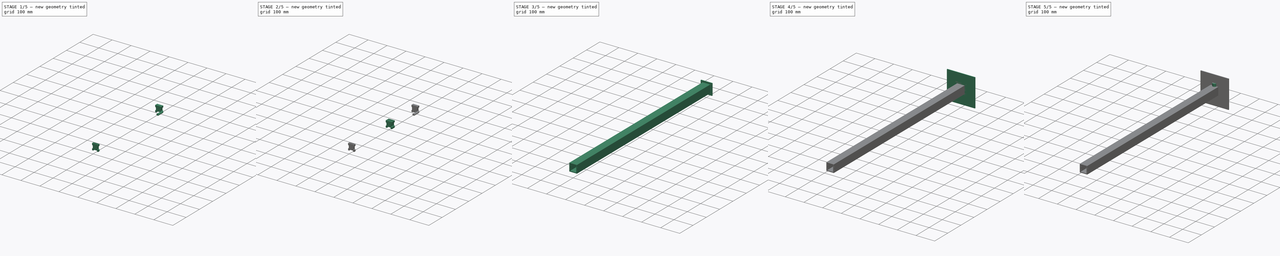
[diagram: build sequence overview — one tinted view per stage of 5, left to right]
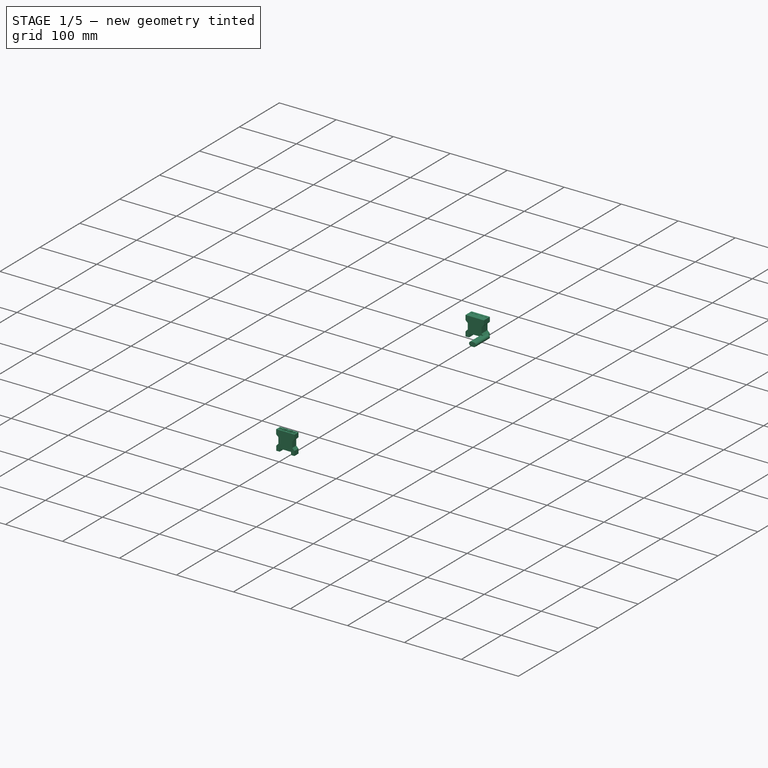
[diagram: stage 1 of 5 — iso view after this stage's code; geometry added in this stage tinted green]
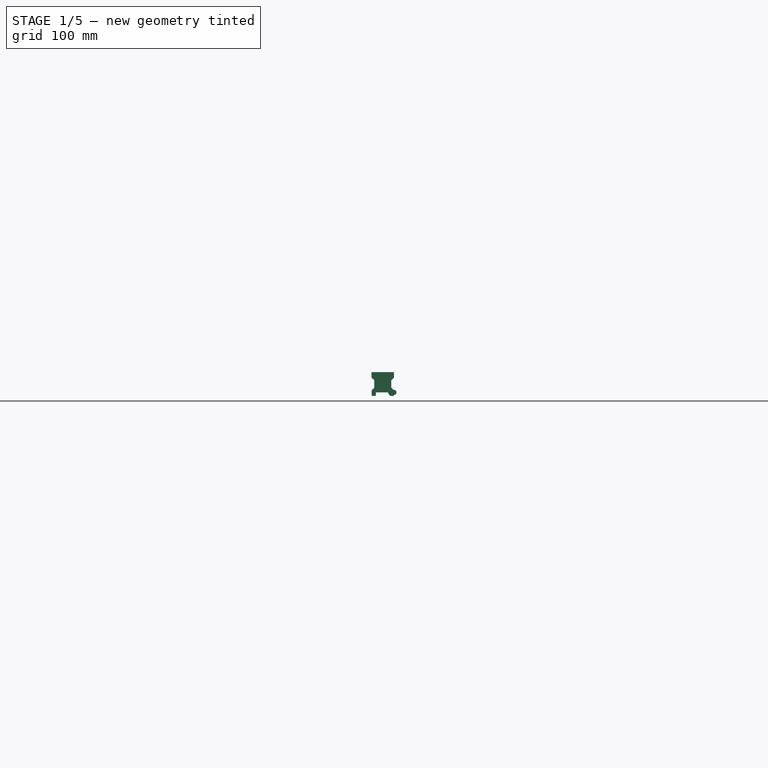
[diagram: stage 1 of 5 — front view after this stage's code; geometry added in this stage tinted green]
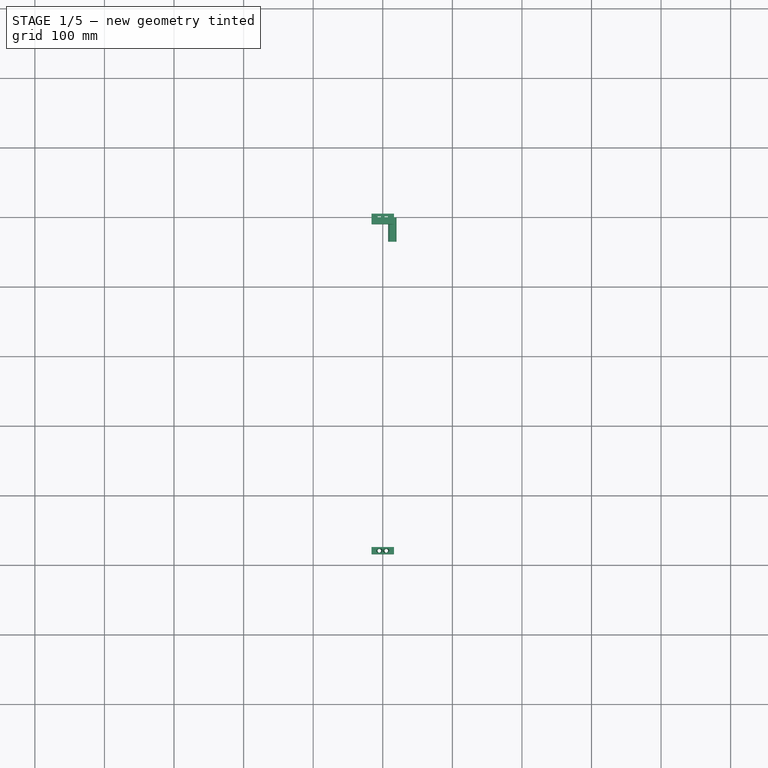
[diagram: stage 1 of 5 — top view after this stage's code; geometry added in this stage tinted green]
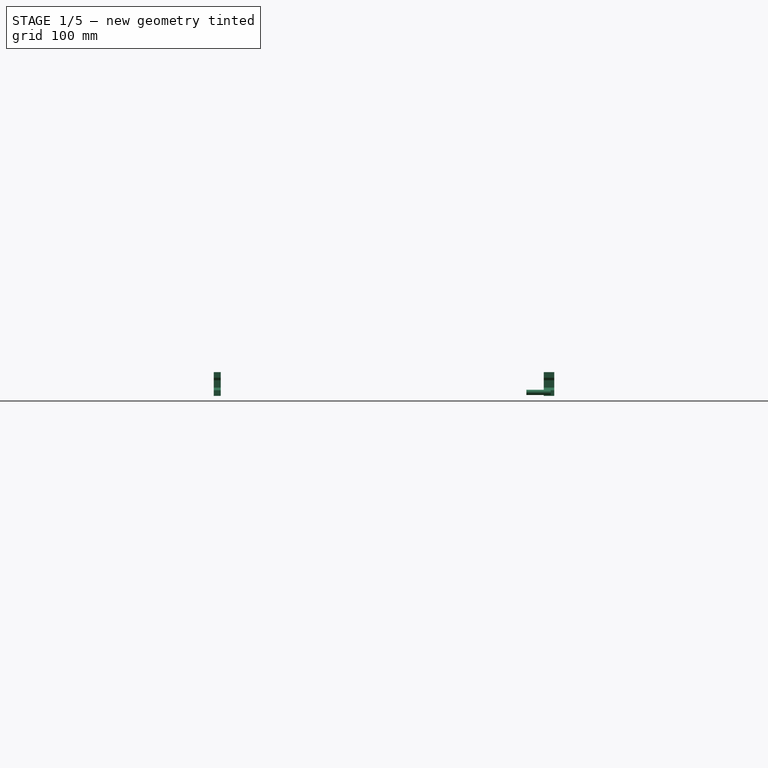
[diagram: stage 1 of 5 — right view after this stage's code; geometry added in this stage tinted green]
FCSTD DOCUMENT  (FreeCAD 1.0R39109 (Git))
Label: Alu-Pole
License: All rights reserved
LicenseURL: http://en.wikipedia.org/wiki/All_rights_reserved
objects: Sketcher::SketchObject×76, Part::Feature×75, App::Part×75, PartDesign::Pocket×34, PartDesign::Pad×31, PartDesign::Body×26, Part::Loft×5, Part::Mirroring×5, Part::MultiFuse×5, Part::Cut×5, Part::Part2DObjectPython×3, Part::FeaturePython×2, PartDesign::Revolution×2, PartDesign::Mirrored×2, PartDesign::FeatureBase×2, App::DocumentObjectGroup×2, PartDesign::Chamfer×2, PartDesign::Draft×1
note: 494 computed .brp shape members not serialized (recipe doc carries the construction recipe); baked Part::Feature solids carry a one-line shape summary decoded from their .brp

FEATURE [PartDesign::Body] Body  label="Aluminium-Profile"
  AllowCompound = false
  Group = -> [Sketch,Pad,Sketch055,Pocket021]
  Origin = -> Origin
  Tip = -> Pocket021
FEATURE [Sketcher::SketchObject] Sketch056
  ArcFitTolerance = 0
  AttachmentSupport = -> [XZ_Plane029]
  FullyConstrained = true
  MakeInternals = false
  MapMode = 5
  Placement = pos=(0,0,0) rot=(1,0,0;1.5708rad)
  sketch-geometry (22):
    g0: LineSegment StartX=-16 StartY=4 StartZ=0 EndX=-9.85 EndY=4 EndZ=0
    g1: LineSegment StartX=9.85 StartY=4 StartZ=0 EndX=16 EndY=4 EndZ=0
    g2: LineSegment StartX=16.15 StartY=38 StartZ=0 EndX=-16.15 EndY=38 EndZ=0
    g3: LineSegment StartX=-9.85 StartY=8.6 StartZ=0 EndX=-9 EndY=8.6 EndZ=0
    g4: LineSegment StartX=-9 StartY=8.6 StartZ=0 EndX=-9 EndY=10.6 EndZ=0
    g5: LineSegment StartX=-9 StartY=10.6 StartZ=0 EndX=9 EndY=10.6 EndZ=0
    g6: LineSegment StartX=9 StartY=10.6 StartZ=0 EndX=9 EndY=8.6 EndZ=0
    g7: LineSegment StartX=9 StartY=8.6 StartZ=0 EndX=9.85 EndY=8.6 EndZ=0
    g8: LineSegment StartX=-16 StartY=4 StartZ=0 EndX=-16 EndY=12 EndZ=0
    g9: LineSegment StartX=-16 StartY=12 StartZ=0 EndX=-12.15 EndY=15.85 EndZ=0
    g10: LineSegment StartX=-12.15 StartY=15.85 StartZ=0 EndX=-12.15 EndY=26.3061 EndZ=0
    g11: LineSegment StartX=-12.15 StartY=26.3061 StartZ=0 EndX=-16.15 EndY=30 EndZ=0
    g12: LineSegment StartX=-16.15 StartY=30 StartZ=0 EndX=-16.15 EndY=38 EndZ=0
    g13: LineSegment StartX=16.15 StartY=38 StartZ=0 EndX=16.15 EndY=30 EndZ=0
    g14: LineSegment StartX=16.15 StartY=30 StartZ=0 EndX=12.15 EndY=26.3061 EndZ=0
    g15: LineSegment StartX=12.15 StartY=26.3061 StartZ=0 EndX=12.15 EndY=15.85 EndZ=0
    g16: LineSegment StartX=12.15 StartY=15.85 StartZ=0 EndX=16 EndY=12 EndZ=0
    g17: LineSegment StartX=16 StartY=12 StartZ=0 EndX=16 EndY=4 EndZ=0
    g18: LineSegment StartX=9.85 StartY=8.6 StartZ=0 EndX=9.85 EndY=7 EndZ=0
    g19: LineSegment StartX=9.85 StartY=7 StartZ=0 EndX=9.85 EndY=4 EndZ=0
    g20: LineSegment StartX=-9.85 StartY=8.6 StartZ=0 EndX=-9.85 EndY=7 EndZ=0
    g21: LineSegment StartX=-9.85 StartY=7 StartZ=0 EndX=-9.85 EndY=4 EndZ=0
  constraints (60):
    c: Horizontal(g0)
    c: Horizontal(g1)
    c: Symmetric(g3,g7,g-2)
    c: Symmetric(g2,g2,g-2)
    c: DistanceX(g2,g2) = 32.3
    c: DistanceY(g0,g2) = 34
    c: DistanceY(g0) = 4
    c: DistanceX(g3,g7) = 19.7
    c: Horizontal(g3)
    c: Coincident(g3,g4)
    c: Vertical(g4)
    c: Coincident(g4,g5)
    c: Coincident(g5,g6)
    c: Vertical(g6)
    c: Coincident(g6,g7)
    c: Horizontal(g7)
    c: Symmetric(g4,g5,g-2)
    c: DistanceX(g5,g5) = 18
    c: DistanceY(g1,g7) = 4.6
    c: DistanceY(g4,g4) = 2
    c: Coincident(g0,g8)
    c: Vertical(g8)
    c: Coincident(g8,g9)
    c: Coincident(g9,g10)
    c: Vertical(g10)
    c: Coincident(g10,g11)
    c: Coincident(g11,g12)
    c: Coincident(g12,g2)
    c: Vertical(g12)
    c: Coincident(g2,g13)
    c: Vertical(g13)
    c: Coincident(g13,g14)
    c: Coincident(g14,g15)
    c: Vertical(g15)
    c: Coincident(g15,g16)
    c: Coincident(g16,g17)
    c: Coincident(g17,g1)
    c: Vertical(g17)
    c: Symmetric(g14,g10,g-2)
    c: Equal(g10,g15)
    c: DistanceX(g11,g11) = 4
    c: DistanceY(g8,g8) = 8
    c: DistanceY(g12,g12) = 8
    c: Angle(g8,g9) = 2.35619
    c: Symmetric(g16,g8,g-2)
    c: Equal(g11,g14)
    c: Equal(g14,g16)
    c: DistanceX(g0,g1) = 32
    c: Coincident(g18,g7)
    c: Vertical(g18)
    c: Coincident(g19,g18)
    c: Coincident(g1,g19)
    c: DistanceY(g18,g18) = 1.6
    c: Coincident(g20,g3)
    c: Vertical(g20)
    c: Coincident(g21,g20)
    c: Coincident(g0,g21)
    c: Symmetric(g0,g1,g-2)
    c: Equal(g20,g18)
    c: Vertical(g19)
FEATURE [PartDesign::Pad] Pad029
  Direction = (0,-1,2e-16)
  Length = 10
  Length2 = 10
  Placement = pos=(0,0,0) rot=(1,0,0;1.5708rad)
  Profile = -> Sketch056
  ReferenceAxis = -> Sketch056 [N_Axis]
  Suppressed = false
  Type = 0
FEATURE [Sketcher::SketchObject] Sketch057
  ArcFitTolerance = 0
  AttachmentSupport = -> [Pad029]
  FullyConstrained = true
  MakeInternals = false
  MapMode = 5
  Placement = pos=(0,2.4e-15,10.6) rot=(1,0,0;3.14159rad)
  sketch-geometry (3):
    g0: Circle CenterX=-5 CenterY=5 CenterZ=0 NormalX=0 NormalY=0 NormalZ=1 AngleXU=0 Radius=2.6
    g1: Circle CenterX=5 CenterY=5 CenterZ=0 NormalX=0 NormalY=0 NormalZ=1 AngleXU=0 Radius=2.6
    g2: LineSegment [constr] StartX=-5 StartY=5 StartZ=0 EndX=5 EndY=5 EndZ=0
  constraints (7):
    c: Coincident(g2,g0)
    c: Coincident(g2,g1)
    c: Equal(g0,g1)
    c: Radius(g0) = 2.6
    c: Symmetric(g0,g1,g-2)
    c: DistanceY(g0) = 5
    c: DistanceX(g2,g2) = 10
FEATURE [PartDesign::Pocket] Pocket022
  BaseFeature = -> Pad029
  Direction = (0,0,1)
  Length = 18
  Length2 = 5
  Placement = pos=(0,0,0) rot=(1,0,0;1.5708rad)
  Profile = -> Sketch057
  ReferenceAxis = -> Sketch057 [N_Axis]
  Suppressed = false
  Type = 0
FEATURE [Sketcher::SketchObject] Sketch058
  ArcFitTolerance = 0
  AttachmentSupport = -> [Pocket022]
  ExternalGeometry = -> [Pocket022]
  FullyConstrained = true
  MakeInternals = false
  MapMode = 5
  Placement = pos=(0,2.4e-15,10.6) rot=(1,0,0;3.14159rad)
  sketch-geometry (2):
    g0: Circle CenterX=-5 CenterY=5 CenterZ=0 NormalX=0 NormalY=0 NormalZ=1 AngleXU=0 Radius=3
    g1: Circle CenterX=5 CenterY=5 CenterZ=0 NormalX=0 NormalY=0 NormalZ=1 AngleXU=0 Radius=3
  constraints (4):
    c: Radius(g0) = 3
    c: Equal(g1,g0)
    c: Coincident(g1,g-4)
    c: Coincident(g0,g-3)
FEATURE [PartDesign::Pocket] Pocket023
  BaseFeature = -> Pocket022
  Direction = (0,0,1)
  Length = 10
  Length2 = 5
  Placement = pos=(0,0,0) rot=(1,0,0;1.5708rad)
  Profile = -> Sketch058
  ReferenceAxis = -> Sketch058 [N_Axis]
  Suppressed = false
  Type = 0
FEATURE [Sketcher::SketchObject] Sketch059
  ArcFitTolerance = 0
  AttachmentOffset = pos=(0,0,38) rot=(0,0,1;0rad)
  FullyConstrained = true
  MakeInternals = false
  MapMode = 5
  Placement = pos=(0,0,38) rot=(0,0,1;0rad)
  sketch-geometry (4):
    g0: ArcOfCircle CenterX=-7 CenterY=8.39e-14 CenterZ=0 NormalX=0 NormalY=0 NormalZ=1 AngleXU=0 Radius=1 StartAngle=1.5708 EndAngle=4.71239
    g1: ArcOfCircle CenterX=-3 CenterY=0 CenterZ=0 NormalX=0 NormalY=0 NormalZ=1 AngleXU=0 Radius=1 StartAngle=4.71239 EndAngle=7.85398
    g2: LineSegment StartX=-7 StartY=-1 StartZ=0 EndX=-3 EndY=-1 EndZ=0
    g3: LineSegment StartX=-3 StartY=1 StartZ=0 EndX=-7 EndY=1 EndZ=0
  constraints (10):
    c: Tangent(g0,g2) = -1.5708
    c: Tangent(g2,g1) = -1.5708
    c: Tangent(g1,g3) = -1.5708
    c: Tangent(g3,g0) = -1.5708
    c: Equal(g0,g1)
    c: Horizontal(g3)
    c: DistanceX(g3,g3) = 4
    c: Radius(g1) = 1
    c: DistanceX(g1) = -3
    c: PointOnObject(g1,g-1)
FEATURE [Sketcher::SketchObject] Sketch060
  ArcFitTolerance = 0
  AttachmentOffset = pos=(0,0,28) rot=(0,0,1;0rad)
  FullyConstrained = true
  MakeInternals = false
  MapMode = 5
  Placement = pos=(0,0,28) rot=(0,0,1;0rad)
  sketch-geometry (1):
    g0: Circle CenterX=-5 CenterY=0 CenterZ=0 NormalX=0 NormalY=0 NormalZ=1 AngleXU=0 Radius=2.7
  constraints (3):
    c: PointOnObject(g0,g-1)
    c: DistanceX(g0) = -5
    c: Radius(g0) = 2.7
FEATURE [Part::Loft] Loft002
  Closed = false
  MaxDegree = 5
  Ruled = false
  Sections = -> [Sketch060,Sketch059]
  Solid = true
FEATURE [Part::Mirroring] Part__Mirroring002  label="Loft001 (Mirror #2)001"
  Base = (0,0,0)
  Normal = (1,0,0)
  Source = -> Loft002
FEATURE [Part::MultiFuse] Fusion002
  Shapes = -> [Loft002,Part__Mirroring002]
FEATURE [Sketcher::SketchObject] Sketch061
  ArcFitTolerance = 0
  AttachmentSupport = -> [Pocket023]
  FullyConstrained = true
  MakeInternals = false
  MapMode = 5
  Placement = pos=(0,8.4e-15,38) rot=(0,0,1;3.14159rad)
  sketch-geometry (3):
    g0: Circle CenterX=-12 CenterY=5 CenterZ=0 NormalX=0 NormalY=0 NormalZ=1 AngleXU=0 Radius=2
    g1: Circle CenterX=12 CenterY=5 CenterZ=0 NormalX=0 NormalY=0 NormalZ=1 AngleXU=0 Radius=2
    g2: LineSegment [constr] StartX=-12 StartY=5 StartZ=0 EndX=12 EndY=5 EndZ=0
  constraints (7):
    c: Coincident(g2,g0)
    c: Coincident(g2,g1)
    c: Symmetric(g0,g1,g-2)
    c: DistanceX(g2,g2) = 24
    c: Equal(g0,g1)
    c: Radius(g1) = 2
    c: DistanceY(g0) = 5
FEATURE [PartDesign::Pocket] Pocket024
  BaseFeature = -> Pocket023
  Direction = (0,0,-1)
  Length = 8
  Length2 = 5
  Placement = pos=(0,0,0) rot=(1,0,0;1.5708rad)
  Profile = -> Sketch061
  ReferenceAxis = -> Sketch061 [N_Axis]
  Suppressed = false
  Type = 0
FEATURE [PartDesign::Body] Body023
  AllowCompound = false
  Group = -> [Sketch056,Pad029,Sketch057,Pocket022,Sketch058,Pocket023,Sketch061,Pocket024]
  Origin = -> Origin029
  Placement = pos=(0,5,0) rot=(0,0,1;0rad)
  Tip = -> Pocket024
FEATURE [Part::Cut] Cut001  label="Sensor-holder-sun"
  Base = -> Body023
  Placement = pos=(0,-208.33,0) rot=(0,0,1;0rad)
  Tool = -> Fusion002
FEATURE [Sketcher::SketchObject] Sketch068
  ArcFitTolerance = 0
  AttachmentSupport = -> [XZ_Plane031]
  FullyConstrained = true
  MakeInternals = false
  MapMode = 5
  Placement = pos=(0,0,0) rot=(1,0,0;1.5708rad)
  sketch-geometry (22):
    g0: LineSegment StartX=-16 StartY=4 StartZ=0 EndX=-9.85 EndY=4 EndZ=0
    g1: LineSegment StartX=9.85 StartY=4 StartZ=0 EndX=16 EndY=4 EndZ=0
    g2: LineSegment StartX=16.15 StartY=38 StartZ=0 EndX=-16.15 EndY=38 EndZ=0
    g3: LineSegment StartX=-9.85 StartY=8.6 StartZ=0 EndX=-9 EndY=8.6 EndZ=0
    g4: LineSegment StartX=-9 StartY=8.6 StartZ=0 EndX=-9 EndY=10.6 EndZ=0
    g5: LineSegment StartX=-9 StartY=10.6 StartZ=0 EndX=9 EndY=10.6 EndZ=0
    g6: LineSegment StartX=9 StartY=10.6 StartZ=0 EndX=9 EndY=8.6 EndZ=0
    g7: LineSegment StartX=9 StartY=8.6 StartZ=0 EndX=9.85 EndY=8.6 EndZ=0
    g8: LineSegment StartX=-16 StartY=4 StartZ=0 EndX=-16 EndY=12 EndZ=0
    g9: LineSegment StartX=-16 StartY=12 StartZ=0 EndX=-12.15 EndY=15.85 EndZ=0
    g10: LineSegment StartX=-12.15 StartY=15.85 StartZ=0 EndX=-12.15 EndY=26.3061 EndZ=0
    g11: LineSegment StartX=-12.15 StartY=26.3061 StartZ=0 EndX=-16.15 EndY=30 EndZ=0
    g12: LineSegment StartX=-16.15 StartY=30 StartZ=0 EndX=-16.15 EndY=38 EndZ=0
    g13: LineSegment StartX=16.15 StartY=38 StartZ=0 EndX=16.15 EndY=30 EndZ=0
    g14: LineSegment StartX=16.15 StartY=30 StartZ=0 EndX=12.15 EndY=26.3061 EndZ=0
    g15: LineSegment StartX=12.15 StartY=26.3061 StartZ=0 EndX=12.15 EndY=15.85 EndZ=0
    g16: LineSegment StartX=12.15 StartY=15.85 StartZ=0 EndX=16 EndY=12 EndZ=0
    g17: LineSegment StartX=16 StartY=12 StartZ=0 EndX=16 EndY=4 EndZ=0
    g18: LineSegment StartX=9.85 StartY=8.6 StartZ=0 EndX=9.85 EndY=7 EndZ=0
    g19: LineSegment StartX=9.85 StartY=7 StartZ=0 EndX=9.85 EndY=4 EndZ=0
    g20: LineSegment StartX=-9.85 StartY=8.6 StartZ=0 EndX=-9.85 EndY=7 EndZ=0
    g21: LineSegment StartX=-9.85 StartY=7 StartZ=0 EndX=-9.85 EndY=4 EndZ=0
  constraints (60):
    c: Horizontal(g0)
    c: Horizontal(g1)
    c: Symmetric(g3,g7,g-2)
    c: Symmetric(g2,g2,g-2)
    c: DistanceX(g2,g2) = 32.3
    c: DistanceY(g0,g2) = 34
    c: DistanceY(g0) = 4
    c: DistanceX(g3,g7) = 19.7
    c: Horizontal(g3)
    c: Coincident(g3,g4)
    c: Vertical(g4)
    c: Coincident(g4,g5)
    c: Coincident(g5,g6)
    c: Vertical(g6)
    c: Coincident(g6,g7)
    c: Horizontal(g7)
    c: Symmetric(g4,g5,g-2)
    c: DistanceX(g5,g5) = 18
    c: DistanceY(g1,g7) = 4.6
    c: DistanceY(g4,g4) = 2
    c: Coincident(g0,g8)
    c: Vertical(g8)
    c: Coincident(g8,g9)
    c: Coincident(g9,g10)
    c: Vertical(g10)
    c: Coincident(g10,g11)
    c: Coincident(g11,g12)
    c: Coincident(g12,g2)
    c: Vertical(g12)
    c: Coincident(g2,g13)
    c: Vertical(g13)
    c: Coincident(g13,g14)
    c: Coincident(g14,g15)
    c: Vertical(g15)
    c: Coincident(g15,g16)
    c: Coincident(g16,g17)
    c: Coincident(g17,g1)
    c: Vertical(g17)
    c: Symmetric(g14,g10,g-2)
    c: Equal(g10,g15)
    c: DistanceX(g11,g11) = 4
    c: DistanceY(g8,g8) = 8
    c: DistanceY(g12,g12) = 8
    c: Angle(g8,g9) = 2.35619
    c: Symmetric(g16,g8,g-2)
    c: Equal(g11,g14)
    c: Equal(g14,g16)
    c: DistanceX(g0,g1) = 32
    c: Coincident(g18,g7)
    c: Vertical(g18)
    c: Coincident(g19,g18)
    c: Coincident(g1,g19)
    c: DistanceY(g18,g18) = 1.6
    c: Coincident(g20,g3)
    c: Vertical(g20)
    c: Coincident(g21,g20)
    c: Coincident(g0,g21)
    c: Symmetric(g0,g1,g-2)
    c: Equal(g20,g18)
    c: Vertical(g19)
FEATURE [PartDesign::Pad] Pad031
  Direction = (0,-1,2e-16)
  Length = 10
  Length2 = 10
  Placement = pos=(0,0,0) rot=(1,0,0;1.5708rad)
  Profile = -> Sketch068
  ReferenceAxis = -> Sketch068 [N_Axis]
  Suppressed = false
  Type = 0
FEATURE [Part::Feature] Part__Feature036  label="R_0402_1005Metric016"
  shape: bbox 1 x 0.5 x 0.35 mm, 26 faces (baked)
FEATURE [App::Part] R_0402_1005Metric008  label="R_0402_1005Metric017"
  Group = -> [Part__Feature036]
  Origin = -> Origin062
  Placement = pos=(-18.125,-1.325,1.65) rot=(0,0,-1;1.5708rad)
FEATURE [Part::Feature] Part__Feature037  label="C_0402_1005Metric010"
  shape: bbox 1 x 0.5 x 0.5 mm, 28 faces (baked)
FEATURE [App::Part] C_0402_1005Metric005  label="C_0402_1005Metric011"
  Group = -> [Part__Feature037]
  Origin = -> Origin063
  Placement = pos=(-24.48,0,1.65) rot=(0,0,1;3.14159rad)
FEATURE [Part::Feature] Part__Feature038  label="LED_D5.0mm"
  shape: bbox 5.4 x 5.8 x 14.1 mm, 16 faces (baked)
FEATURE [App::Part] LED_D5_0mm  label="LED_D5.0mm001"
  Group = -> [Part__Feature038]
  Origin = -> Origin064
  Placement = pos=(-31.465,3.725,1.65) rot=(0,0,1;1.5708rad)
FEATURE [Part::Feature] Part__Feature039  label="C_0402_1005Metric012"
  shape: bbox 1 x 0.5 x 0.5 mm, 28 faces (baked)
FEATURE [App::Part] C_0402_1005Metric006  label="C_0402_1005Metric013"
  Group = -> [Part__Feature039]
  Origin = -> Origin065
  Placement = pos=(4.925,2.475,1.65) rot=(0,0,-1;1.5708rad)
FEATURE [Part::Feature] Part__Feature040  label="R_0402_1005Metric018"
  shape: bbox 1 x 0.5 x 0.35 mm, 26 faces (baked)
FEATURE [App::Part] R_0402_1005Metric009  label="R_0402_1005Metric019"
  Group = -> [Part__Feature040]
  Origin = -> Origin066
  Placement = pos=(-17.165,-6.395,1.65) rot=(0,0,1;1.5708rad)
FEATURE [Part::Feature] Part__Feature041  label="R_0402_1005Metric020"
  shape: bbox 1 x 0.5 x 0.35 mm, 26 faces (baked)
FEATURE [App::Part] R_0402_1005Metric010  label="R_0402_1005Metric021"
  Group = -> [Part__Feature041]
  Origin = -> Origin067
  Placement = pos=(-24.5,-2.9,1.65) rot=(0,0,1;0rad)
FEATURE [Part::Feature] Part__Feature042  label="SOIC_14_39x87mm_P127mm"
  shape: bbox 6 x 8.7 x 1.75 mm, 246 faces (baked)
FEATURE [App::Part] SOIC_14_3_9x8_7mm_P1_27mm002  label="SOIC-14_3.9x8.7mm_P1.27mm002"
  Group = -> [Part__Feature042]
  Origin = -> Origin068
  Placement = pos=(-13.375,0,1.65) rot=(0,0,1;0rad)
FEATURE [Part::Feature] Part__Feature043  label="SOT-23-3"
  shape: bbox 2.5 x 3 x 1.2 mm, 69 faces (baked)
FEATURE [App::Part] SOT_23_3  label="SOT-23-007"
  Group = -> [Part__Feature043]
  Origin = -> Origin069
  Placement = pos=(2.265,2.005,1.65) rot=(0,0,1;0rad)
FEATURE [Part::Feature] Part__Feature044  label="SOT_23"
  shape: bbox 2.5 x 3 x 1.2 mm, 76 faces (baked)
FEATURE [App::Part] SOT_23  label="SOT-23"
  Group = -> [Part__Feature044]
  Origin = -> Origin070
  Placement = pos=(-20.81,-6.57,1.65) rot=(0,0,1;0rad)
FEATURE [Part::Feature] Part__Feature045  label="R_0402_1005Metric022"
  shape: bbox 1 x 0.5 x 0.35 mm, 26 faces (baked)
FEATURE [App::Part] R_0402_1005Metric011  label="R_0402_1005Metric023"
  Group = -> [Part__Feature045]
  Origin = -> Origin071
  Placement = pos=(-18.055,3.125,1.65) rot=(0,0,1;1.5708rad)
FEATURE [Part::Feature] Part__Feature046  label="R_0402_1005Metric024"
  shape: bbox 1 x 0.5 x 0.35 mm, 26 faces (baked)
FEATURE [App::Part] R_0402_1005Metric012  label="R_0402_1005Metric025"
  Group = -> [Part__Feature046]
  Origin = -> Origin072
  Placement = pos=(-4.63,3.705,1.65) rot=(0,0,1;3.14159rad)
FEATURE [Part::Feature] Part__Feature047  label="C_0402_1005Metric014"
  shape: bbox 1 x 0.5 x 0.5 mm, 28 faces (baked)
FEATURE [App::Part] C_0402_1005Metric007  label="C_0402_1005Metric015"
  Group = -> [Part__Feature047]
  Origin = -> Origin073
  Placement = pos=(-0.815,-0.785,1.65) rot=(0,0,1;0rad)
FEATURE [Part::Feature] Part__Feature048  label="R_0402_1005Metric026"
  shape: bbox 1 x 0.5 x 0.35 mm, 26 faces (baked)
FEATURE [App::Part] R_0402_1005Metric013  label="R_0402_1005Metric027"
  Group = -> [Part__Feature048]
  Origin = -> Origin074
  Placement = pos=(-4.86,1.54,1.65) rot=(0,0,1;3.14159rad)
FEATURE [Part::Feature] Part__Feature049  label="R_0402_1005Metric028"
  shape: bbox 1 x 0.5 x 0.35 mm, 26 faces (baked)
FEATURE [App::Part] R_0402_1005Metric014  label="R_0402_1005Metric029"
  Group = -> [Part__Feature049]
  Origin = -> Origin075
  Placement = pos=(-24.5,-1.9,1.65) rot=(0,0,1;0rad)
FEATURE [Part::Feature] Part__Feature050  label="SOT_024"
  shape: bbox 2.5 x 3 x 1.2 mm, 76 faces (baked)
FEATURE [App::Part] SOT_23001  label="SOT-024"
  Group = -> [Part__Feature050]
  Origin = -> Origin076
  Placement = pos=(-4.605,-0.875,1.65) rot=(0,0,1;0rad)
FEATURE [Part::Feature] Part__Feature051  label="C_0402_1005Metric016"
  shape: bbox 1 x 0.5 x 0.5 mm, 28 faces (baked)
FEATURE [App::Part] C_0402_1005Metric008  label="C_0402_1005Metric017"
  Group = -> [Part__Feature051]
  Origin = -> Origin077
  Placement = pos=(-6.895,2.615,1.65) rot=(0,0,1;3.14159rad)
FEATURE [Part::Feature] Part__Feature052  label="R_0402_1005Metric030"
  shape: bbox 1 x 0.5 x 0.35 mm, 26 faces (baked)
FEATURE [App::Part] R_0402_1005Metric015  label="R_0402_1005Metric031"
  Group = -> [Part__Feature052]
  Origin = -> Origin078
  Placement = pos=(-18.175,-6.405,1.65) rot=(0,0,1;1.5708rad)
FEATURE [Part::Feature] Part__Feature053  label="LED_D5.0mm002"
  shape: bbox 5.4 x 5.8 x 14.1 mm, 16 faces (baked)
FEATURE [App::Part] LED_D5_0mm001  label="LED_D5.0mm003"
  Group = -> [Part__Feature053]
  Origin = -> Origin079
  Placement = pos=(-31.465,-6.275,1.65) rot=(0,0,1;1.5708rad)
FEATURE [Part::Feature] Part__Feature054  label="R_0402_1005Metric032"
  shape: bbox 1 x 0.5 x 0.35 mm, 26 faces (baked)
FEATURE [App::Part] R_0402_1005Metric016  label="R_0402_1005Metric033"
  Group = -> [Part__Feature054]
  Origin = -> Origin080
  Placement = pos=(-8.775,2.555,1.65) rot=(0,0,1;1.5708rad)
FEATURE [Part::Feature] Part__Feature055  label="R_0402_1005Metric034"
  shape: bbox 1 x 0.5 x 0.35 mm, 26 faces (baked)
FEATURE [App::Part] R_0402_1005Metric017  label="R_0402_1005Metric035"
  Group = -> [Part__Feature055]
  Origin = -> Origin081
  Placement = pos=(-20.269,-0.627,1.65) rot=(0,0,1;0rad)
FEATURE [Part::Feature] Part__Feature056  label="R_0402_1005Metric036"
  shape: bbox 1 x 0.5 x 0.35 mm, 26 faces (baked)
FEATURE [App::Part] R_0402_1005Metric018  label="R_0402_1005Metric037"
  Group = -> [Part__Feature056]
  Origin = -> Origin082
  Placement = pos=(-4.54,-4.635,1.65) rot=(0,0,1;3.14159rad)
FEATURE [Part::Feature] Part__Feature057  label="PinSocket_2x10_P127mm_Horizontal001"
  shape: bbox 5.895 x 13.05 x 5.12 mm, 710 faces (baked)
FEATURE [App::Part] PinSocket_2x10_P1_27mm_Horizontal001  label="PinSocket_2x10_P1.27mm_Horizontal001"
  Group = -> [Part__Feature057]
  Origin = -> Origin083
  Placement = pos=(-41.3,5.715,1.65) rot=(0,0,1;0rad)
FEATURE [Part::Feature] Part__Feature058  label="C_0402_1005Metric018"
  shape: bbox 1 x 0.5 x 0.5 mm, 28 faces (baked)
FEATURE [App::Part] C_0402_1005Metric009  label="C_0402_1005Metric019"
  Group = -> [Part__Feature058]
  Origin = -> Origin084
  Placement = pos=(-7.805,-1.105,1.65) rot=(0,0,1;0rad)
FEATURE [Part::Feature] Part__Feature059  label="R_0402_1005Metric038"
  shape: bbox 1 x 0.5 x 0.35 mm, 26 faces (baked)
FEATURE [App::Part] R_0402_1005Metric019  label="R_0402_1005Metric039"
  Group = -> [Part__Feature059]
  Origin = -> Origin085
  Placement = pos=(-7.875,-3.965,1.65) rot=(0,0,1;0rad)
FEATURE [Part::Feature] Part__Feature060  label="PinHeader_2x10_P127mm_Horizontal"
  shape: bbox 6.97 x 12.7 x 5.585 mm, 484 faces (baked)
FEATURE [App::Part] PinHeader_2x10_P1_27mm_Horizontal  label="PinHeader_2x10_P1.27mm_Horizontal"
  Group = -> [Part__Feature060]
  Origin = -> Origin086
  Placement = pos=(41.225,5.715,1.65) rot=(0,0,1;0rad)
FEATURE [Part::Feature] Part__Feature061  label="C_0402_1005Metric020"
  shape: bbox 1 x 0.5 x 0.5 mm, 28 faces (baked)
FEATURE [App::Part] C_0402_1005Metric010  label="C_0402_1005Metric021"
  Group = -> [Part__Feature061]
  Origin = -> Origin087
  Placement = pos=(-13.285,-5.515,1.65) rot=(0,0,1;0rad)
FEATURE [Part::Feature] Part__Feature062  label="C_0402_1005Metric022"
  shape: bbox 1 x 0.5 x 0.5 mm, 28 faces (baked)
FEATURE [App::Part] C_0402_1005Metric011  label="C_0402_1005Metric023"
  Group = -> [Part__Feature062]
  Origin = -> Origin088
  Placement = pos=(-10.415,7.545,1.65) rot=(0,0,-1;1.5708rad)
FEATURE [Part::Feature] Part__Feature063  label="R_0402_1005Metric040"
  shape: bbox 1 x 0.5 x 0.35 mm, 26 faces (baked)
FEATURE [App::Part] R_0402_1005Metric020  label="R_0402_1005Metric041"
  Group = -> [Part__Feature063]
  Origin = -> Origin089
  Placement = pos=(-6.905,1.515,1.65) rot=(0,0,1;3.14159rad)
FEATURE [Part::Feature] Part__Feature064  label="C_0402_1005Metric024"
  shape: bbox 1 x 0.5 x 0.5 mm, 28 faces (baked)
FEATURE [App::Part] C_0402_1005Metric012  label="C_0402_1005Metric025"
  Group = -> [Part__Feature064]
  Origin = -> Origin090
  Placement = pos=(-0.815,-1.725,1.65) rot=(0,0,1;0rad)
FEATURE [Part::Feature] Part__Feature065  label="C_0402_1005Metric026"
  shape: bbox 1 x 0.5 x 0.5 mm, 28 faces (baked)
FEATURE [App::Part] C_0402_1005Metric013  label="C_0402_1005Metric027"
  Group = -> [Part__Feature065]
  Origin = -> Origin091
  Placement = pos=(-21.23,2.6,1.65) rot=(0,0,1;3.14159rad)
FEATURE [Part::Feature] Part__Feature066  label="C_0402_1005Metric028"
  shape: bbox 1 x 0.5 x 0.5 mm, 28 faces (baked)
FEATURE [App::Part] C_0402_1005Metric014  label="C_0402_1005Metric029"
  Group = -> [Part__Feature066]
  Origin = -> Origin092
  Placement = pos=(-19.615,3.135,1.65) rot=(0,0,1;1.5708rad)
FEATURE [Part::Feature] Part__Feature067  label="C_0402_1005Metric030"
  shape: bbox 1 x 0.5 x 0.5 mm, 28 faces (baked)
FEATURE [App::Part] C_0402_1005Metric015  label="C_0402_1005Metric031"
  Group = -> [Part__Feature067]
  Origin = -> Origin093
  Placement = pos=(-18.135,0.655,1.65) rot=(0,0,-1;1.5708rad)
FEATURE [Part::Feature] Part__Feature068  label="R_0402_1005Metric042"
  shape: bbox 1 x 0.5 x 0.35 mm, 26 faces (baked)
FEATURE [App::Part] R_0402_1005Metric021  label="R_0402_1005Metric043"
  Group = -> [Part__Feature068]
  Origin = -> Origin094
  Placement = pos=(-20.325,-1.675,1.65) rot=(0,0,1;0rad)
FEATURE [Part::Feature] Part__Feature069  label="R_0402_1005Metric044"
  shape: bbox 1 x 0.5 x 0.35 mm, 26 faces (baked)
FEATURE [App::Part] R_0402_1005Metric022  label="R_0402_1005Metric045"
  Group = -> [Part__Feature069]
  Origin = -> Origin095
  Placement = pos=(-18.135,-3.225,1.65) rot=(0,0,-1;1.5708rad)
FEATURE [Part::Feature] Part__Feature070  label="C_0402_1005Metric032"
  shape: bbox 1 x 0.5 x 0.5 mm, 28 faces (baked)
FEATURE [App::Part] C_0402_1005Metric016  label="C_0402_1005Metric033"
  Group = -> [Part__Feature070]
  Origin = -> Origin096
  Placement = pos=(-0.835,1.045,1.65) rot=(0,0,1;0rad)
FEATURE [Part::Feature] Part__Feature071  label="C_0402_1005Metric034"
  shape: bbox 1 x 0.5 x 0.5 mm, 28 faces (baked)
FEATURE [App::Part] C_0402_1005Metric017  label="C_0402_1005Metric035"
  Group = -> [Part__Feature071]
  Origin = -> Origin097
  Placement = pos=(-3.145,3.28,1.65) rot=(0,0,-1;1.5708rad)
FEATURE [Part::Feature] Part__Feature072  label="C_0402_1005Metric036"
  shape: bbox 1 x 0.5 x 0.5 mm, 28 faces (baked)
FEATURE [App::Part] C_0402_1005Metric018  label="C_0402_1005Metric037"
  Group = -> [Part__Feature072]
  Origin = -> Origin098
  Placement = pos=(-24.48,-0.95,1.65) rot=(0,0,1;3.14159rad)
FEATURE [Part::Feature] Part__Feature073  label="C_0402_1005Metric038"
  shape: bbox 1 x 0.5 x 0.5 mm, 28 faces (baked)
FEATURE [App::Part] C_0402_1005Metric019  label="C_0402_1005Metric039"
  Group = -> [Part__Feature073]
  Origin = -> Origin099
  Placement = pos=(-20.86,-3.26,1.65) rot=(0,0,-1;1.5708rad)
FEATURE [Part::Feature] Part__Feature074  label="R_0402_1005Metric046"
  shape: bbox 1 x 0.5 x 0.35 mm, 26 faces (baked)
FEATURE [App::Part] R_0402_1005Metric023  label="R_0402_1005Metric047"
  Group = -> [Part__Feature074]
  Origin = -> Origin100
  Placement = pos=(-7.815,-2.795,1.65) rot=(0,0,1;0rad)
FEATURE [Part::Feature] Part__Feature075  label="C_0402_1005Metric040"
  shape: bbox 1 x 0.5 x 0.5 mm, 28 faces (baked)
FEATURE [App::Part] C_0402_1005Metric020  label="C_0402_1005Metric041"
  Group = -> [Part__Feature075]
  Origin = -> Origin101
  Placement = pos=(-24.49,0.96,1.65) rot=(0,0,1;3.14159rad)
FEATURE [Part::Feature] Part__Feature076  label="C_0402_1005Metric042"
  shape: bbox 1 x 0.5 x 0.5 mm, 28 faces (baked)
FEATURE [App::Part] C_0402_1005Metric021  label="C_0402_1005Metric043"
  Group = -> [Part__Feature076]
  Origin = -> Origin102
  Placement = pos=(-9.075,0.555,1.65) rot=(0,0,-1;1.5708rad)
FEATURE [Part::Feature] Part__Feature077  label="SOT_23_5"
  shape: bbox 2.8 x 2.9 x 1.55 mm, 109 faces (baked)
FEATURE [App::Part] SOT_23_5  label="SOT-23-5"
  Group = -> [Part__Feature077]
  Origin = -> Origin103
  Placement = pos=(2.285,-1.765,1.65) rot=(0,0,1;0rad)
FEATURE [Part::Feature] Part__Feature078  label="C_0402_1005Metric044"
  shape: bbox 1 x 0.5 x 0.5 mm, 28 faces (baked)
FEATURE [App::Part] C_0402_1005Metric022  label="C_0402_1005Metric045"
  Group = -> [Part__Feature078]
  Origin = -> Origin104
  Placement = pos=(4.955,-1.605,1.65) rot=(0,0,1;1.5708rad)
FEATURE [Part::Feature] Part__Feature079  label="IR-sensor_PCB"
  shape: bbox 90 x 20 x 1.6 mm, 54 faces (baked)
FEATURE [App::Part] IR_sensor_A2_1  label="IR-sensor-A2 1"
  Group = -> [R_0402_1005Metric008,C_0402_1005Metric005,LED_D5_0mm,C_0402_1005Metric006,R_0402_1005Metric009,R_0402_1005Metric010,SOIC_14_3_9x8_7mm_P1_27mm002,SOT_23_3,SOT_23,R_0402_1005Metric011,R_0402_1005Metric012,C_0402_1005Metric007,R_0402_1005Metric013,R_0402_1005Metric014,SOT_23001,C_0402_1005Metric008,R_0402_1005Metric015,LED_D5_0mm001,R_0402_1005Metric016,R_0402_1005Metric017,R_0402_1005Metric018,+23 more]
  Origin = -> Origin105
  Placement = pos=(0,-800,5) rot=(0,0,1;-1.5708rad)
FEATURE [Sketcher::SketchObject] Sketch074
  ArcFitTolerance = 0
  FullyConstrained = false
  MakeInternals = false
  MapMode = 5
  Placement = pos=(0,0,0) rot=(1,0,0;1.5708rad)
  sketch-geometry (4):
    g0: ArcOfCircle CenterX=11.4464 CenterY=8.94129 CenterZ=0 NormalX=0 NormalY=0 NormalZ=1 AngleXU=0 Radius=3.75 StartAngle=1.5708 EndAngle=4.71239
    g1: ArcOfCircle CenterX=15.9464 CenterY=8.94129 CenterZ=0 NormalX=0 NormalY=0 NormalZ=1 AngleXU=0 Radius=3.75 StartAngle=4.71239 EndAngle=7.85398
    g2: LineSegment StartX=11.4464 StartY=5.19129 StartZ=0 EndX=15.9464 EndY=5.19129 EndZ=0
    g3: LineSegment StartX=15.9464 StartY=12.6913 StartZ=0 EndX=11.4464 EndY=12.6913 EndZ=0
  constraints (8):
    c: Tangent(g0,g2) = -1.5708
    c: Tangent(g2,g1) = -1.5708
    c: Tangent(g1,g3) = -1.5708
    c: Tangent(g3,g0) = -1.5708
    c: Equal(g0,g1)
    c: Horizontal(g2)
    c: Diameter(g1) = 7.5
    c: DistanceX(g3,g3) = 4.5
FEATURE [PartDesign::Pad] Pad032
  Direction = (0,-1,-2e-16)
  Length = 35
  Length2 = 10
  Placement = pos=(0,0,0) rot=(1,0,0;1.5708rad)
  Profile = -> Sketch074
  ReferenceAxis = -> Sketch074 [N_Axis]
  Suppressed = false
  Type = 0
FEATURE [PartDesign::Body] Body026  label="USB-plug"
  AllowCompound = false
  Group = -> [Sketch074,Pad032]
  Origin = -> Origin106
  Placement = pos=(-5,-868,0) rot=(0,0,1;0rad)
  Tip = -> Pad032
FEATURE [Part::Feature] Part__Feature080  label="C_0402_1005Metric046"
  shape: bbox 1 x 0.5 x 0.5 mm, 28 faces (baked)
FEATURE [App::Part] C_0402_1005Metric023  label="C_0402_1005Metric047"
  Group = -> [Part__Feature080]
  Origin = -> Origin107
  Placement = pos=(-19.045,-2.065,1.65) rot=(0,0,-1;1.5708rad)
FEATURE [Part::Feature] Part__Feature081  label="C_0805_2012Metric008"
  shape: bbox 2 x 1.25 x 1.25 mm, 28 faces (baked)
FEATURE [App::Part] C_0805_2012Metric004  label="C_0805_2012Metric009"
  Group = -> [Part__Feature081]
  Origin = -> Origin108
  Placement = pos=(8.035,-1.395,1.65) rot=(0,0,1;1.5708rad)
FEATURE [Part::Feature] Part__Feature082  label="C_0402_1005Metric048"
  shape: bbox 1 x 0.5 x 0.5 mm, 28 faces (baked)
FEATURE [App::Part] C_0402_1005Metric024  label="C_0402_1005Metric049"
  Group = -> [Part__Feature082]
  Origin = -> Origin109
  Placement = pos=(24.065,5.375,1.65) rot=(0,0,1;0rad)
FEATURE [Part::Feature] Part__Feature083  label="C_0805_2012Metric010"
  shape: bbox 2 x 1.25 x 1.25 mm, 28 faces (baked)
FEATURE [App::Part] C_0805_2012Metric005  label="C_0805_2012Metric011"
  Group = -> [Part__Feature083]
  Origin = -> Origin110
  Placement = pos=(14.025,-4.165,1.65) rot=(0,0,1;3.14159rad)
FEATURE [Part::Feature] Part__Feature084  label="L_1008_2520Metric002"
  shape: bbox 2.5 x 2 x 1.2 mm, 28 faces (baked)
FEATURE [App::Part] L_1008_2520Metric001  label="L_1008_2520Metric003"
  Group = -> [Part__Feature084]
  Origin = -> Origin111
  Placement = pos=(10.515,-1.505,1.65) rot=(0,0,1;1.5708rad)
FEATURE [Part::Feature] Part__Feature085  label="R_0402_1005Metric048"
  shape: bbox 1 x 0.5 x 0.35 mm, 26 faces (baked)
FEATURE [App::Part] R_0402_1005Metric024  label="R_0402_1005Metric049"
  Group = -> [Part__Feature085]
  Origin = -> Origin112
  Placement = pos=(24.025,-8.445,1.65) rot=(0,0,1;3.14159rad)
FEATURE [Part::Feature] Part__Feature086  label="R_0402_1005Metric050"
  shape: bbox 1 x 0.5 x 0.35 mm, 26 faces (baked)
FEATURE [App::Part] R_0402_1005Metric025  label="R_0402_1005Metric051"
  Group = -> [Part__Feature086]
  Origin = -> Origin113
  Placement = pos=(-17.835,-2.045,1.65) rot=(0,0,-1;1.5708rad)
FEATURE [Part::Feature] Part__Feature087  label="SOT_23_007"
  shape: bbox 2.8 x 2.9 x 1.55 mm, 124 faces (baked)
FEATURE [App::Part] SOT_23_6001  label="SOT-23-008"
  Group = -> [Part__Feature087]
  Origin = -> Origin114
  Placement = pos=(14.235,-1.385,1.65) rot=(0,0,1;0rad)
FEATURE [Part::Feature] Part__Feature088  label="R_0402_1005Metric052"
  shape: bbox 1 x 0.5 x 0.35 mm, 26 faces (baked)
FEATURE [App::Part] R_0402_1005Metric026  label="R_0402_1005Metric053"
  Group = -> [Part__Feature088]
  Origin = -> Origin115
  Placement = pos=(24.095,4.325,1.65) rot=(0,0,1;3.14159rad)
FEATURE [Part::Feature] Part__Feature089  label="1054500101003"
  shape: bbox 9.74 x 8.36 x 3.96 mm, 397 faces (baked)
FEATURE [App::Part] _054500101001  label="1054500101004"
  Group = -> [Part__Feature089]
  Origin = -> Origin116
  Placement = pos=(11.45,6.87,3.25) rot=(0,0,1;1.5708rad)
FEATURE [Part::Feature] Part__Feature090  label="C_0402_1005Metric050"
  shape: bbox 1 x 0.5 x 0.5 mm, 28 faces (baked)
FEATURE [App::Part] C_0402_1005Metric025  label="C_0402_1005Metric051"
  Group = -> [Part__Feature090]
  Origin = -> Origin117
  Placement = pos=(24.035,2.735,1.65) rot=(0,0,1;3.14159rad)
FEATURE [Part::Feature] Part__Feature091  label="1054500101005"
  shape: bbox 4.6 x 1.94 x 2.8 mm, 375 faces (baked)
FEATURE [App::Part] KMR221GULCLFS002
  Group = -> [Part__Feature091]
  Origin = -> Origin118
  Placement = pos=(-22.285,-1.75,1.65) rot=(0.57735,0.57735,0.57735;2.0944rad)
FEATURE [Part::Feature] Part__Feature092  label="C_0805_2012Metric012"
  shape: bbox 2 x 1.25 x 1.25 mm, 28 faces (baked)
FEATURE [App::Part] C_0805_2012Metric006  label="C_0805_2012Metric013"
  Group = -> [Part__Feature092]
  Origin = -> Origin119
  Placement = pos=(39.35,10.05,1.65) rot=(0,0,1;0rad)
FEATURE [Part::Feature] Part__Feature093  label="C_0805_2012Metric014"
  shape: bbox 2 x 1.25 x 1.25 mm, 28 faces (baked)
FEATURE [App::Part] C_0805_2012Metric007  label="C_0805_2012Metric015"
  Group = -> [Part__Feature093]
  Origin = -> Origin120
  Placement = pos=(42.9,10.05,1.65) rot=(0,0,1;0rad)
FEATURE [Part::Feature] Part__Feature094  label="R_0402_1005Metric054"
  shape: bbox 1 x 0.5 x 0.35 mm, 26 faces (baked)
FEATURE [App::Part] R_0402_1005Metric027  label="R_0402_1005Metric055"
  Group = -> [Part__Feature094]
  Origin = -> Origin121
  Placement = pos=(17.51,-3.39,1.65) rot=(0,0,1;0rad)
FEATURE [Part::Feature] Part__Feature095  label="R_0402_1005Metric056"
  shape: bbox 1 x 0.5 x 0.35 mm, 26 faces (baked)
FEATURE [App::Part] R_0402_1005Metric028  label="R_0402_1005Metric057"
  Group = -> [Part__Feature095]
  Origin = -> Origin122
  Placement = pos=(-43.245,0.285,1.65) rot=(0,0,-1;1.5708rad)
FEATURE [Part::Feature] Part__Feature096  label="1054500101006"
  shape: bbox 4.6 x 1.94 x 2.8 mm, 375 faces (baked)
FEATURE [App::Part] KMR221GULCLFS003
  Group = -> [Part__Feature096]
  Origin = -> Origin123
  Placement = pos=(-13.595,-1.75,1.65) rot=(0.57735,0.57735,0.57735;2.0944rad)
FEATURE [Part::Feature] Part__Feature097  label="PinSocket_2x10_P127mm_Horizontal002"
  shape: bbox 5.895 x 13.05 x 5.12 mm, 710 faces (baked)
FEATURE [App::Part] PinSocket_2x10_P1_27mm_Horizontal002  label="PinSocket_2x10_P1.27mm_Horizontal002"
  Group = -> [Part__Feature097]
  Origin = -> Origin124
  Placement = pos=(-50.06,3.79,1.65) rot=(0,0,1;0rad)
FEATURE [Part::Feature] Part__Feature098  label="Crystal_SMD_3215-2Pin_3.2x1.5mm002"
  shape: bbox 3.2 x 1.5 x 0.93 mm, 158 faces (baked)
FEATURE [App::Part] Crystal_SMD_3215_2Pin_3_2x1_5mm001  label="Crystal_SMD_3215-2Pin_3.2x1.5mm003"
  Group = -> [Part__Feature098]
  Origin = -> Origin125
  Placement = pos=(23.935,0.225,1.65) rot=(0,0,-1;1.5708rad)
FEATURE [Part::Feature] Part__Feature099  label="C_0402_1005Metric052"
  shape: bbox 1 x 0.5 x 0.5 mm, 28 faces (baked)
FEATURE [App::Part] C_0402_1005Metric026  label="C_0402_1005Metric053"
  Group = -> [Part__Feature099]
  Origin = -> Origin126
  Placement = pos=(13.995,0.985,1.65) rot=(0,0,1;0rad)
FEATURE [Part::Feature] Part__Feature100  label="R_0402_1005Metric058"
  shape: bbox 1 x 0.5 x 0.35 mm, 26 faces (baked)
FEATURE [App::Part] R_0402_1005Metric029  label="R_0402_1005Metric059"
  Group = -> [Part__Feature100]
  Origin = -> Origin127
  Placement = pos=(17.515,-1.345,1.65) rot=(0,0,1;3.14159rad)
FEATURE [Part::Feature] Part__Feature101  label="C_0402_1005Metric054"
  shape: bbox 1 x 0.5 x 0.5 mm, 28 faces (baked)
FEATURE [App::Part] C_0402_1005Metric027  label="C_0402_1005Metric055"
  Group = -> [Part__Feature101]
  Origin = -> Origin128
  Placement = pos=(23.935,-2.295,1.65) rot=(0,0,1;0rad)
FEATURE [Part::Feature] Part__Feature102  label="R_0402_1005Metric060"
  shape: bbox 1 x 0.5 x 0.35 mm, 26 faces (baked)
FEATURE [App::Part] R_0402_1005Metric030  label="R_0402_1005Metric061"
  Group = -> [Part__Feature102]
  Origin = -> Origin129
  Placement = pos=(17.515,-2.365,1.65) rot=(0,0,1;0rad)
FEATURE [Part::Feature] Part__Feature103  label="R_0402_1005Metric062"
  shape: bbox 1 x 0.5 x 0.35 mm, 26 faces (baked)
FEATURE [App::Part] R_0402_1005Metric031  label="R_0402_1005Metric063"
  Group = -> [Part__Feature103]
  Origin = -> Origin130
  Placement = pos=(-43.235,-4.765,1.65) rot=(0,0,1;1.5708rad)
FEATURE [Part::Feature] Part__Feature104  label="Receiver_PCB001"
  shape: bbox 106.1 x 25.5 x 1.6 mm, 49 faces (baked)
FEATURE [App::Part] Receiver_A2_1001  label="Receiver-A2 002"
  Group = -> [C_0402_1005Metric023,C_0805_2012Metric004,C_0402_1005Metric024,C_0805_2012Metric005,L_1008_2520Metric001,R_0402_1005Metric024,R_0402_1005Metric025,SOT_23_6001,R_0402_1005Metric026,_054500101001,C_0402_1005Metric025,KMR221GULCLFS002,C_0805_2012Metric006,C_0805_2012Metric007,R_0402_1005Metric027,R_0402_1005Metric028,KMR221GULCLFS003,PinSocket_2x10_P1_27mm_Horizontal002,+7 more]
  Origin = -> Origin131
  Placement = pos=(2,-900,5) rot=(0,0,1;-1.5708rad)
FEATURE [Sketcher::SketchObject] Sketch075
  ArcFitTolerance = 0
  AttachmentSupport = -> [XZ_Plane132]
  FullyConstrained = true
  MakeInternals = false
  MapMode = 5
  Placement = pos=(0,0,0) rot=(1,0,0;1.5708rad)
  sketch-geometry (22):
    g0: LineSegment StartX=-16 StartY=4 StartZ=0 EndX=-9.85 EndY=4 EndZ=0
    g1: LineSegment StartX=9.85 StartY=4 StartZ=0 EndX=16 EndY=4 EndZ=0
    g2: LineSegment StartX=16.15 StartY=38 StartZ=0 EndX=-16.15 EndY=38 EndZ=0
    g3: LineSegment StartX=-9.85 StartY=8.8 StartZ=0 EndX=-9 EndY=8.8 EndZ=0
    g4: LineSegment StartX=-9 StartY=8.8 StartZ=0 EndX=-9 EndY=8.9 EndZ=0
    g5: LineSegment StartX=-9 StartY=8.9 StartZ=0 EndX=9 EndY=8.9 EndZ=0
    g6: LineSegment StartX=9 StartY=8.9 StartZ=0 EndX=9 EndY=8.8 EndZ=0
    g7: LineSegment StartX=9 StartY=8.8 StartZ=0 EndX=9.85 EndY=8.8 EndZ=0
    g8: LineSegment StartX=-16 StartY=4 StartZ=0 EndX=-16 EndY=12 EndZ=0
    g9: LineSegment StartX=-16 StartY=12 StartZ=0 EndX=-12.15 EndY=15.85 EndZ=0
    g10: LineSegment StartX=-12.15 StartY=15.85 StartZ=0 EndX=-12.15 EndY=26.3061 EndZ=0
    g11: LineSegment StartX=-12.15 StartY=26.3061 StartZ=0 EndX=-16.15 EndY=30 EndZ=0
    g12: LineSegment StartX=-16.15 StartY=30 StartZ=0 EndX=-16.15 EndY=38 EndZ=0
    g13: LineSegment StartX=16.15 StartY=38 StartZ=0 EndX=16.15 EndY=30 EndZ=0
    g14: LineSegment StartX=16.15 StartY=30 StartZ=0 EndX=12.15 EndY=26.3061 EndZ=0
    g15: LineSegment StartX=12.15 StartY=26.3061 StartZ=0 EndX=12.15 EndY=15.85 EndZ=0
    g16: LineSegment StartX=12.15 StartY=15.85 StartZ=0 EndX=16 EndY=12 EndZ=0
    g17: LineSegment StartX=16 StartY=12 StartZ=0 EndX=16 EndY=4 EndZ=0
    g18: LineSegment StartX=9.85 StartY=8.8 StartZ=0 EndX=9.85 EndY=7.2 EndZ=0
    g19: LineSegment StartX=9.85 StartY=7.2 StartZ=0 EndX=9.85 EndY=4 EndZ=0
    g20: LineSegment StartX=-9.85 StartY=8.8 StartZ=0 EndX=-9.85 EndY=7.2 EndZ=0
    g21: LineSegment StartX=-9.85 StartY=7.2 StartZ=0 EndX=-9.85 EndY=4 EndZ=0
  constraints (60):
    c: Horizontal(g0)
    c: Horizontal(g1)
    c: Symmetric(g3,g7,g-2)
    c: Symmetric(g2,g2,g-2)
    c: DistanceX(g2,g2) = 32.3
    c: DistanceY(g0,g2) = 34
    c: DistanceY(g0) = 4
    c: DistanceX(g3,g7) = 19.7
    c: Horizontal(g3)
    c: Coincident(g3,g4)
    c: Vertical(g4)
    c: Coincident(g4,g5)
    c: Coincident(g5,g6)
    c: Vertical(g6)
    c: Coincident(g6,g7)
    c: Horizontal(g7)
    c: Symmetric(g4,g5,g-2)
    c: DistanceX(g5,g5) = 18
    c: DistanceY(g1,g7) = 4.8
    c: DistanceY(g4,g4) = 0.1
    c: Coincident(g0,g8)
    c: Vertical(g8)
    c: Coincident(g8,g9)
    c: Coincident(g9,g10)
    c: Vertical(g10)
    c: Coincident(g10,g11)
    c: Coincident(g11,g12)
    c: Coincident(g12,g2)
    c: Vertical(g12)
    c: Coincident(g2,g13)
    c: Vertical(g13)
    c: Coincident(g13,g14)
    c: Coincident(g14,g15)
    c: Vertical(g15)
    c: Coincident(g15,g16)
    c: Coincident(g16,g17)
    c: Coincident(g17,g1)
    c: Vertical(g17)
    c: Symmetric(g14,g10,g-2)
    c: Equal(g10,g15)
    c: DistanceX(g11,g11) = 4
    c: DistanceY(g8,g8) = 8
    c: DistanceY(g12,g12) = 8
    c: Angle(g8,g9) = 2.35619
    c: Symmetric(g16,g8,g-2)
    c: Equal(g11,g14)
    c: Equal(g14,g16)
    c: DistanceX(g0,g1) = 32
    c: Coincident(g18,g7)
    c: Vertical(g18)
    c: Coincident(g19,g18)
    c: Coincident(g1,g19)
    c: DistanceY(g18,g18) = 1.6
    c: Coincident(g20,g3)
    c: Vertical(g20)
    c: Coincident(g21,g20)
    c: Coincident(g0,g21)
    c: Symmetric(g0,g1,g-2)
    c: Equal(g20,g18)
    c: Vertical(g19)
FEATURE [PartDesign::Pad] Pad033
  Direction = (0,-1,2e-16)
  Length = 10
  Length2 = 10
  Placement = pos=(0,0,0) rot=(1,0,0;1.5708rad)
  Profile = -> Sketch075
  ReferenceAxis = -> Sketch075 [N_Axis]
  Suppressed = false
  Type = 0
FEATURE [Sketcher::SketchObject] Sketch076
  ArcFitTolerance = 0
  AttachmentSupport = -> [Pad033]
  FullyConstrained = true
  MakeInternals = false
  MapMode = 5
  Placement = pos=(0,2e-15,8.9) rot=(1,0,0;3.14159rad)
  sketch-geometry (3):
    g0: Circle CenterX=-5 CenterY=5 CenterZ=0 NormalX=0 NormalY=0 NormalZ=1 AngleXU=0 Radius=2.6
    g1: Circle CenterX=5 CenterY=5 CenterZ=0 NormalX=0 NormalY=0 NormalZ=1 AngleXU=0 Radius=2.6
    g2: LineSegment [constr] StartX=-5 StartY=5 StartZ=0 EndX=5 EndY=5 EndZ=0
  constraints (7):
    c: Coincident(g2,g0)
    c: Coincident(g2,g1)
    c: Equal(g0,g1)
    c: Radius(g0) = 2.6
    c: Symmetric(g0,g1,g-2)
    c: DistanceY(g0) = 5
    c: DistanceX(g2,g2) = 10
FEATURE [PartDesign::Pocket] Pocket031
  BaseFeature = -> Pad033
  Direction = (0,0,1)
  Length = 8
  Length2 = 5
  Placement = pos=(0,0,0) rot=(1,0,0;1.5708rad)
  Profile = -> Sketch076
  ReferenceAxis = -> Sketch076 [N_Axis]
  Suppressed = false
  Type = 0
FEATURE [Sketcher::SketchObject] Sketch077
  ArcFitTolerance = 0
  AttachmentSupport = -> [Pocket031]
  ExternalGeometry = -> [Pocket031]
  FullyConstrained = true
  MakeInternals = false
  MapMode = 5
  Placement = pos=(0,2e-15,8.9) rot=(1,0,0;3.14159rad)
  sketch-geometry (2):
    g0: Circle CenterX=-5 CenterY=5 CenterZ=0 NormalX=0 NormalY=0 NormalZ=1 AngleXU=0 Radius=3
    g1: Circle CenterX=5 CenterY=5 CenterZ=0 NormalX=0 NormalY=0 NormalZ=1 AngleXU=0 Radius=3
  constraints (4):
    c: Radius(g0) = 3
    c: Equal(g1,g0)
    c: Coincident(g1,g-4)
    c: Coincident(g0,g-3)
FEATURE [PartDesign::Pocket] Pocket032
  BaseFeature = -> Pocket031
  Direction = (0,0,1)
  Length = 1
  Length2 = 5
  Placement = pos=(0,0,0) rot=(1,0,0;1.5708rad)
  Profile = -> Sketch077
  ReferenceAxis = -> Sketch077 [N_Axis]
  Suppressed = false
  Type = 0
FEATURE [Sketcher::SketchObject] Sketch078
  ArcFitTolerance = 0
  AttachmentOffset = pos=(0,0,38) rot=(0,0,1;0rad)
  FullyConstrained = true
  MakeInternals = false
  MapMode = 5
  Placement = pos=(0,0,38) rot=(0,0,1;0rad)
  sketch-geometry (4):
    g0: ArcOfCircle CenterX=-6.3 CenterY=0 CenterZ=0 NormalX=0 NormalY=0 NormalZ=1 AngleXU=0 Radius=3 StartAngle=1.5708 EndAngle=4.71239
    g1: ArcOfCircle CenterX=-3.3 CenterY=0 CenterZ=0 NormalX=0 NormalY=0 NormalZ=1 AngleXU=0 Radius=3 StartAngle=4.71239 EndAngle=7.85398
    g2: LineSegment StartX=-6.3 StartY=-3 StartZ=0 EndX=-3.3 EndY=-3 EndZ=0
    g3: LineSegment StartX=-3.3 StartY=3 StartZ=0 EndX=-6.3 EndY=3 EndZ=0
  constraints (10):
    c: Tangent(g0,g2) = -1.5708
    c: Tangent(g2,g1) = -1.5708
    c: Tangent(g1,g3) = -1.5708
    c: Tangent(g3,g0) = -1.5708
    c: Equal(g0,g1)
    c: Horizontal(g3)
    c: DistanceX(g3,g3) = 3
    c: Radius(g1) = 3
    c: DistanceX(g1) = -3.3
    c: PointOnObject(g1,g-1)
FEATURE [Sketcher::SketchObject] Sketch079
  ArcFitTolerance = 0
  AttachmentOffset = pos=(0,0,18) rot=(0,0,1;0rad)
  FullyConstrained = true
  MakeInternals = false
  MapMode = 5
  Placement = pos=(0,0,16) rot=(0,0,1;0rad)
  sketch-geometry (1):
    g0: Circle CenterX=-5 CenterY=0 CenterZ=0 NormalX=0 NormalY=0 NormalZ=1 AngleXU=0 Radius=2.7
  constraints (3):
    c: PointOnObject(g0,g-1)
    c: DistanceX(g0) = -5
    c: Radius(g0) = 2.7
FEATURE [Part::Loft] Loft005
  Closed = false
  MaxDegree = 5
  Ruled = false
  Sections = -> [Sketch079,Sketch078]
  Solid = true
FEATURE [Part::Mirroring] Part__Mirroring005  label="Loft001 (Mirror #2)004"
  Base = (0,0,0)
  Normal = (1,0,0)
  Source = -> Loft005
FEATURE [Part::MultiFuse] Fusion005
  Placement = pos=(0,-5,0) rot=(0,0,1;0rad)
  Shapes = -> [Loft005,Part__Mirroring005]
FEATURE [Sketcher::SketchObject] Sketch080
  ArcFitTolerance = 0
  AttachmentSupport = -> [Pocket032]
  FullyConstrained = true
  MakeInternals = false
  MapMode = 5
  Placement = pos=(0,8.4e-15,38) rot=(0,0,1;3.14159rad)
  sketch-geometry (3):
    g0: Circle CenterX=-12 CenterY=5 CenterZ=0 NormalX=0 NormalY=0 NormalZ=1 AngleXU=0 Radius=2
    g1: Circle CenterX=12 CenterY=5 CenterZ=0 NormalX=0 NormalY=0 NormalZ=1 AngleXU=0 Radius=2
    g2: LineSegment [constr] StartX=-12 StartY=5 StartZ=0 EndX=12 EndY=5 EndZ=0
  constraints (7):
    c: Coincident(g2,g0)
    c: Coincident(g2,g1)
    c: Symmetric(g0,g1,g-2)
    c: DistanceX(g2,g2) = 24
    c: Equal(g0,g1)
    c: Radius(g1) = 2
    c: DistanceY(g0) = 5
FEATURE [PartDesign::Pocket] Pocket033
  BaseFeature = -> Pocket032
  Direction = (0,0,-1)
  Length = 8
  Length2 = 5
  Placement = pos=(0,0,0) rot=(1,0,0;1.5708rad)
  Profile = -> Sketch080
  ReferenceAxis = -> Sketch080 [N_Axis]
  Suppressed = false
  Type = 0
FEATURE [PartDesign::Body] Body027
  AllowCompound = false
  Group = -> [Sketch075,Pad033,Sketch076,Pocket031,Sketch077,Pocket032,Sketch080,Pocket033]
  Origin = -> Origin132
  Tip = -> Pocket033
FEATURE [Part::Cut] Cut004  label="Sensor-holder-sun-4"
  Base = -> Body027
  Placement = pos=(0,-474.33,0) rot=(0,0,1;0rad)
  Tool = -> Fusion005
FEATURE [PartDesign::FeatureBase] BaseFeature001
  BaseFeature = -> Cut001
  Suppressed = false
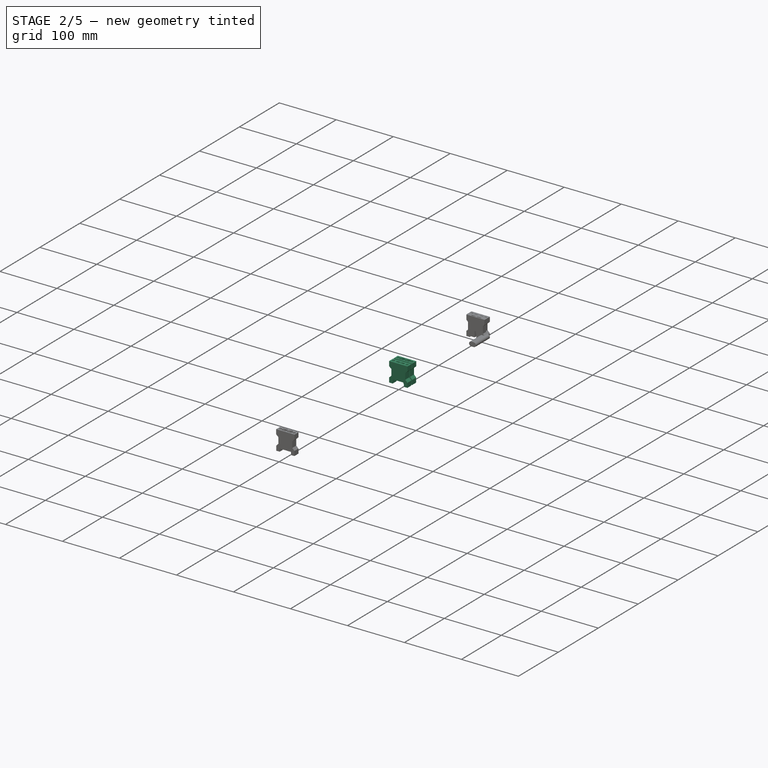
[diagram: stage 2 of 5 — iso view after this stage's code; geometry added in this stage tinted green]
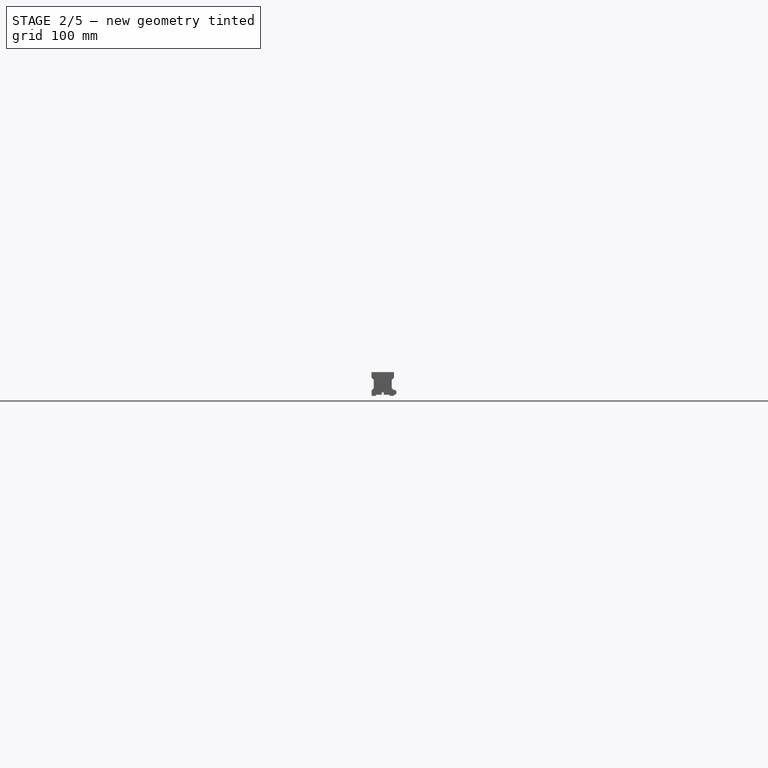
[diagram: stage 2 of 5 — front view after this stage's code; geometry added in this stage tinted green]
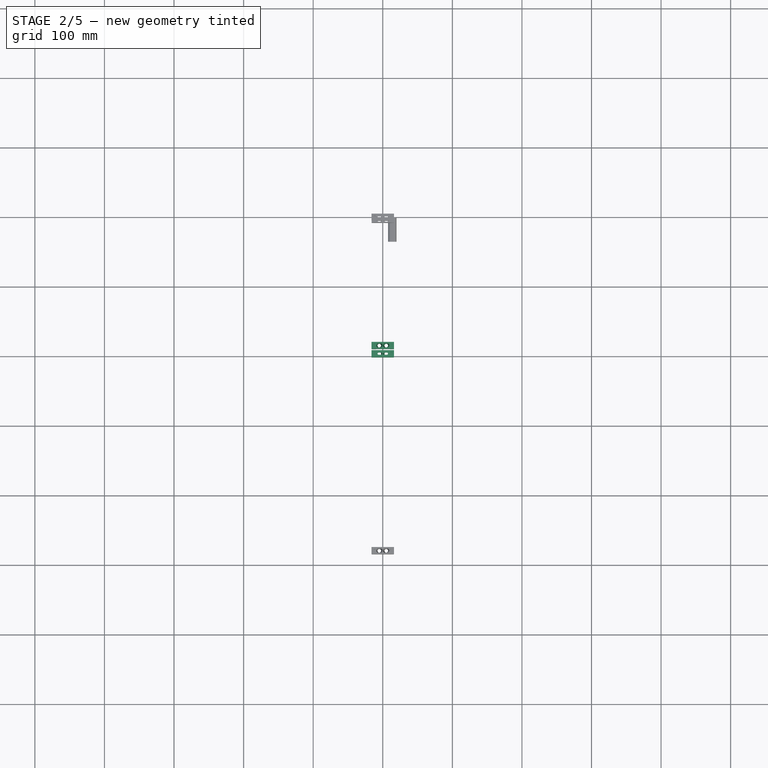
[diagram: stage 2 of 5 — top view after this stage's code; geometry added in this stage tinted green]
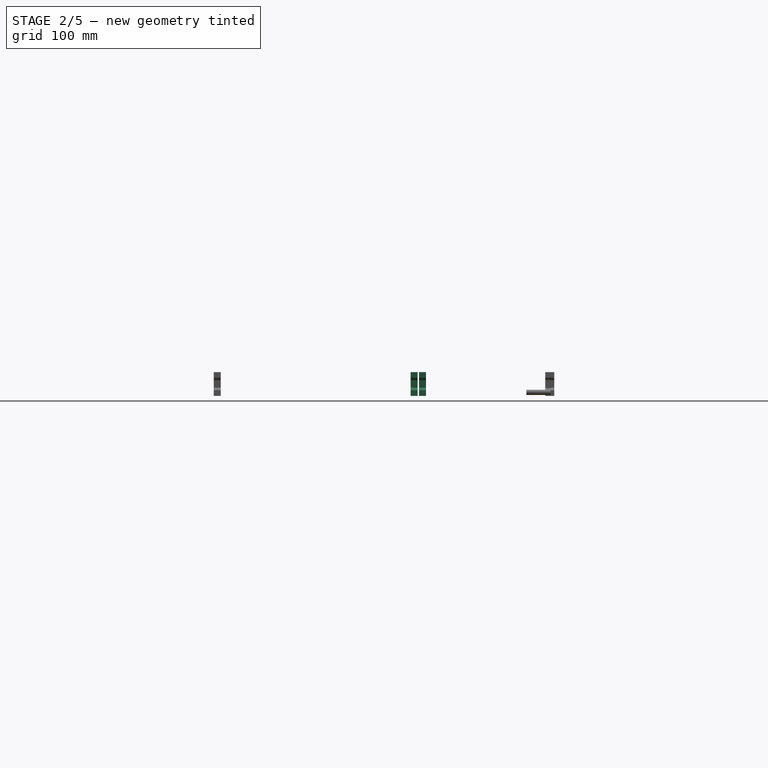
[diagram: stage 2 of 5 — right view after this stage's code; geometry added in this stage tinted green]
FEATURE [PartDesign::Body] Body002  label="Bottom-old"
  AllowCompound = false
  Group = -> [Sketch002,Pad002,Sketch007,Pad006,Sketch008,Pocket,Sketch020,Pad015,Sketch021,Pocket004]
  Origin = -> Origin008
  Tip = -> Pocket004
FEATURE [Sketcher::SketchObject] Sketch022
  ArcFitTolerance = 0
  AttachmentSupport = -> [XZ_Plane016]
  FullyConstrained = true
  MakeInternals = false
  MapMode = 5
  Placement = pos=(0,0,0) rot=(1,0,0;1.5708rad)
  sketch-geometry (20):
    g0: LineSegment StartX=-16 StartY=4 StartZ=0 EndX=-10 EndY=4 EndZ=0
    g1: LineSegment StartX=-10 StartY=4 StartZ=0 EndX=-10 EndY=5.6 EndZ=0
    g2: LineSegment StartX=10 StartY=5.6 StartZ=0 EndX=10 EndY=4 EndZ=0
    g3: LineSegment StartX=10 StartY=4 StartZ=0 EndX=16 EndY=4 EndZ=0
    g4: LineSegment StartX=15.975 StartY=38 StartZ=0 EndX=-15.975 EndY=38 EndZ=0
    g5: LineSegment StartX=-10 StartY=5.6 StartZ=0 EndX=-1.5 EndY=5.6 EndZ=0
    g6: LineSegment StartX=-1.5 StartY=5.6 StartZ=0 EndX=-1.5 EndY=15.6 EndZ=0
    g7: LineSegment StartX=-1.5 StartY=15.6 StartZ=0 EndX=1.5 EndY=15.6 EndZ=0
    g8: LineSegment StartX=1.5 StartY=15.6 StartZ=0 EndX=1.5 EndY=5.6 EndZ=0
    g9: LineSegment StartX=1.5 StartY=5.6 StartZ=0 EndX=10 EndY=5.6 EndZ=0
    g10: LineSegment StartX=-16 StartY=4 StartZ=0 EndX=-16 EndY=12 EndZ=0
    g11: LineSegment StartX=-16 StartY=12 StartZ=0 EndX=-12.975 EndY=15.025 EndZ=0
    g12: LineSegment StartX=-12.975 StartY=15.025 StartZ=0 EndX=-12.975 EndY=26.9502 EndZ=0
    g13: LineSegment StartX=-12.975 StartY=26.9502 StartZ=0 EndX=-15.975 EndY=30 EndZ=0
    g14: LineSegment StartX=-15.975 StartY=30 StartZ=0 EndX=-15.975 EndY=38 EndZ=0
    g15: LineSegment StartX=15.975 StartY=38 StartZ=0 EndX=15.975 EndY=30 EndZ=0
    g16: LineSegment StartX=15.975 StartY=30 StartZ=0 EndX=12.975 EndY=26.9502 EndZ=0
    g17: LineSegment StartX=12.975 StartY=26.9502 StartZ=0 EndX=12.975 EndY=15.025 EndZ=0
    g18: LineSegment StartX=12.975 StartY=15.025 StartZ=0 EndX=16 EndY=12 EndZ=0
    g19: LineSegment StartX=16 StartY=12 StartZ=0 EndX=16 EndY=4 EndZ=0
  constraints (55):
    c: Horizontal(g0)
    c: Coincident(g0,g1)
    c: Vertical(g1)
    c: Vertical(g2)
    c: Coincident(g2,g3)
    c: Horizontal(g3)
    c: Symmetric(g1,g2,g-2)
    c: Symmetric(g4,g4,g-2)
    c: DistanceX(g4,g4) = 31.95
    c: DistanceY(g0,g4) = 34
    c: Equal(g1,g2)
    c: DistanceY(g0) = 4
    c: DistanceX(g1,g2) = 20
    c: Coincident(g1,g5)
    c: Horizontal(g5)
    c: Coincident(g5,g6)
    c: Vertical(g6)
    c: Coincident(g6,g7)
    c: Coincident(g7,g8)
    c: Vertical(g8)
    c: Coincident(g8,g9)
    c: Coincident(g9,g2)
    c: Horizontal(g9)
    c: Symmetric(g6,g7,g-2)
    c: DistanceX(g7,g7) = 3
    c: DistanceY(g2,g2) = 1.6
    c: DistanceY(g6,g6) = 10
    c: Coincident(g0,g10)
    c: Vertical(g10)
    c: Coincident(g10,g11)
    c: Coincident(g11,g12)
    c: Vertical(g12)
    c: Coincident(g12,g13)
    c: Coincident(g13,g14)
    c: Coincident(g14,g4)
    c: Vertical(g14)
    c: Coincident(g4,g15)
    c: Vertical(g15)
    c: Coincident(g15,g16)
    c: Coincident(g16,g17)
    c: Vertical(g17)
    c: Coincident(g17,g18)
    c: Coincident(g18,g19)
    c: Coincident(g19,g3)
    c: Vertical(g19)
    c: Symmetric(g16,g12,g-2)
    c: Equal(g12,g17)
    c: DistanceX(g13,g13) = 3
    c: DistanceY(g10,g10) = 8
    c: DistanceY(g14,g14) = 8
    c: Angle(g10,g11) = 2.35619
    c: Symmetric(g18,g10,g-2)
    c: Equal(g13,g16)
    c: Equal(g16,g18)
    c: DistanceX(g0,g3) = 32
FEATURE [PartDesign::Pad] Pad016
  Direction = (0,-1,2e-16)
  Length = 8
  Length2 = 10
  Placement = pos=(0,0,0) rot=(1,0,0;1.5708rad)
  Profile = -> Sketch022
  ReferenceAxis = -> Sketch022 [N_Axis]
  Suppressed = false
  Type = 0
FEATURE [Sketcher::SketchObject] Sketch023
  ArcFitTolerance = 0
  AttachmentSupport = -> [Pad016]
  FullyConstrained = true
  MakeInternals = false
  MapMode = 5
  Placement = pos=(0,1.2e-15,5.6) rot=(1,0,0;3.14159rad)
  sketch-geometry (3):
    g0: Circle CenterX=-5 CenterY=4 CenterZ=0 NormalX=0 NormalY=0 NormalZ=1 AngleXU=0 Radius=2.5
    g1: Circle CenterX=5 CenterY=4 CenterZ=0 NormalX=0 NormalY=0 NormalZ=1 AngleXU=0 Radius=2.5
    g2: LineSegment [constr] StartX=-5 StartY=4 StartZ=0 EndX=5 EndY=4 EndZ=0
  constraints (7):
    c: Coincident(g2,g0)
    c: Coincident(g2,g1)
    c: Equal(g0,g1)
    c: Radius(g0) = 2.5
    c: Symmetric(g0,g1,g-2)
    c: DistanceY(g0) = 4
    c: DistanceX(g2,g2) = 10
FEATURE [PartDesign::Pocket] Pocket005
  BaseFeature = -> Pad016
  Direction = (0,0,1)
  Length = 2
  Length2 = 5
  Placement = pos=(0,0,0) rot=(1,0,0;1.5708rad)
  Profile = -> Sketch023
  ReferenceAxis = -> Sketch023 [N_Axis]
  Suppressed = false
  Type = 0
FEATURE [Sketcher::SketchObject] Sketch024
  ArcFitTolerance = 0
  AttachmentSupport = -> [Pocket005]
  ExternalGeometry = -> [Pocket005]
  FullyConstrained = true
  MakeInternals = false
  MapMode = 5
  Placement = pos=(0,1.2e-15,5.6) rot=(1,0,0;3.14159rad)
  sketch-geometry (2):
    g0: Circle CenterX=-5 CenterY=4 CenterZ=0 NormalX=0 NormalY=0 NormalZ=1 AngleXU=0 Radius=2.7
    g1: Circle CenterX=5 CenterY=4 CenterZ=0 NormalX=0 NormalY=0 NormalZ=1 AngleXU=0 Radius=2.7
  constraints (4):
    c: Radius(g0) = 2.7
    c: Coincident(g1,g-3)
    c: Coincident(g0,g-4)
    c: Equal(g1,g0)
FEATURE [PartDesign::Pocket] Pocket006
  BaseFeature = -> Pocket005
  Direction = (0,0,1)
  Length = 5
  Length2 = 5
  Placement = pos=(0,0,0) rot=(1,0,0;1.5708rad)
  Profile = -> Sketch024
  ReferenceAxis = -> Sketch024 [N_Axis]
  Suppressed = false
  Type = 1
FEATURE [Sketcher::SketchObject] Sketch025
  ArcFitTolerance = 0
  AttachmentSupport = -> [Pocket006]
  ExternalGeometry = -> [Pocket006]
  FullyConstrained = true
  MakeInternals = false
  MapMode = 5
  Placement = pos=(0,8.4e-15,38) rot=(0,0,1;3.14159rad)
  sketch-geometry (12):
    g0: ArcOfCircle CenterX=-6.5 CenterY=4 CenterZ=0 NormalX=0 NormalY=0 NormalZ=1 AngleXU=0 Radius=2.7 StartAngle=1.5708 EndAngle=4.71239
    g1: ArcOfCircle CenterX=-3.5 CenterY=4 CenterZ=0 NormalX=0 NormalY=0 NormalZ=1 AngleXU=0 Radius=2.7 StartAngle=4.71239 EndAngle=7.85398
    g2: LineSegment StartX=-6.5 StartY=1.3 StartZ=0 EndX=-3.5 EndY=1.3 EndZ=0
    g3: LineSegment StartX=-3.5 StartY=6.7 StartZ=0 EndX=-6.5 EndY=6.7 EndZ=0
    g4: ArcOfCircle CenterX=3.5 CenterY=4 CenterZ=0 NormalX=0 NormalY=0 NormalZ=1 AngleXU=0 Radius=2.7 StartAngle=1.5708 EndAngle=4.71239
    g5: ArcOfCircle CenterX=6.5 CenterY=4 CenterZ=0 NormalX=0 NormalY=0 NormalZ=1 AngleXU=0 Radius=2.7 StartAngle=4.71239 EndAngle=7.85398
    g6: LineSegment StartX=3.5 StartY=1.3 StartZ=0 EndX=6.5 EndY=1.3 EndZ=0
    g7: LineSegment StartX=6.5 StartY=6.7 StartZ=0 EndX=3.5 EndY=6.7 EndZ=0
    g8: LineSegment [constr] StartX=-6.5 StartY=4 StartZ=0 EndX=-5 EndY=4 EndZ=0
    g9: LineSegment [constr] StartX=-5 StartY=4 StartZ=0 EndX=-3.5 EndY=4 EndZ=0
    g10: LineSegment [constr] StartX=3.5 StartY=4 StartZ=0 EndX=5 EndY=4 EndZ=0
    g11: LineSegment [constr] StartX=5 StartY=4 StartZ=0 EndX=6.5 EndY=4 EndZ=0
  constraints (27):
    c: Tangent(g0,g2) = -1.5708
    c: Tangent(g2,g1) = -1.5708
    c: Tangent(g1,g3) = -1.5708
    c: Tangent(g3,g0) = -1.5708
    c: Equal(g0,g1)
    c: Horizontal(g2)
    c: Tangent(g4,g6) = -1.5708
    c: Tangent(g6,g5) = -1.5708
    c: Tangent(g5,g7) = -1.5708
    c: Tangent(g7,g4) = -1.5708
    c: Equal(g4,g5)
    c: Horizontal(g6)
    c: Radius(g4) = 2.7
    c: Equal(g1,g4)
    c: Symmetric(g1,g4,g-2)
    c: Coincident(g8,g0)
    c: Horizontal(g8)
    c: Coincident(g9,g8)
    c: Coincident(g9,g1)
    c: Coincident(g10,g4)
    c: Coincident(g11,g5)
    c: Equal(g10,g11)
    c: Equal(g11,g8)
    c: DistanceX(g3,g3) = 3
    c: Coincident(g10,g11)
    c: Coincident(g10,g-3)
    c: Coincident(g-4,g8)
FEATURE [PartDesign::Pocket] Pocket007
  BaseFeature = -> Pocket006
  Direction = (0,0,-1)
  Length = 20
  Length2 = 5
  Placement = pos=(0,0,0) rot=(1,0,0;1.5708rad)
  Profile = -> Sketch025
  ReferenceAxis = -> Sketch025 [N_Axis]
  Suppressed = false
  Type = 0
FEATURE [Sketcher::SketchObject] Sketch062
  ArcFitTolerance = 0
  AttachmentSupport = -> [XZ_Plane030]
  FullyConstrained = true
  MakeInternals = false
  MapMode = 5
  Placement = pos=(0,0,0) rot=(1,0,0;1.5708rad)
  sketch-geometry (22):
    g0: LineSegment StartX=-16 StartY=4 StartZ=0 EndX=-9.85 EndY=4 EndZ=0
    g1: LineSegment StartX=9.85 StartY=4 StartZ=0 EndX=16 EndY=4 EndZ=0
    g2: LineSegment StartX=16.15 StartY=38 StartZ=0 EndX=-16.15 EndY=38 EndZ=0
    g3: LineSegment StartX=-9.85 StartY=8.6 StartZ=0 EndX=-9 EndY=8.6 EndZ=0
    g4: LineSegment StartX=-9 StartY=8.6 StartZ=0 EndX=-9 EndY=10.6 EndZ=0
    g5: LineSegment StartX=-9 StartY=10.6 StartZ=0 EndX=9 EndY=10.6 EndZ=0
    g6: LineSegment StartX=9 StartY=10.6 StartZ=0 EndX=9 EndY=8.6 EndZ=0
    g7: LineSegment StartX=9 StartY=8.6 StartZ=0 EndX=9.85 EndY=8.6 EndZ=0
    g8: LineSegment StartX=-16 StartY=4 StartZ=0 EndX=-16 EndY=12 EndZ=0
    g9: LineSegment StartX=-16 StartY=12 StartZ=0 EndX=-12.15 EndY=15.85 EndZ=0
    g10: LineSegment StartX=-12.15 StartY=15.85 StartZ=0 EndX=-12.15 EndY=26.3061 EndZ=0
    g11: LineSegment StartX=-12.15 StartY=26.3061 StartZ=0 EndX=-16.15 EndY=30 EndZ=0
    g12: LineSegment StartX=-16.15 StartY=30 StartZ=0 EndX=-16.15 EndY=38 EndZ=0
    g13: LineSegment StartX=16.15 StartY=38 StartZ=0 EndX=16.15 EndY=30 EndZ=0
    g14: LineSegment StartX=16.15 StartY=30 StartZ=0 EndX=12.15 EndY=26.3061 EndZ=0
    g15: LineSegment StartX=12.15 StartY=26.3061 StartZ=0 EndX=12.15 EndY=15.85 EndZ=0
    g16: LineSegment StartX=12.15 StartY=15.85 StartZ=0 EndX=16 EndY=12 EndZ=0
    g17: LineSegment StartX=16 StartY=12 StartZ=0 EndX=16 EndY=4 EndZ=0
    g18: LineSegment StartX=9.85 StartY=8.6 StartZ=0 EndX=9.85 EndY=7 EndZ=0
    g19: LineSegment StartX=9.85 StartY=7 StartZ=0 EndX=9.85 EndY=4 EndZ=0
    g20: LineSegment StartX=-9.85 StartY=8.6 StartZ=0 EndX=-9.85 EndY=7 EndZ=0
    g21: LineSegment StartX=-9.85 StartY=7 StartZ=0 EndX=-9.85 EndY=4 EndZ=0
  constraints (60):
    c: Horizontal(g0)
    c: Horizontal(g1)
    c: Symmetric(g3,g7,g-2)
    c: Symmetric(g2,g2,g-2)
    c: DistanceX(g2,g2) = 32.3
    c: DistanceY(g0,g2) = 34
    c: DistanceY(g0) = 4
    c: DistanceX(g3,g7) = 19.7
    c: Horizontal(g3)
    c: Coincident(g3,g4)
    c: Vertical(g4)
    c: Coincident(g4,g5)
    c: Coincident(g5,g6)
    c: Vertical(g6)
    c: Coincident(g6,g7)
    c: Horizontal(g7)
    c: Symmetric(g4,g5,g-2)
    c: DistanceX(g5,g5) = 18
    c: DistanceY(g1,g7) = 4.6
    c: DistanceY(g4,g4) = 2
    c: Coincident(g0,g8)
    c: Vertical(g8)
    c: Coincident(g8,g9)
    c: Coincident(g9,g10)
    c: Vertical(g10)
    c: Coincident(g10,g11)
    c: Coincident(g11,g12)
    c: Coincident(g12,g2)
    c: Vertical(g12)
    c: Coincident(g2,g13)
    c: Vertical(g13)
    c: Coincident(g13,g14)
    c: Coincident(g14,g15)
    c: Vertical(g15)
    c: Coincident(g15,g16)
    c: Coincident(g16,g17)
    c: Coincident(g17,g1)
    c: Vertical(g17)
    c: Symmetric(g14,g10,g-2)
    c: Equal(g10,g15)
    c: DistanceX(g11,g11) = 4
    c: DistanceY(g8,g8) = 8
    c: DistanceY(g12,g12) = 8
    c: Angle(g8,g9) = 2.35619
    c: Symmetric(g16,g8,g-2)
    c: Equal(g11,g14)
    c: Equal(g14,g16)
    c: DistanceX(g0,g1) = 32
    c: Coincident(g18,g7)
    c: Vertical(g18)
    c: Coincident(g19,g18)
    c: Coincident(g1,g19)
    c: DistanceY(g18,g18) = 1.6
    c: Coincident(g20,g3)
    c: Vertical(g20)
    c: Coincident(g21,g20)
    c: Coincident(g0,g21)
    c: Symmetric(g0,g1,g-2)
    c: Equal(g20,g18)
    c: Vertical(g19)
FEATURE [PartDesign::Pad] Pad030
  Direction = (0,-1,2e-16)
  Length = 10
  Length2 = 10
  Placement = pos=(0,0,0) rot=(1,0,0;1.5708rad)
  Profile = -> Sketch062
  ReferenceAxis = -> Sketch062 [N_Axis]
  Suppressed = false
  Type = 0
FEATURE [Sketcher::SketchObject] Sketch063
  ArcFitTolerance = 0
  AttachmentSupport = -> [Pad030]
  FullyConstrained = true
  MakeInternals = false
  MapMode = 5
  Placement = pos=(0,2.4e-15,10.6) rot=(1,0,0;3.14159rad)
  sketch-geometry (3):
    g0: Circle CenterX=-5 CenterY=5 CenterZ=0 NormalX=0 NormalY=0 NormalZ=1 AngleXU=0 Radius=2.6
    g1: Circle CenterX=5 CenterY=5 CenterZ=0 NormalX=0 NormalY=0 NormalZ=1 AngleXU=0 Radius=2.6
    g2: LineSegment [constr] StartX=-5 StartY=5 StartZ=0 EndX=5 EndY=5 EndZ=0
  constraints (7):
    c: Coincident(g2,g0)
    c: Coincident(g2,g1)
    c: Equal(g0,g1)
    c: Radius(g0) = 2.6
    c: Symmetric(g0,g1,g-2)
    c: DistanceY(g0) = 5
    c: DistanceX(g2,g2) = 10
FEATURE [PartDesign::Pocket] Pocket025
  BaseFeature = -> Pad030
  Direction = (0,0,1)
  Length = 8
  Length2 = 5
  Placement = pos=(0,0,0) rot=(1,0,0;1.5708rad)
  Profile = -> Sketch063
  ReferenceAxis = -> Sketch063 [N_Axis]
  Suppressed = false
  Type = 0
FEATURE [Sketcher::SketchObject] Sketch064
  ArcFitTolerance = 0
  AttachmentSupport = -> [Pocket025]
  ExternalGeometry = -> [Pocket025]
  FullyConstrained = true
  MakeInternals = false
  MapMode = 5
  Placement = pos=(0,2.4e-15,10.6) rot=(1,0,0;3.14159rad)
  sketch-geometry (2):
    g0: Circle CenterX=-5 CenterY=5 CenterZ=0 NormalX=0 NormalY=0 NormalZ=1 AngleXU=0 Radius=3
    g1: Circle CenterX=5 CenterY=5 CenterZ=0 NormalX=0 NormalY=0 NormalZ=1 AngleXU=0 Radius=3
  constraints (4):
    c: Radius(g0) = 3
    c: Equal(g1,g0)
    c: Coincident(g1,g-4)
    c: Coincident(g0,g-3)
FEATURE [PartDesign::Pocket] Pocket026
  BaseFeature = -> Pocket025
  Direction = (0,0,1)
  Length = 1
  Length2 = 5
  Placement = pos=(0,0,0) rot=(1,0,0;1.5708rad)
  Profile = -> Sketch064
  ReferenceAxis = -> Sketch064 [N_Axis]
  Suppressed = false
  Type = 0
FEATURE [Sketcher::SketchObject] Sketch065
  ArcFitTolerance = 0
  AttachmentOffset = pos=(0,0,38) rot=(0,0,1;0rad)
  FullyConstrained = true
  MakeInternals = false
  MapMode = 5
  Placement = pos=(0,0,38) rot=(0,0,1;0rad)
  sketch-geometry (4):
    g0: ArcOfCircle CenterX=-6 CenterY=1.145e-13 CenterZ=0 NormalX=0 NormalY=0 NormalZ=1 AngleXU=0 Radius=1.5 StartAngle=1.5708 EndAngle=4.71239
    g1: ArcOfCircle CenterX=-2 CenterY=0 CenterZ=0 NormalX=0 NormalY=0 NormalZ=1 AngleXU=0 Radius=1.5 StartAngle=4.71239 EndAngle=7.85398
    g2: LineSegment StartX=-6 StartY=-1.5 StartZ=0 EndX=-2 EndY=-1.5 EndZ=0
    g3: LineSegment StartX=-2 StartY=1.5 StartZ=0 EndX=-6 EndY=1.5 EndZ=0
  constraints (10):
    c: Tangent(g0,g2) = -1.5708
    c: Tangent(g2,g1) = -1.5708
    c: Tangent(g1,g3) = -1.5708
    c: Tangent(g3,g0) = -1.5708
    c: Equal(g0,g1)
    c: Horizontal(g3)
    c: DistanceX(g3,g3) = 4
    c: Radius(g1) = 1.5
    c: DistanceX(g1) = -2
    c: PointOnObject(g1,g-1)
FEATURE [Sketcher::SketchObject] Sketch066
  ArcFitTolerance = 0
  AttachmentOffset = pos=(0,0,18) rot=(0,0,1;0rad)
  FullyConstrained = true
  MakeInternals = false
  MapMode = 5
  Placement = pos=(0,0,18) rot=(0,0,1;0rad)
  sketch-geometry (1):
    g0: Circle CenterX=-5 CenterY=0 CenterZ=0 NormalX=0 NormalY=0 NormalZ=1 AngleXU=0 Radius=2.7
  constraints (3):
    c: PointOnObject(g0,g-1)
    c: DistanceX(g0) = -5
    c: Radius(g0) = 2.7
FEATURE [Part::Loft] Loft003
  Closed = false
  MaxDegree = 5
  Ruled = false
  Sections = -> [Sketch066,Sketch065]
  Solid = true
FEATURE [Part::Mirroring] Part__Mirroring003  label="Loft001 (Mirror #2)002"
  Base = (0,0,0)
  Normal = (1,0,0)
  Source = -> Loft003
FEATURE [Part::MultiFuse] Fusion003
  Shapes = -> [Loft003,Part__Mirroring003]
FEATURE [Sketcher::SketchObject] Sketch067
  ArcFitTolerance = 0
  AttachmentSupport = -> [Pocket026]
  FullyConstrained = true
  MakeInternals = false
  MapMode = 5
  Placement = pos=(0,8.4e-15,38) rot=(0,0,1;3.14159rad)
  sketch-geometry (3):
    g0: Circle CenterX=-12 CenterY=5 CenterZ=0 NormalX=0 NormalY=0 NormalZ=1 AngleXU=0 Radius=2
    g1: Circle CenterX=12 CenterY=5 CenterZ=0 NormalX=0 NormalY=0 NormalZ=1 AngleXU=0 Radius=2
    g2: LineSegment [constr] StartX=-12 StartY=5 StartZ=0 EndX=12 EndY=5 EndZ=0
  constraints (7):
    c: Coincident(g2,g0)
    c: Coincident(g2,g1)
    c: Symmetric(g0,g1,g-2)
    c: DistanceX(g2,g2) = 24
    c: Equal(g0,g1)
    c: Radius(g1) = 2
    c: DistanceY(g0) = 5
FEATURE [PartDesign::Pocket] Pocket027
  BaseFeature = -> Pocket026
  Direction = (0,0,-1)
  Length = 8
  Length2 = 5
  Placement = pos=(0,0,0) rot=(1,0,0;1.5708rad)
  Profile = -> Sketch067
  ReferenceAxis = -> Sketch067 [N_Axis]
  Suppressed = false
  Type = 0
FEATURE [PartDesign::Body] Body024
  AllowCompound = false
  Group = -> [Sketch062,Pad030,Sketch063,Pocket025,Sketch064,Pocket026,Sketch067,Pocket027]
  Origin = -> Origin030
  Placement = pos=(0,5,0) rot=(0,0,1;0rad)
  Tip = -> Pocket027
FEATURE [Part::Cut] Cut002  label="Sensor-holder-sun-2"
  Base = -> Body024
  Placement = pos=(0,-196.33,0) rot=(0,0,1;0rad)
  Tool = -> Fusion003
FEATURE [Sketcher::SketchObject] Sketch069
  ArcFitTolerance = 0
  AttachmentSupport = -> [Pad031]
  FullyConstrained = true
  MakeInternals = false
  MapMode = 5
  Placement = pos=(0,2.4e-15,10.6) rot=(1,0,0;3.14159rad)
  sketch-geometry (3):
    g0: Circle CenterX=-5 CenterY=5 CenterZ=0 NormalX=0 NormalY=0 NormalZ=1 AngleXU=0 Radius=2.6
    g1: Circle CenterX=5 CenterY=5 CenterZ=0 NormalX=0 NormalY=0 NormalZ=1 AngleXU=0 Radius=2.6
    g2: LineSegment [constr] StartX=-5 StartY=5 StartZ=0 EndX=5 EndY=5 EndZ=0
  constraints (7):
    c: Coincident(g2,g0)
    c: Coincident(g2,g1)
    c: Equal(g0,g1)
    c: Radius(g0) = 2.6
    c: Symmetric(g0,g1,g-2)
    c: DistanceY(g0) = 5
    c: DistanceX(g2,g2) = 10
FEATURE [PartDesign::Pocket] Pocket028
  BaseFeature = -> Pad031
  Direction = (0,0,1)
  Length = 8
  Length2 = 5
  Placement = pos=(0,0,0) rot=(1,0,0;1.5708rad)
  Profile = -> Sketch069
  ReferenceAxis = -> Sketch069 [N_Axis]
  Suppressed = false
  Type = 0
FEATURE [Sketcher::SketchObject] Sketch070
  ArcFitTolerance = 0
  AttachmentSupport = -> [Pocket028]
  ExternalGeometry = -> [Pocket028]
  FullyConstrained = true
  MakeInternals = false
  MapMode = 5
  Placement = pos=(0,2.4e-15,10.6) rot=(1,0,0;3.14159rad)
  sketch-geometry (2):
    g0: Circle CenterX=-5 CenterY=5 CenterZ=0 NormalX=0 NormalY=0 NormalZ=1 AngleXU=0 Radius=3
    g1: Circle CenterX=5 CenterY=5 CenterZ=0 NormalX=0 NormalY=0 NormalZ=1 AngleXU=0 Radius=3
  constraints (4):
    c: Radius(g0) = 3
    c: Equal(g1,g0)
    c: Coincident(g1,g-4)
    c: Coincident(g0,g-3)
FEATURE [PartDesign::Pocket] Pocket029
  BaseFeature = -> Pocket028
  Direction = (0,0,1)
  Length = 1
  Length2 = 5
  Placement = pos=(0,0,0) rot=(1,0,0;1.5708rad)
  Profile = -> Sketch070
  ReferenceAxis = -> Sketch070 [N_Axis]
  Suppressed = false
  Type = 0
FEATURE [Sketcher::SketchObject] Sketch071
  ArcFitTolerance = 0
  AttachmentOffset = pos=(0,0,38) rot=(0,0,1;0rad)
  FullyConstrained = true
  MakeInternals = false
  MapMode = 5
  Placement = pos=(0,0,38) rot=(0,0,1;0rad)
  sketch-geometry (4):
    g0: ArcOfCircle CenterX=-6.3 CenterY=0 CenterZ=0 NormalX=0 NormalY=0 NormalZ=1 AngleXU=0 Radius=3 StartAngle=1.5708 EndAngle=4.71239
    g1: ArcOfCircle CenterX=-3.3 CenterY=0 CenterZ=0 NormalX=0 NormalY=0 NormalZ=1 AngleXU=0 Radius=3 StartAngle=4.71239 EndAngle=7.85398
    g2: LineSegment StartX=-6.3 StartY=-3 StartZ=0 EndX=-3.3 EndY=-3 EndZ=0
    g3: LineSegment StartX=-3.3 StartY=3 StartZ=0 EndX=-6.3 EndY=3 EndZ=0
  constraints (10):
    c: Tangent(g0,g2) = -1.5708
    c: Tangent(g2,g1) = -1.5708
    c: Tangent(g1,g3) = -1.5708
    c: Tangent(g3,g0) = -1.5708
    c: Equal(g0,g1)
    c: Horizontal(g3)
    c: DistanceX(g3,g3) = 3
    c: Radius(g1) = 3
    c: DistanceX(g1) = -3.3
    c: PointOnObject(g1,g-1)
FEATURE [Sketcher::SketchObject] Sketch072
  ArcFitTolerance = 0
  AttachmentOffset = pos=(0,0,18) rot=(0,0,1;0rad)
  FullyConstrained = true
  MakeInternals = false
  MapMode = 5
  Placement = pos=(0,0,18) rot=(0,0,1;0rad)
  sketch-geometry (1):
    g0: Circle CenterX=-5 CenterY=0 CenterZ=0 NormalX=0 NormalY=0 NormalZ=1 AngleXU=0 Radius=2.7
  constraints (3):
    c: PointOnObject(g0,g-1)
    c: DistanceX(g0) = -5
    c: Radius(g0) = 2.7
FEATURE [Part::Loft] Loft004
  Closed = false
  MaxDegree = 5
  Ruled = false
  Sections = -> [Sketch072,Sketch071]
  Solid = true
FEATURE [Part::Mirroring] Part__Mirroring004  label="Loft001 (Mirror #2)003"
  Base = (0,0,0)
  Normal = (1,0,0)
  Source = -> Loft004
FEATURE [Part::MultiFuse] Fusion004
  Shapes = -> [Loft004,Part__Mirroring004]
FEATURE [Sketcher::SketchObject] Sketch073
  ArcFitTolerance = 0
  AttachmentSupport = -> [Pocket029]
  FullyConstrained = true
  MakeInternals = false
  MapMode = 5
  Placement = pos=(0,8.4e-15,38) rot=(0,0,1;3.14159rad)
  sketch-geometry (3):
    g0: Circle CenterX=-12 CenterY=5 CenterZ=0 NormalX=0 NormalY=0 NormalZ=1 AngleXU=0 Radius=2
    g1: Circle CenterX=12 CenterY=5 CenterZ=0 NormalX=0 NormalY=0 NormalZ=1 AngleXU=0 Radius=2
    g2: LineSegment [constr] StartX=-12 StartY=5 StartZ=0 EndX=12 EndY=5 EndZ=0
  constraints (7):
    c: Coincident(g2,g0)
    c: Coincident(g2,g1)
    c: Symmetric(g0,g1,g-2)
    c: DistanceX(g2,g2) = 24
    c: Equal(g0,g1)
    c: Radius(g1) = 2
    c: DistanceY(g0) = 5
FEATURE [PartDesign::Pocket] Pocket030
  BaseFeature = -> Pocket029
  Direction = (0,0,-1)
  Length = 8
  Length2 = 5
  Placement = pos=(0,0,0) rot=(1,0,0;1.5708rad)
  Profile = -> Sketch073
  ReferenceAxis = -> Sketch073 [N_Axis]
  Suppressed = false
  Type = 0
FEATURE [PartDesign::Body] Body025
  AllowCompound = false
  Group = -> [Sketch068,Pad031,Sketch069,Pocket028,Sketch070,Pocket029,Sketch073,Pocket030]
  Origin = -> Origin031
  Placement = pos=(0,5,0) rot=(0,0,1;0rad)
  Tip = -> Pocket030
FEATURE [Part::Cut] Cut003  label="Sensor-holder-sun-3"
  Base = -> Body025
  Placement = pos=(0,-184.33,0) rot=(0,0,1;0rad)
  Tool = -> Fusion004
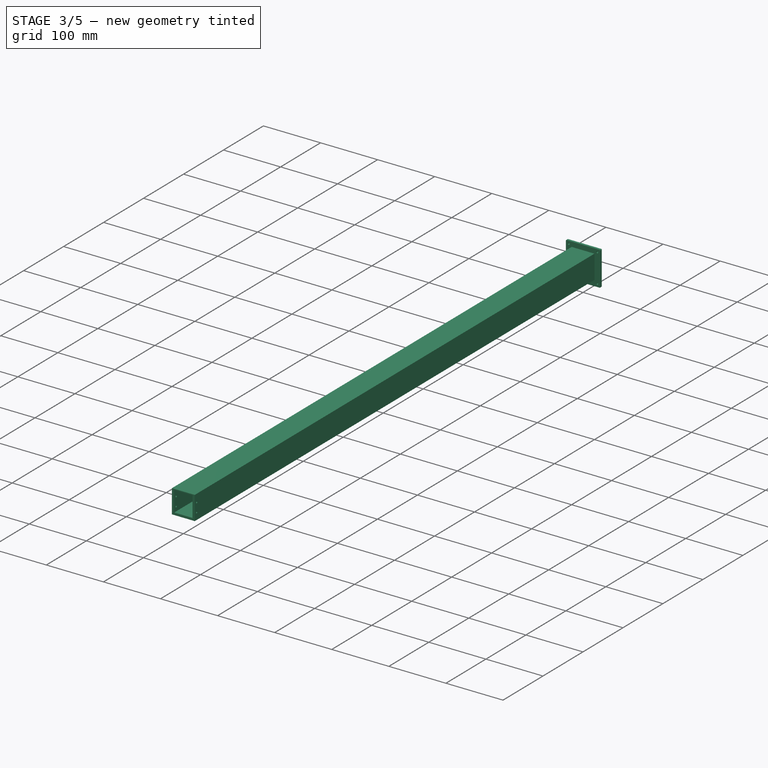
[diagram: stage 3 of 5 — iso view after this stage's code; geometry added in this stage tinted green]
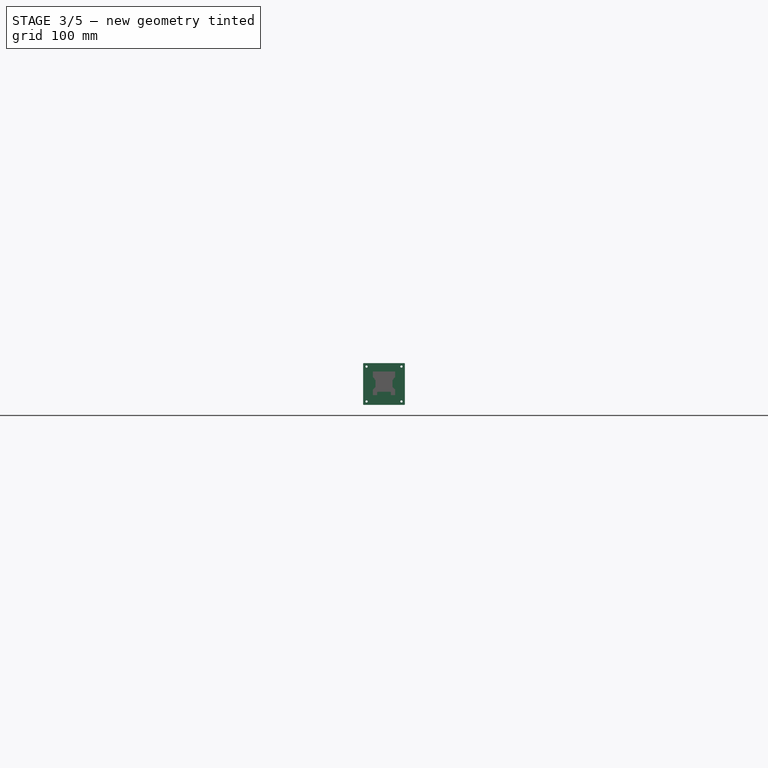
[diagram: stage 3 of 5 — front view after this stage's code; geometry added in this stage tinted green]
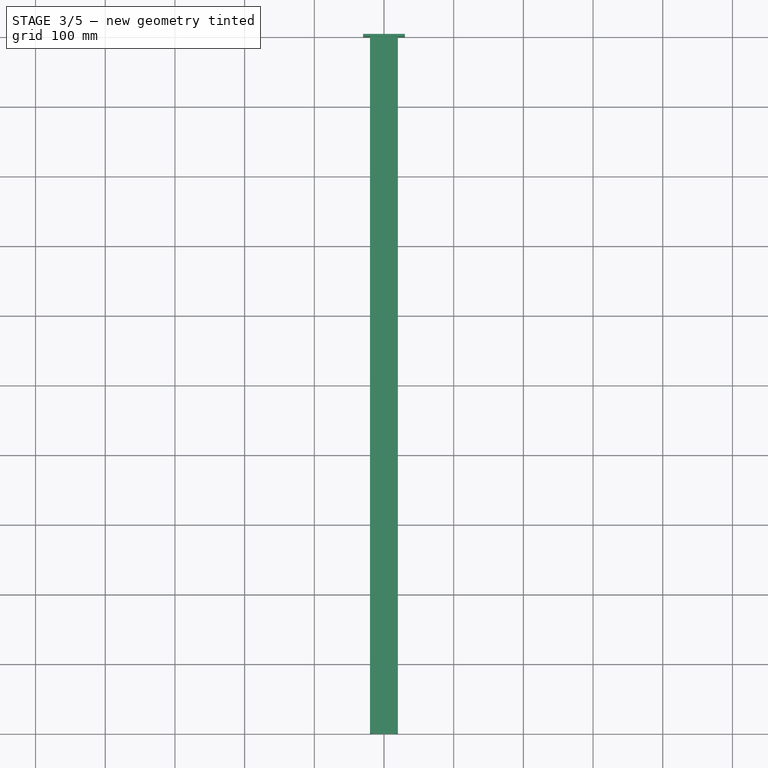
[diagram: stage 3 of 5 — top view after this stage's code; geometry added in this stage tinted green]
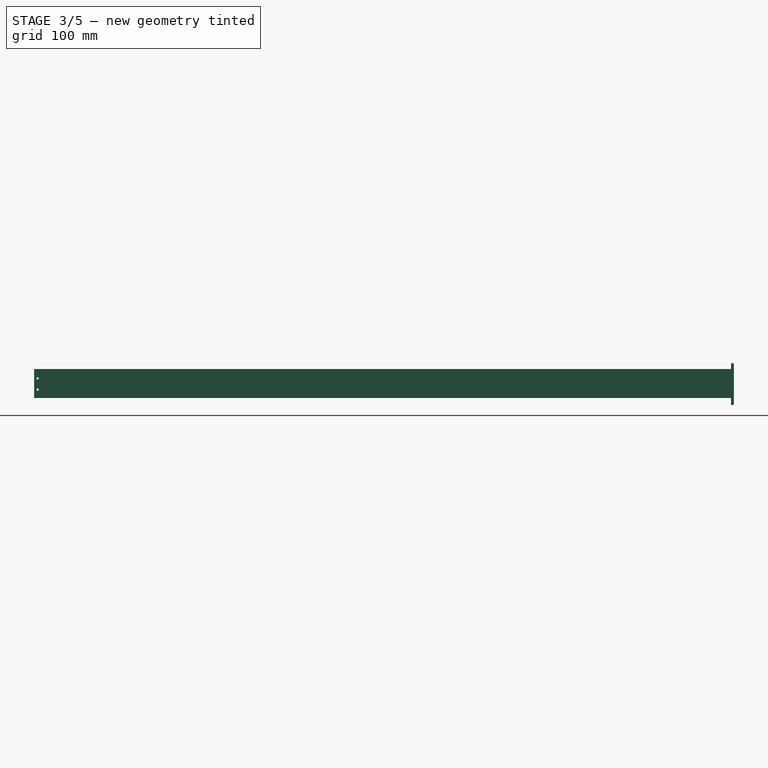
[diagram: stage 3 of 5 — right view after this stage's code; geometry added in this stage tinted green]
FEATURE [Sketcher::SketchObject] Sketch
  ArcFitTolerance = 0
  FullyConstrained = true
  MakeInternals = false
  MapMode = 5
  Placement = pos=(0,0,0) rot=(1,0,0;1.5708rad)
  sketch-geometry (8):
    g0: LineSegment StartX=-20 StartY=40 StartZ=0 EndX=-20 EndY=0 EndZ=0
    g1: LineSegment StartX=-20 StartY=0 StartZ=0 EndX=20 EndY=-1e-16 EndZ=0
    g2: LineSegment StartX=20 StartY=-1e-16 StartZ=0 EndX=20 EndY=40 EndZ=0
    g3: LineSegment StartX=20 StartY=40 StartZ=0 EndX=16 EndY=40 EndZ=0
    g4: LineSegment StartX=16 StartY=4 StartZ=0 EndX=-16 EndY=4 EndZ=0
    g5: LineSegment StartX=-16 StartY=40 StartZ=0 EndX=-20 EndY=40 EndZ=0
    g6: LineSegment StartX=-16 StartY=40 StartZ=0 EndX=-16 EndY=4 EndZ=0
    g7: LineSegment StartX=16 StartY=40 StartZ=0 EndX=16 EndY=4 EndZ=0
  constraints (22):
    c: Vertical(g0)
    c: Coincident(g0,g1)
    c: Coincident(g1,g2)
    c: Coincident(g2,g3)
    c: Horizontal(g3)
    c: Coincident(g5,g0)
    c: Horizontal(g5)
    c: DistanceY(g0,g0) = 40
    c: PointOnObject(g0,g-1)
    c: DistanceX(g1,g1) = 40
    c: Symmetric(g0,g1,g-2)
    c: Symmetric(g0,g2,g-2)
    c: Equal(g3,g5)
    c: DistanceX(g5,g5) = 4
    c: Coincident(g6,g5)
    c: Coincident(g6,g4)
    c: Vertical(g6)
    c: Coincident(g7,g3)
    c: Coincident(g7,g4)
    c: Vertical(g7)
    c: DistanceY(g0,g4) = 4
    c: Horizontal(g4)
FEATURE [PartDesign::Pad] Pad
  Direction = (0,-1,2e-16)
  Length = 1000
  Length2 = 10
  Placement = pos=(0,0,0) rot=(1,0,0;1.5708rad)
  Profile = -> Sketch
  ReferenceAxis = -> Sketch [N_Axis]
  Suppressed = false
  Type = 0
FEATURE [Sketcher::SketchObject] Sketch001
  ArcFitTolerance = 0
  AttachmentSupport = -> [XZ_Plane001]
  FullyConstrained = true
  MakeInternals = false
  MapMode = 5
  Placement = pos=(0,0,0) rot=(1,0,0;1.5708rad)
  sketch-geometry (4):
    g0: LineSegment StartX=-20 StartY=40 StartZ=0 EndX=20 EndY=40 EndZ=0
    g1: LineSegment StartX=20 StartY=40 StartZ=0 EndX=20 EndY=41.5 EndZ=0
    g2: LineSegment StartX=20 StartY=41.5 StartZ=0 EndX=-20 EndY=41.5 EndZ=0
    g3: LineSegment StartX=-20 StartY=41.5 StartZ=0 EndX=-20 EndY=40 EndZ=0
  constraints (11):
    c: Coincident(g0,g1)
    c: Coincident(g1,g2)
    c: Coincident(g2,g3)
    c: Coincident(g3,g0)
    c: Horizontal(g2)
    c: Vertical(g1)
    c: Vertical(g3)
    c: Symmetric(g0,g0,g-2)
    c: DistanceY(g1,g1) = 1.5
    c: DistanceY(g0) = 40
    c: DistanceX(g2,g2) = 40
FEATURE [PartDesign::Pad] Pad001
  Direction = (0,-1,2e-16)
  Length = 1000
  Length2 = 10
  Placement = pos=(0,0,0) rot=(1,0,0;1.5708rad)
  Profile = -> Sketch001
  ReferenceAxis = -> Sketch001 [N_Axis]
  Suppressed = false
  Type = 0
FEATURE [Part::Feature] Part__Feature004  label="SOLID003"
  shape: bbox 18 x 19.2 x 3.2 mm, 766 faces (baked)
FEATURE [App::Part] ESP32_WROOM_32U  label="ESP32-WROOM-32U"
  Group = -> [Part__Feature004]
  Origin = -> Origin006
  Placement = pos=(140,-61,1.65) rot=(0,0,-1;1.5708rad)
FEATURE [Part::Feature] Part__Feature005  label="Receiver PCB"
  shape: bbox 100 x 22 x 1.6 mm, 18 faces (baked)
FEATURE [App::Part] Receiver_1  label="PCB-Receiver -A1"
  Group = -> [ESP32_WROOM_32U,Part__Feature005]
  Origin = -> Origin007
  Placement = pos=(66,-840,5.2) rot=(0,0,1;-1.5708rad)
FEATURE [Sketcher::SketchObject] Sketch002
  ArcFitTolerance = 0
  AttachmentSupport = -> [XZ_Plane008]
  FullyConstrained = true
  MakeInternals = false
  MapMode = 5
  Placement = pos=(0,0,0) rot=(1,0,0;1.5708rad)
  sketch-geometry (16):
    g0: LineSegment StartX=-29 StartY=50 StartZ=0 EndX=29 EndY=50 EndZ=0
    g1: LineSegment StartX=30 StartY=49 StartZ=0 EndX=30 EndY=-9 EndZ=0
    g2: LineSegment StartX=29 StartY=-10 StartZ=0 EndX=-29 EndY=-10 EndZ=0
    g3: LineSegment StartX=-30 StartY=-9 StartZ=0 EndX=-30 EndY=49 EndZ=0
    g4: ArcOfCircle CenterX=-29 CenterY=49 CenterZ=0 NormalX=0 NormalY=0 NormalZ=1 AngleXU=0 Radius=1 StartAngle=1.5708 EndAngle=3.14159
    g5: ArcOfCircle CenterX=29 CenterY=49 CenterZ=0 NormalX=0 NormalY=0 NormalZ=1 AngleXU=0 Radius=1 StartAngle=-9e-16 EndAngle=1.5708
    g6: ArcOfCircle CenterX=29 CenterY=-9 CenterZ=0 NormalX=0 NormalY=0 NormalZ=1 AngleXU=0 Radius=1 StartAngle=4.71239 EndAngle=6.28319
    g7: ArcOfCircle CenterX=-29 CenterY=-9 CenterZ=0 NormalX=0 NormalY=0 NormalZ=1 AngleXU=0 Radius=1 StartAngle=3.14159 EndAngle=4.71239
    g8: Circle CenterX=-25 CenterY=-5 CenterZ=0 NormalX=0 NormalY=0 NormalZ=1 AngleXU=0 Radius=1.6
    g9: Circle CenterX=-25 CenterY=45 CenterZ=0 NormalX=0 NormalY=0 NormalZ=1 AngleXU=0 Radius=1.6
    g10: Circle CenterX=25 CenterY=45 CenterZ=0 NormalX=0 NormalY=0 NormalZ=1 AngleXU=0 Radius=1.6
    g11: Circle CenterX=25 CenterY=-5 CenterZ=0 NormalX=0 NormalY=0 NormalZ=1 AngleXU=0 Radius=1.6
    g12: LineSegment [constr] StartX=-25 StartY=45 StartZ=0 EndX=25 EndY=45 EndZ=0
    g13: LineSegment [constr] StartX=25 StartY=45 StartZ=0 EndX=25 EndY=-5 EndZ=0
    g14: LineSegment [constr] StartX=25 StartY=-5 StartZ=0 EndX=-25 EndY=-5 EndZ=0
    g15: LineSegment [constr] StartX=-25 StartY=-5 StartZ=0 EndX=-25 EndY=45 EndZ=0
  constraints (38):
    c: Horizontal(g0)
    c: Horizontal(g2)
    c: Vertical(g1)
    c: Vertical(g3)
    c: Tangent(g3,g4) = 1.5708
    c: Tangent(g0,g4) = 1.5708
    c: Tangent(g0,g5) = 1.5708
    c: Tangent(g1,g5) = 1.5708
    c: Tangent(g1,g6) = 1.5708
    c: Tangent(g2,g6) = 1.5708
    c: Tangent(g2,g7) = 1.5708
    c: Tangent(g3,g7) = 1.5708
    c: Equal(g4,g7)
    c: Equal(g7,g6)
    c: Diameter(g5) = 2
    c: DistanceY(g2,g0) = 60
    c: DistanceX(g3,g1) = 60
    c: Symmetric(g3,g1,g-2)
    c: DistanceY(g2,g-1) = 10
    c: Coincident(g12,g13)
    c: Coincident(g13,g14)
    c: Coincident(g14,g15)
    c: Coincident(g15,g12)
    c: Horizontal(g14)
    c: Vertical(g13)
    c: Vertical(g15)
    c: Coincident(g12,g9)
    c: Coincident(g13,g11)
    c: Coincident(g10,g12)
    c: Coincident(g8,g14)
    c: Equal(g8,g9)
    c: Equal(g9,g10)
    c: Equal(g10,g11)
    c: Diameter(g10) = 3.2
    c: Equal(g12,g13)
    c: DistanceX(g12,g12) = 50
    c: Symmetric(g9,g10,g-2)
    c: DistanceY(g2,g11) = 5
FEATURE [PartDesign::Pad] Pad002
  Direction = (0,-1,2e-16)
  Length = 4
  Length2 = 10
  Placement = pos=(0,0,0) rot=(1,0,0;1.5708rad)
  Profile = -> Sketch002
  ReferenceAxis = -> Sketch002 [N_Axis]
  Reversed = true
  Suppressed = false
  Type = 0
FEATURE [Sketcher::SketchObject] Sketch007
  ArcFitTolerance = 0
  AttachmentSupport = -> [Pad002]
  ExternalGeometry = -> [Pad002]
  FullyConstrained = true
  MakeInternals = false
  MapMode = 5
  Placement = pos=(0,4.4e-15,0) rot=(1,0,0;1.5708rad)
  sketch-geometry (8):
    g0: LineSegment StartX=-16 StartY=40 StartZ=0 EndX=16 EndY=40 EndZ=0
    g1: LineSegment StartX=16 StartY=40 StartZ=0 EndX=16 EndY=4 EndZ=0
    g2: LineSegment StartX=16 StartY=4 StartZ=0 EndX=-16 EndY=4 EndZ=0
    g3: LineSegment StartX=-16 StartY=4 StartZ=0 EndX=-16 EndY=40 EndZ=0
    g4: LineSegment StartX=-12 StartY=36 StartZ=0 EndX=12 EndY=36 EndZ=0
    g5: LineSegment StartX=12 StartY=36 StartZ=0 EndX=12 EndY=8 EndZ=0
    g6: LineSegment StartX=12 StartY=8 StartZ=0 EndX=-12 EndY=8 EndZ=0
    g7: LineSegment StartX=-12 StartY=8 StartZ=0 EndX=-12 EndY=36 EndZ=0
  constraints (22):
    c: Coincident(g0,g1)
    c: Coincident(g1,g2)
    c: Coincident(g2,g3)
    c: Coincident(g3,g0)
    c: Horizontal(g2)
    c: Vertical(g1)
    c: Vertical(g3)
    c: Symmetric(g0,g0,g-2)
    c: DistanceY(g-3,g2) = 14
    c: DistanceX(g0,g0) = 32
    c: DistanceY(g3,g3) = 36
    c: Coincident(g4,g5)
    c: Coincident(g5,g6)
    c: Coincident(g6,g7)
    c: Coincident(g7,g4)
    c: Horizontal(g6)
    c: Vertical(g5)
    c: Vertical(g7)
    c: Symmetric(g4,g4,g-2)
    c: DistanceY(g2,g6) = 4
    c: DistanceX(g0,g4) = 4
    c: DistanceY(g4,g0) = 4
FEATURE [PartDesign::Pad] Pad006
  BaseFeature = -> Pad002
  Direction = (0,-1,2e-16)
  Length = 10
  Length2 = 10
  Placement = pos=(0,0,0) rot=(1,0,0;1.5708rad)
  Profile = -> Sketch007
  ReferenceAxis = -> Sketch007 [N_Axis]
  Suppressed = false
  Type = 0
FEATURE [Sketcher::SketchObject] Sketch008
  ArcFitTolerance = 0
  AttachmentSupport = -> [Pad006]
  ExternalGeometry = -> [Pad006]
  FullyConstrained = true
  MakeInternals = false
  MapMode = 5
  Placement = pos=(-16,0,0) rot=(0.707107,0,-0.707107;3.14159rad)
  sketch-geometry (5):
    g0: Circle CenterX=-32 CenterY=5 CenterZ=0 NormalX=0 NormalY=0 NormalZ=1 AngleXU=0 Radius=1.6
    g1: Circle CenterX=-12 CenterY=5 CenterZ=0 NormalX=0 NormalY=0 NormalZ=1 AngleXU=0 Radius=1.6
    g2: LineSegment [constr] StartX=-32 StartY=5 StartZ=0 EndX=-12 EndY=5 EndZ=0
    g3: LineSegment [constr] StartX=-40 StartY=10 StartZ=0 EndX=-32 EndY=5 EndZ=0
    g4: LineSegment [constr] StartX=-12 StartY=5 StartZ=0 EndX=-4 EndY=10 EndZ=0
  constraints (12):
    c: Equal(g0,g1)
    c: Coincident(g2,g0)
    c: Coincident(g2,g1)
    c: Horizontal(g2)
    c: DistanceX(g2,g2) = 20
    c: Coincident(g3,g-3)
    c: Coincident(g3,g0)
    c: Coincident(g4,g1)
    c: Coincident(g4,g-3)
    c: Equal(g3,g4)
    c: DistanceY(g0,g3) = 5
    c: Diameter(g0) = 3.2
FEATURE [PartDesign::Pocket] Pocket
  BaseFeature = -> Pad006
  Direction = (1,0,2e-16)
  Length = 5
  Length2 = 5
  Placement = pos=(0,0,0) rot=(1,0,0;1.5708rad)
  Profile = -> Sketch008
  ReferenceAxis = -> Sketch008 [N_Axis]
  Suppressed = false
  Type = 1
FEATURE [PartDesign::Body] Body005  label="Charger"
  AllowCompound = false
  Group = -> [Sketch005,Pad004,Sketch009,Pad007]
  Origin = -> Origin011
  Placement = pos=(0,-132,28) rot=(1,0,0;3.14159rad)
  Tip = -> Pad007
FEATURE [Sketcher::SketchObject] Sketch010
  ArcFitTolerance = 0
  AttachmentSupport = -> [XY_Plane012]
  FullyConstrained = true
  MakeInternals = false
  MapMode = 5
  sketch-geometry (4):
    g0: LineSegment StartX=-16 StartY=-38 StartZ=0 EndX=16 EndY=-38 EndZ=0
    g1: LineSegment StartX=16 StartY=-38 StartZ=0 EndX=16 EndY=-131 EndZ=0
    g2: LineSegment StartX=16 StartY=-131 StartZ=0 EndX=-16 EndY=-131 EndZ=0
    g3: LineSegment StartX=-16 StartY=-131 StartZ=0 EndX=-16 EndY=-38 EndZ=0
  constraints (11):
    c: Coincident(g0,g1)
    c: Coincident(g1,g2)
    c: Coincident(g2,g3)
    c: Coincident(g3,g0)
    c: Horizontal(g0)
    c: Vertical(g1)
    c: Vertical(g3)
    c: DistanceX(g2,g2) = 32
    c: Symmetric(g2,g1,g-2)
    c: DistanceY(g1,g1) = 93
    c: DistanceY(g0,g-1) = 38
FEATURE [PartDesign::Pad] Pad008
  Direction = (0,0,1)
  Length = 2
  Length2 = 10
  Profile = -> Sketch010
  ReferenceAxis = -> Sketch010 [N_Axis]
  Suppressed = false
  Type = 0
FEATURE [Sketcher::SketchObject] Sketch011
  ArcFitTolerance = 0
  AttachmentOffset = pos=(0,0,40) rot=(0,0,1;0rad)
  AttachmentSupport = -> [XZ_Plane012]
  ExternalGeometry = -> [Pad008]
  FullyConstrained = false
  MakeInternals = false
  MapMode = 5
  Placement = pos=(0,-40,8.9e-15) rot=(1,0,0;1.5708rad)
  sketch-geometry (8):
    g0: LineSegment StartX=-13.5 StartY=2 StartZ=0 EndX=-13.5 EndY=26 EndZ=0
    g1: LineSegment StartX=-13.5 StartY=26 StartZ=0 EndX=-12.5 EndY=26 EndZ=0
    g2: LineSegment StartX=-12.5 StartY=26 StartZ=0 EndX=-11.0856 EndY=25.1173 EndZ=0
    g3: LineSegment StartX=-11.0856 StartY=25.1173 StartZ=0 EndX=-11.5 EndY=23.95 EndZ=0
    g4: LineSegment StartX=-11.5 StartY=23.95 StartZ=0 EndX=-11.5 EndY=22.35 EndZ=0
    g5: LineSegment StartX=-11.5 StartY=22.35 StartZ=0 EndX=-10.5 EndY=22.35 EndZ=0
    g6: LineSegment StartX=-10.5 StartY=22.35 StartZ=0 EndX=-10.5 EndY=2 EndZ=0
    g7: LineSegment StartX=-10.5 StartY=2 StartZ=0 EndX=-13.5 EndY=2 EndZ=0
  constraints (22):
    c: PointOnObject(g0,g-3)
    c: Vertical(g0)
    c: Coincident(g0,g1)
    c: Coincident(g1,g2)
    c: Coincident(g2,g3)
    c: Coincident(g3,g4)
    c: Vertical(g4)
    c: Coincident(g4,g5)
    c: Horizontal(g5)
    c: Coincident(g5,g6)
    c: PointOnObject(g6,g-3)
    c: Vertical(g6)
    c: Coincident(g6,g7)
    c: Coincident(g7,g0)
    c: Horizontal(g1)
    c: DistanceX(g7,g7) = 3
    c: DistanceX(g5,g5) = 1
    c: DistanceX(g1,g1) = 1
    c: DistanceX(g-3,g0) = 2.5
    c: DistanceY(g4,g4) = 1.6
    c: DistanceY(g6,g6) = 20.35
    c: DistanceY(g0,g0) = 24
FEATURE [PartDesign::Pad] Pad009
  BaseFeature = -> Pad008
  Direction = (0,-1,2e-16)
  Length = 90
  Length2 = 10
  Profile = -> Sketch011
  ReferenceAxis = -> Sketch011 [N_Axis]
  Suppressed = false
  Type = 0
FEATURE [PartDesign::Mirrored] Mirrored
  BaseFeature = -> Pad009
  MirrorPlane = -> Sketch011 [V_Axis]
  Originals = -> [Pad009]
  Suppressed = false
  TransformMode = 0
FEATURE [Sketcher::SketchObject] Sketch012
  ArcFitTolerance = 0
  AttachmentSupport = -> [Mirrored]
  ExternalGeometry = -> [Mirrored]
  FullyConstrained = true
  MakeInternals = false
  MapMode = 5
  Placement = pos=(0,0,2) rot=(0,0,1;0rad)
  sketch-geometry (4):
    g0: LineSegment StartX=-13.5 StartY=-38 StartZ=0 EndX=13.5 EndY=-38 EndZ=0
    g1: LineSegment StartX=13.5 StartY=-38 StartZ=0 EndX=13.5 EndY=-40 EndZ=0
    g2: LineSegment StartX=13.5 StartY=-40 StartZ=0 EndX=-13.5 EndY=-40 EndZ=0
    g3: LineSegment StartX=-13.5 StartY=-40 StartZ=0 EndX=-13.5 EndY=-38 EndZ=0
  constraints (11):
    c: Coincident(g0,g1)
    c: Coincident(g1,g2)
    c: Coincident(g2,g3)
    c: Coincident(g3,g0)
    c: Horizontal(g2)
    c: Vertical(g1)
    c: Vertical(g3)
    c: PointOnObject(g0,g-3)
    c: DistanceY(g3,g3) = 2
    c: Symmetric(g0,g0,g-2)
    c: DistanceX(g0,g0) = 27
FEATURE [PartDesign::Pad] Pad010
  BaseFeature = -> Mirrored
  Direction = (0,0,1)
  Length = 3
  Length2 = 10
  Profile = -> Sketch012
  ReferenceAxis = -> Sketch012 [N_Axis]
  Suppressed = false
  Type = 0
FEATURE [PartDesign::Pad] Pad011
  BaseFeature = -> Pad010
  Direction = (0,0,1)
  Length = 24
  Length2 = 10
  Profile = -> Sketch012
  ReferenceAxis = -> Sketch012 [N_Axis]
  Suppressed = false
  Type = 0
FEATURE [PartDesign::Body] Body008  label="USB-C"
  AllowCompound = false
  Group = -> [Sketch017,Revolution001]
  Origin = -> Origin014
  Placement = pos=(0,-25,-2) rot=(0,0,1;0rad)
  Tip = -> Revolution001
FEATURE [Sketcher::SketchObject] Sketch020
  ArcFitTolerance = 0
  AttachmentSupport = -> [Pocket]
  ExternalGeometry = -> [Pocket]
  FullyConstrained = true
  MakeInternals = false
  MapMode = 5
  Placement = pos=(0,-10,2.2e-15) rot=(1,0,0;1.5708rad)
  sketch-geometry (4):
    g0: LineSegment StartX=-16 StartY=40 StartZ=0 EndX=16 EndY=40 EndZ=0
    g1: LineSegment StartX=16 StartY=40 StartZ=0 EndX=16 EndY=36 EndZ=0
    g2: LineSegment StartX=16 StartY=36 StartZ=0 EndX=-16 EndY=36 EndZ=0
    g3: LineSegment StartX=-16 StartY=36 StartZ=0 EndX=-16 EndY=40 EndZ=0
  constraints (10):
    c: Coincident(g0,g1)
    c: Coincident(g1,g2)
    c: Coincident(g2,g3)
    c: Coincident(g3,g0)
    c: Horizontal(g2)
    c: Vertical(g1)
    c: Vertical(g3)
    c: Coincident(g0,g-3)
    c: Coincident(g0,g-3)
    c: DistanceY(g3,g3) = 4
FEATURE [PartDesign::Pad] Pad015
  BaseFeature = -> Pocket
  Direction = (0,-1,2e-16)
  Length = 32
  Length2 = 10
  Placement = pos=(0,0,0) rot=(1,0,0;1.5708rad)
  Profile = -> Sketch020
  ReferenceAxis = -> Sketch020 [N_Axis]
  Suppressed = false
  Type = 0
FEATURE [Sketcher::SketchObject] Sketch021
  ArcFitTolerance = 0
  AttachmentSupport = -> [Pad015]
  ExternalGeometry = -> [Pad015]
  FullyConstrained = true
  MakeInternals = false
  MapMode = 5
  Placement = pos=(0,8.9e-15,40) rot=(0,0,1;3.14159rad)
  sketch-geometry (3):
    g0: Circle CenterX=0 CenterY=26 CenterZ=0 NormalX=0 NormalY=0 NormalZ=1 AngleXU=0 Radius=10.5
    g1: LineSegment [constr] StartX=16 StartY=10 StartZ=0 EndX=0 EndY=26 EndZ=0
    g2: LineSegment [constr] StartX=0 StartY=26 StartZ=0 EndX=16 EndY=42 EndZ=0
  constraints (7):
    c: PointOnObject(g0,g-2)
    c: Radius(g0) = 10.5
    c: Coincident(g1,g-3)
    c: Coincident(g1,g0)
    c: Coincident(g2,g0)
    c: Coincident(g2,g-3)
    c: Equal(g1,g2)
FEATURE [PartDesign::Pocket] Pocket004
  BaseFeature = -> Pad015
  Direction = (0,0,-1)
  Length = 5
  Length2 = 5
  Placement = pos=(0,0,0) rot=(1,0,0;1.5708rad)
  Profile = -> Sketch021
  ReferenceAxis = -> Sketch021 [N_Axis]
  Suppressed = false
  Type = 0
FEATURE [PartDesign::Body] Body022  label="Spacer"
  AllowCompound = false
  Group = -> [Sketch054,Pad028]
  Origin = -> Origin028
  Placement = pos=(0,0,4) rot=(0,0,1;0rad)
  Tip = -> Pad028
FEATURE [Sketcher::SketchObject] Sketch055
  ArcFitTolerance = 0
  AttachmentSupport = -> [Pad]
  ExternalGeometry = -> [Pad]
  FullyConstrained = true
  MakeInternals = false
  MapMode = 5
  Placement = pos=(-20,0,0) rot=(0.707107,0,-0.707107;3.14159rad)
  sketch-geometry (5):
    g0: Circle CenterX=-28 CenterY=995 CenterZ=0 NormalX=0 NormalY=0 NormalZ=1 AngleXU=0 Radius=1.6
    g1: Circle CenterX=-12 CenterY=995 CenterZ=0 NormalX=0 NormalY=0 NormalZ=1 AngleXU=0 Radius=1.6
    g2: LineSegment [constr] StartX=-28 StartY=995 StartZ=0 EndX=-12 EndY=995 EndZ=0
    g3: LineSegment [constr] StartX=-12 StartY=995 StartZ=0 EndX=0 EndY=1000 EndZ=0
    g4: LineSegment [constr] StartX=-28 StartY=995 StartZ=0 EndX=-40 EndY=1000 EndZ=0
  constraints (12):
    c: Coincident(g2,g0)
    c: Coincident(g2,g1)
    c: Horizontal(g2)
    c: Equal(g0,g1)
    c: DistanceX(g2,g2) = 16
    c: Coincident(g3,g1)
    c: Coincident(g3,g-3)
    c: Coincident(g4,g0)
    c: Coincident(g4,g-3)
    c: Equal(g4,g3)
    c: DistanceY(g1,g3) = 5
    c: Diameter(g1) = 3.2
FEATURE [PartDesign::Pocket] Pocket021
  BaseFeature = -> Pad
  Direction = (1,0,2e-16)
  Length = 5
  Length2 = 5
  Placement = pos=(0,0,0) rot=(1,0,0;1.5708rad)
  Profile = -> Sketch055
  ReferenceAxis = -> Sketch055 [N_Axis]
  Suppressed = false
  Type = 1
FEATURE [PartDesign::Pad] Pad012
  BaseFeature = -> BaseFeature001
  Direction = (0,-1,2e-16)
  Length = 10
  Length2 = 10
  Profile = -> Sketch013
  ReferenceAxis = -> Sketch013 [N_Axis]
  Suppressed = false
  Type = 0
FEATURE [Sketcher::SketchObject] Sketch014
  ArcFitTolerance = 0
  AttachmentSupport = -> [Pad012]
  FullyConstrained = true
  MakeInternals = false
  MapMode = 5
  Placement = pos=(0,2.6e-15,11.5) rot=(1,0,0;3.14159rad)
  sketch-geometry (3):
    g0: Circle CenterX=-5 CenterY=5 CenterZ=0 NormalX=0 NormalY=0 NormalZ=1 AngleXU=0 Radius=3
    g1: Circle CenterX=5 CenterY=5 CenterZ=0 NormalX=0 NormalY=0 NormalZ=1 AngleXU=0 Radius=3
    g2: LineSegment [constr] StartX=-5 StartY=5 StartZ=0 EndX=5 EndY=5 EndZ=0
  constraints (7):
    c: Coincident(g2,g0)
    c: Coincident(g2,g1)
    c: Equal(g0,g1)
    c: Radius(g0) = 3
    c: Symmetric(g0,g1,g-2)
    c: DistanceY(g0) = 5
    c: DistanceX(g2,g2) = 10
FEATURE [PartDesign::Pocket] Pocket001
  BaseFeature = -> Pad012
  Direction = (0,0,1)
  Length = 2
  Length2 = 5
  Placement = pos=(0,0,0) rot=(1,0,0;1.5708rad)
  Profile = -> Sketch014
  ReferenceAxis = -> Sketch014 [N_Axis]
  Suppressed = false
  Type = 0
FEATURE [Sketcher::SketchObject] Sketch015
  ArcFitTolerance = 0
  AttachmentSupport = -> [Pocket001]
  ExternalGeometry = -> [Pocket001]
  FullyConstrained = true
  MakeInternals = false
  MapMode = 5
  Placement = pos=(0,0,13.5) rot=(1,0,0;3.14159rad)
  sketch-geometry (2):
    g0: Circle CenterX=-5 CenterY=5 CenterZ=0 NormalX=0 NormalY=0 NormalZ=1 AngleXU=0 Radius=2.6
    g1: Circle CenterX=5 CenterY=5 CenterZ=0 NormalX=0 NormalY=0 NormalZ=1 AngleXU=0 Radius=2.6
  constraints (4):
    c: Coincident(g0,g-3)
    c: Coincident(g1,g-4)
    c: Equal(g1,g0)
    c: Radius(g0) = 2.6
FEATURE [PartDesign::Pocket] Pocket002
  BaseFeature = -> Pocket001
  Direction = (0,0,1)
  Length = 5
  Length2 = 5
  Placement = pos=(0,0,0) rot=(1,0,0;1.5708rad)
  Profile = -> Sketch015
  ReferenceAxis = -> Sketch015 [N_Axis]
  Suppressed = false
  Type = 1
FEATURE [Sketcher::SketchObject] Sketch016
  ArcFitTolerance = 0
  AttachmentSupport = -> [Pocket002]
  ExternalGeometry = -> [Pocket002]
  FullyConstrained = true
  MakeInternals = false
  MapMode = 5
  Placement = pos=(0,8.4e-15,38) rot=(0,0,1;3.14159rad)
  sketch-geometry (12):
    g0: ArcOfCircle CenterX=-6 CenterY=5 CenterZ=0 NormalX=0 NormalY=0 NormalZ=1 AngleXU=0 Radius=3 StartAngle=1.5708 EndAngle=4.71239
    g1: ArcOfCircle CenterX=-4 CenterY=5 CenterZ=0 NormalX=0 NormalY=0 NormalZ=1 AngleXU=0 Radius=3 StartAngle=4.71239 EndAngle=7.85398
    g2: LineSegment StartX=-6 StartY=2 StartZ=0 EndX=-4 EndY=2 EndZ=0
    g3: LineSegment StartX=-4 StartY=8 StartZ=0 EndX=-6 EndY=8 EndZ=0
    g4: ArcOfCircle CenterX=4 CenterY=5 CenterZ=0 NormalX=0 NormalY=0 NormalZ=1 AngleXU=0 Radius=3 StartAngle=1.5708 EndAngle=4.71239
    g5: ArcOfCircle CenterX=6 CenterY=5 CenterZ=0 NormalX=0 NormalY=0 NormalZ=1 AngleXU=0 Radius=3 StartAngle=4.71239 EndAngle=7.85398
    g6: LineSegment StartX=4 StartY=2 StartZ=0 EndX=6 EndY=2 EndZ=0
    g7: LineSegment StartX=6 StartY=8 StartZ=0 EndX=4 EndY=8 EndZ=0
    g8: LineSegment [constr] StartX=-6 StartY=5 StartZ=0 EndX=-5 EndY=5 EndZ=0
    g9: LineSegment [constr] StartX=-5 StartY=5 StartZ=0 EndX=-4 EndY=5 EndZ=0
    g10: LineSegment [constr] StartX=4 StartY=5 StartZ=0 EndX=5 EndY=5 EndZ=0
    g11: LineSegment [constr] StartX=5 StartY=5 StartZ=0 EndX=6 EndY=5 EndZ=0
  constraints (27):
    c: Tangent(g0,g2) = -1.5708
    c: Tangent(g2,g1) = -1.5708
    c: Tangent(g1,g3) = -1.5708
    c: Tangent(g3,g0) = -1.5708
    c: Equal(g0,g1)
    c: Horizontal(g2)
    c: Tangent(g4,g6) = -1.5708
    c: Tangent(g6,g5) = -1.5708
    c: Tangent(g5,g7) = -1.5708
    c: Tangent(g7,g4) = -1.5708
    c: Equal(g4,g5)
    c: Horizontal(g6)
    c: Radius(g4) = 3
    c: Equal(g1,g4)
    c: Symmetric(g1,g4,g-2)
    c: Coincident(g8,g0)
    c: Coincident(g8,g-3)
    c: Horizontal(g8)
    c: Coincident(g9,g8)
    c: Coincident(g9,g1)
    c: Coincident(g10,g4)
    c: Coincident(g10,g-4)
    c: Coincident(g11,g10)
    c: Coincident(g11,g5)
    c: Equal(g10,g11)
    c: Equal(g11,g8)
    c: DistanceX(g3,g3) = 2
FEATURE [PartDesign::Pocket] Pocket003
  BaseFeature = -> Pocket002
  Direction = (0,0,-1)
  Length = 12
  Length2 = 5
  Placement = pos=(0,0,0) rot=(1,0,0;1.5708rad)
  Profile = -> Sketch016
  ReferenceAxis = -> Sketch016 [N_Axis]
  Suppressed = false
  Type = 0
FEATURE [PartDesign::Chamfer] Chamfer
  Angle = 45
  Base = -> Pocket003 [Edge52]
  BaseFeature = -> Pocket003
  ChamferType = 0
  FlipDirection = false
  Placement = pos=(0,0,0) rot=(1,0,0;1.5708rad)
  Size = 0.4
  Size2 = 1
  SupportTransform = false
  Suppressed = false
  UseAllEdges = false
FEATURE [PartDesign::Chamfer] Chamfer001
  Angle = 45
  Base = -> Chamfer [Edge64]
  BaseFeature = -> Chamfer
  ChamferType = 0
  FlipDirection = false
  Placement = pos=(0,0,0) rot=(1,0,0;1.5708rad)
  Size = 0.4
  Size2 = 1
  SupportTransform = false
  Suppressed = false
  UseAllEdges = false
FEATURE [PartDesign::Body] Body007  label="Older-sensor-holder"
  AllowCompound = false
  BaseFeature = -> Cut001
  Group = -> [BaseFeature001,Sketch013,Pad012,Sketch014,Pocket001,Sketch015,Pocket002,Sketch016,Pocket003,Chamfer,Chamfer001]
  Origin = -> Origin013
  Placement = pos=(0,-764,0) rot=(0,0,1;0rad)
  Tip = -> Chamfer001
FEATURE [App::DocumentObjectGroup] Group001  label="Not in use"
  Group = -> [Body006,Body017,Body010,Body002,Body001,Cut001,Cut002,Cut003,Body007]
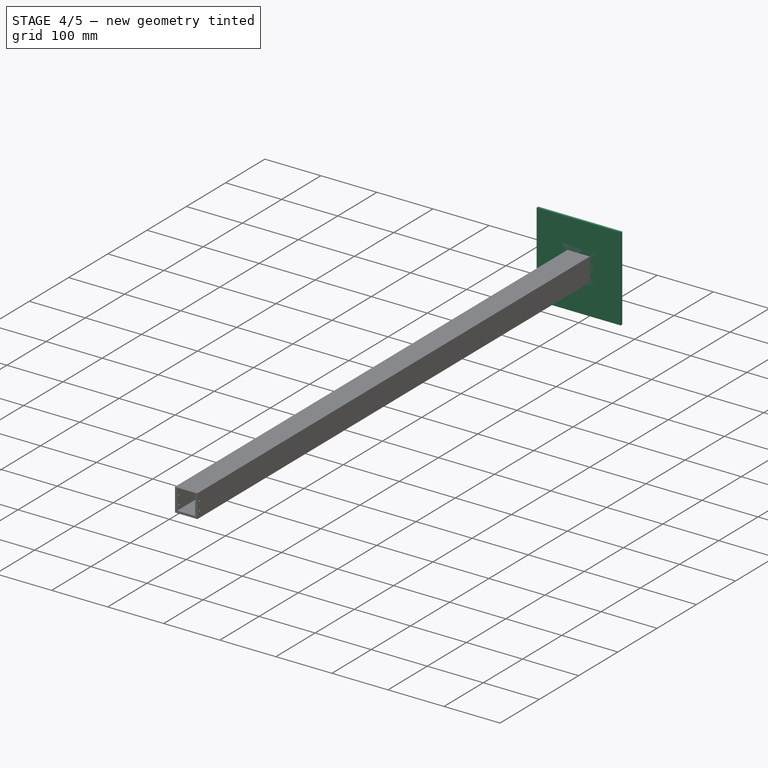
[diagram: stage 4 of 5 — iso view after this stage's code; geometry added in this stage tinted green]
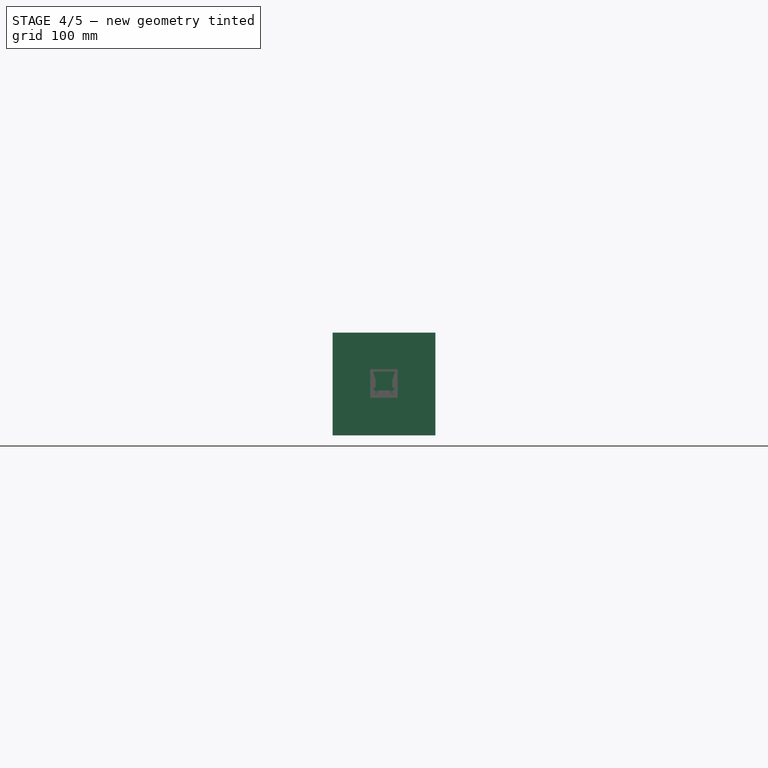
[diagram: stage 4 of 5 — front view after this stage's code; geometry added in this stage tinted green]
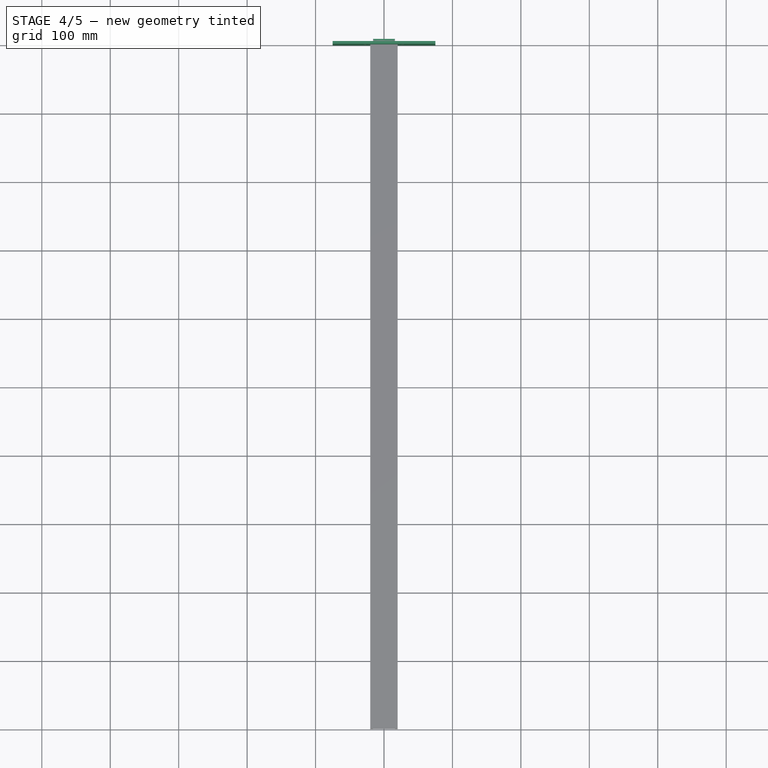
[diagram: stage 4 of 5 — top view after this stage's code; geometry added in this stage tinted green]
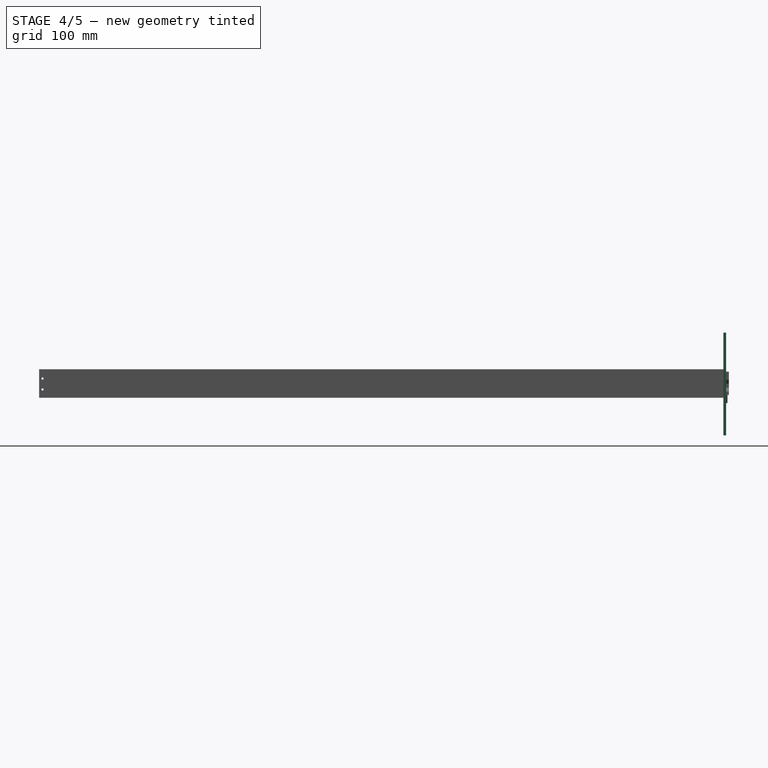
[diagram: stage 4 of 5 — right view after this stage's code; geometry added in this stage tinted green]
FEATURE [PartDesign::Body] Body010  label="Old-sensor-holder"
  AllowCompound = false
  Group = -> [Sketch022,Pad016,Sketch023,Pocket005,Sketch024,Pocket006,Sketch025,Pocket007]
  Origin = -> Origin016
  Placement = pos=(0,-787,0) rot=(0,0,1;0rad)
  Tip = -> Pocket007
FEATURE [Sketcher::SketchObject] Sketch026
  ArcFitTolerance = 0
  AttachmentSupport = -> [XZ_Plane017]
  FullyConstrained = true
  MakeInternals = false
  MapMode = 5
  Placement = pos=(0,0,0) rot=(1,0,0;1.5708rad)
  sketch-geometry (22):
    g0: LineSegment StartX=-16 StartY=4 StartZ=0 EndX=-9.85 EndY=4 EndZ=0
    g1: LineSegment StartX=9.85 StartY=4 StartZ=0 EndX=16 EndY=4 EndZ=0
    g2: LineSegment StartX=16.15 StartY=38 StartZ=0 EndX=-16.15 EndY=38 EndZ=0
    g3: LineSegment StartX=-9.85 StartY=8.6 StartZ=0 EndX=-9 EndY=8.6 EndZ=0
    g4: LineSegment StartX=-9 StartY=8.6 StartZ=0 EndX=-9 EndY=10.6 EndZ=0
    g5: LineSegment StartX=-9 StartY=10.6 StartZ=0 EndX=9 EndY=10.6 EndZ=0
    g6: LineSegment StartX=9 StartY=10.6 StartZ=0 EndX=9 EndY=8.6 EndZ=0
    g7: LineSegment StartX=9 StartY=8.6 StartZ=0 EndX=9.85 EndY=8.6 EndZ=0
    g8: LineSegment StartX=-16 StartY=4 StartZ=0 EndX=-16 EndY=12 EndZ=0
    g9: LineSegment StartX=-16 StartY=12 StartZ=0 EndX=-12.15 EndY=15.85 EndZ=0
    g10: LineSegment StartX=-12.15 StartY=15.85 StartZ=0 EndX=-12.15 EndY=26.3061 EndZ=0
    g11: LineSegment StartX=-12.15 StartY=26.3061 StartZ=0 EndX=-16.15 EndY=30 EndZ=0
    g12: LineSegment StartX=-16.15 StartY=30 StartZ=0 EndX=-16.15 EndY=38 EndZ=0
    g13: LineSegment StartX=16.15 StartY=38 StartZ=0 EndX=16.15 EndY=30 EndZ=0
    g14: LineSegment StartX=16.15 StartY=30 StartZ=0 EndX=12.15 EndY=26.3061 EndZ=0
    g15: LineSegment StartX=12.15 StartY=26.3061 StartZ=0 EndX=12.15 EndY=15.85 EndZ=0
    g16: LineSegment StartX=12.15 StartY=15.85 StartZ=0 EndX=16 EndY=12 EndZ=0
    g17: LineSegment StartX=16 StartY=12 StartZ=0 EndX=16 EndY=4 EndZ=0
    g18: LineSegment StartX=9.85 StartY=8.6 StartZ=0 EndX=9.85 EndY=7 EndZ=0
    g19: LineSegment StartX=9.85 StartY=7 StartZ=0 EndX=9.85 EndY=4 EndZ=0
    g20: LineSegment StartX=-9.85 StartY=8.6 StartZ=0 EndX=-9.85 EndY=7 EndZ=0
    g21: LineSegment StartX=-9.85 StartY=7 StartZ=0 EndX=-9.85 EndY=4 EndZ=0
  constraints (60):
    c: Horizontal(g0)
    c: Horizontal(g1)
    c: Symmetric(g3,g7,g-2)
    c: Symmetric(g2,g2,g-2)
    c: DistanceX(g2,g2) = 32.3
    c: DistanceY(g0,g2) = 34
    c: DistanceY(g0) = 4
    c: DistanceX(g3,g7) = 19.7
    c: Horizontal(g3)
    c: Coincident(g3,g4)
    c: Vertical(g4)
    c: Coincident(g4,g5)
    c: Coincident(g5,g6)
    c: Vertical(g6)
    c: Coincident(g6,g7)
    c: Horizontal(g7)
    c: Symmetric(g4,g5,g-2)
    c: DistanceX(g5,g5) = 18
    c: DistanceY(g1,g7) = 4.6
    c: DistanceY(g4,g4) = 2
    c: Coincident(g0,g8)
    c: Vertical(g8)
    c: Coincident(g8,g9)
    c: Coincident(g9,g10)
    c: Vertical(g10)
    c: Coincident(g10,g11)
    c: Coincident(g11,g12)
    c: Coincident(g12,g2)
    c: Vertical(g12)
    c: Coincident(g2,g13)
    c: Vertical(g13)
    c: Coincident(g13,g14)
    c: Coincident(g14,g15)
    c: Vertical(g15)
    c: Coincident(g15,g16)
    c: Coincident(g16,g17)
    c: Coincident(g17,g1)
    c: Vertical(g17)
    c: Symmetric(g14,g10,g-2)
    c: Equal(g10,g15)
    c: DistanceX(g11,g11) = 4
    c: DistanceY(g8,g8) = 8
    c: DistanceY(g12,g12) = 8
    c: Angle(g8,g9) = 2.35619
    c: Symmetric(g16,g8,g-2)
    c: Equal(g11,g14)
    c: Equal(g14,g16)
    c: DistanceX(g0,g1) = 32
    c: Coincident(g18,g7)
    c: Vertical(g18)
    c: Coincident(g19,g18)
    c: Coincident(g1,g19)
    c: DistanceY(g18,g18) = 1.6
    c: Coincident(g20,g3)
    c: Vertical(g20)
    c: Coincident(g21,g20)
    c: Coincident(g0,g21)
    c: Symmetric(g0,g1,g-2)
    c: Equal(g20,g18)
    c: Vertical(g19)
FEATURE [PartDesign::Pad] Pad017
  Direction = (0,-1,2e-16)
  Length = 10
  Length2 = 10
  Placement = pos=(0,0,0) rot=(1,0,0;1.5708rad)
  Profile = -> Sketch026
  ReferenceAxis = -> Sketch026 [N_Axis]
  Suppressed = false
  Type = 0
FEATURE [Sketcher::SketchObject] Sketch027
  ArcFitTolerance = 0
  AttachmentSupport = -> [Pad017]
  FullyConstrained = true
  MakeInternals = false
  MapMode = 5
  Placement = pos=(0,2.4e-15,10.6) rot=(1,0,0;3.14159rad)
  sketch-geometry (3):
    g0: Circle CenterX=-5 CenterY=5 CenterZ=0 NormalX=0 NormalY=0 NormalZ=1 AngleXU=0 Radius=2.6
    g1: Circle CenterX=5 CenterY=5 CenterZ=0 NormalX=0 NormalY=0 NormalZ=1 AngleXU=0 Radius=2.6
    g2: LineSegment [constr] StartX=-5 StartY=5 StartZ=0 EndX=5 EndY=5 EndZ=0
  constraints (7):
    c: Coincident(g2,g0)
    c: Coincident(g2,g1)
    c: Equal(g0,g1)
    c: Radius(g0) = 2.6
    c: Symmetric(g0,g1,g-2)
    c: DistanceY(g0) = 5
    c: DistanceX(g2,g2) = 10
FEATURE [PartDesign::Pocket] Pocket008
  BaseFeature = -> Pad017
  Direction = (0,0,1)
  Length = 2
  Length2 = 5
  Placement = pos=(0,0,0) rot=(1,0,0;1.5708rad)
  Profile = -> Sketch027
  ReferenceAxis = -> Sketch027 [N_Axis]
  Suppressed = false
  Type = 1
FEATURE [Sketcher::SketchObject] Sketch028
  ArcFitTolerance = 0
  AttachmentSupport = -> [Pocket008]
  ExternalGeometry = -> [Pocket008]
  FullyConstrained = true
  MakeInternals = false
  MapMode = 5
  Placement = pos=(0,2.4e-15,10.6) rot=(1,0,0;3.14159rad)
  sketch-geometry (2):
    g0: Circle CenterX=-5 CenterY=5 CenterZ=0 NormalX=0 NormalY=0 NormalZ=1 AngleXU=0 Radius=3
    g1: Circle CenterX=5 CenterY=5 CenterZ=0 NormalX=0 NormalY=0 NormalZ=1 AngleXU=0 Radius=3
  constraints (4):
    c: Radius(g0) = 3
    c: Equal(g1,g0)
    c: Coincident(g1,g-4)
    c: Coincident(g0,g-3)
FEATURE [PartDesign::Pocket] Pocket009
  BaseFeature = -> Pocket008
  Direction = (0,0,1)
  Length = 10
  Length2 = 5
  Placement = pos=(0,0,0) rot=(1,0,0;1.5708rad)
  Profile = -> Sketch028
  ReferenceAxis = -> Sketch028 [N_Axis]
  Suppressed = false
  Type = 0
FEATURE [PartDesign::Body] Body013  label="Charger-holder-2"
  AllowCompound = false
  Group = -> [Sketch040,Pad020,Sketch041,Pocket016]
  Origin = -> Origin019
  Placement = pos=(0,-171,0) rot=(0,0,1;0rad)
  Tip = -> Pocket016
FEATURE [Sketcher::SketchObject] Sketch042
  ArcFitTolerance = 0
  FullyConstrained = true
  MakeInternals = false
  MapMode = 5
  sketch-geometry (24):
    g0: LineSegment StartX=-16 StartY=-500 StartZ=0 EndX=16 EndY=-500 EndZ=0
    g1: LineSegment StartX=16 StartY=-500 StartZ=0 EndX=16 EndY=0 EndZ=0
    g2: LineSegment StartX=16 StartY=0 StartZ=0 EndX=-16 EndY=0 EndZ=0
    g3: LineSegment StartX=-16 StartY=0 StartZ=0 EndX=-16 EndY=-500 EndZ=0
    g4: LineSegment [constr] StartX=-8 StartY=-5 StartZ=0 EndX=8 EndY=-5 EndZ=0
    g5: Circle CenterX=-8 CenterY=-5 CenterZ=0 NormalX=0 NormalY=0 NormalZ=1 AngleXU=0 Radius=1.6
    g6: Circle CenterX=8 CenterY=-5 CenterZ=0 NormalX=0 NormalY=0 NormalZ=1 AngleXU=0 Radius=1.6
    g7: Circle CenterX=-12 CenterY=-496 CenterZ=0 NormalX=0 NormalY=0 NormalZ=1 AngleXU=0 Radius=1.6
    g8: Circle CenterX=12 CenterY=-496 CenterZ=0 NormalX=0 NormalY=0 NormalZ=1 AngleXU=0 Radius=1.6
    g9: LineSegment [constr] StartX=-12 StartY=-496 StartZ=0 EndX=12 EndY=-496 EndZ=0
    g10: Circle CenterX=0 CenterY=-25 CenterZ=0 NormalX=0 NormalY=0 NormalZ=1 AngleXU=0 Radius=11
    g11: Circle CenterX=-12 CenterY=-90 CenterZ=0 NormalX=0 NormalY=0 NormalZ=1 AngleXU=0 Radius=1.6
    g12: Circle CenterX=12 CenterY=-90 CenterZ=0 NormalX=0 NormalY=0 NormalZ=1 AngleXU=0 Radius=1.6
    g13: Circle CenterX=-12 CenterY=-175 CenterZ=0 NormalX=0 NormalY=0 NormalZ=1 AngleXU=0 Radius=1.6
    g14: Circle CenterX=12 CenterY=-175 CenterZ=0 NormalX=0 NormalY=0 NormalZ=1 AngleXU=0 Radius=1.6
    g15: Circle CenterX=-12 CenterY=-260 CenterZ=0 NormalX=0 NormalY=0 NormalZ=1 AngleXU=0 Radius=1.6
    g16: Circle CenterX=12 CenterY=-260 CenterZ=0 NormalX=0 NormalY=0 NormalZ=1 AngleXU=0 Radius=1.6
    g17: Circle CenterX=-12 CenterY=-350 CenterZ=0 NormalX=0 NormalY=0 NormalZ=1 AngleXU=0 Radius=1.6
    g18: Circle CenterX=12 CenterY=-350 CenterZ=0 NormalX=0 NormalY=0 NormalZ=1 AngleXU=0 Radius=1.6
    g19: Circle CenterX=-12 CenterY=-440 CenterZ=0 NormalX=0 NormalY=0 NormalZ=1 AngleXU=0 Radius=1.6
    g20: Circle CenterX=12 CenterY=-440 CenterZ=0 NormalX=0 NormalY=0 NormalZ=1 AngleXU=0 Radius=1.6
    g21: LineSegment [constr] StartX=-12 StartY=-440 StartZ=0 EndX=12 EndY=-440 EndZ=0
    g22: LineSegment [constr] StartX=-12 StartY=-350 StartZ=0 EndX=12 EndY=-350 EndZ=0
    g23: Circle CenterX=0 CenterY=-200 CenterZ=0 NormalX=0 NormalY=0 NormalZ=1 AngleXU=0 Radius=8.5
  constraints (60):
    c: Coincident(g0,g1)
    c: Coincident(g1,g2)
    c: Coincident(g2,g3)
    c: Coincident(g3,g0)
    c: Horizontal(g2)
    c: Vertical(g1)
    c: Vertical(g3)
    c: Symmetric(g0,g0,g-2)
    c: DistanceY(g1,g1) = 500
    c: DistanceX(g2,g2) = 32
    c: PointOnObject(g2,g-1)
    c: Coincident(g5,g4)
    c: Coincident(g6,g4)
    c: Equal(g6,g5)
    c: Radius(g6) = 1.6
    c: Symmetric(g5,g6,g-2)
    c: DistanceX(g4,g4) = 16
    c: DistanceY(g6) = -5
    c: Equal(g7,g8)
    c: Coincident(g9,g7)
    c: Coincident(g9,g8)
    c: Symmetric(g7,g8,g-2)
    c: DistanceX(g9,g9) = 24
    c: DistanceY(g0,g8) = 4
    c: Equal(g8,g6)
    c: PointOnObject(g10,g-2)
    c: Radius(g10) = 11
    c: DistanceY(g10,g2) = 25
    c: Symmetric(g11,g12,g-2)
    c: Equal(g12,g11)
    c: Radius(g12) = 1.6
    c: DistanceX(g11,g12) = 24
    c: DistanceY(g12,g6) = 85
    c: Equal(g13,g14)
    c: Equal(g14,g11)
    c: Symmetric(g13,g14,g-2)
    c: DistanceX(g13,g14) = 24
    c: DistanceY(g13,g11) = 85
    c: Equal(g16,g15)
    c: Symmetric(g15,g16,g-2)
    c: Radius(g15) = 1.6
    c: DistanceX(g15,g16) = 24
    c: DistanceY(g15,g13) = 85
    c: Coincident(g21,g19)
    c: Coincident(g21,g20)
    c: Coincident(g22,g17)
    c: Coincident(g22,g18)
    c: Symmetric(g19,g20,g-2)
    c: Symmetric(g17,g18,g-2)
    c: Equal(g17,g18)
    c: Equal(g18,g19)
    c: Equal(g19,g20)
    c: Equal(g20,g15)
    c: Equal(g22,g21)
    c: DistanceX(g21,g21) = 24
    c: DistanceY(g19,g17) = 90
    c: DistanceY(g17,g15) = 90
    c: PointOnObject(g23,g-2)
    c: Diameter(g23) = 17
    c: DistanceY(g23,g13) = 25
FEATURE [PartDesign::Pad] Pad021
  Direction = (0,0,1)
  Length = 2
  Length2 = 10
  Profile = -> Sketch042
  ReferenceAxis = -> Sketch042 [N_Axis]
  Suppressed = false
  Type = 0
FEATURE [PartDesign::Body] Body016  label="Charger-holder-003"
  AllowCompound = false
  Group = -> [Sketch043,Pad022,Sketch044,Pocket017]
  Origin = -> Origin022
  Placement = pos=(0,-86,0) rot=(0,0,1;0rad)
  Tip = -> Pocket017
FEATURE [Sketcher::SketchObject] Sketch045
  ArcFitTolerance = 0
  AttachmentOffset = pos=(0,0,38) rot=(0,0,1;0rad)
  AttachmentSupport = -> [XY_Plane023]
  FullyConstrained = true
  MakeInternals = false
  MapMode = 5
  Placement = pos=(0,0,38) rot=(0,0,1;0rad)
  sketch-geometry (4):
    g0: ArcOfCircle CenterX=-6 CenterY=-3.5774e-11 CenterZ=0 NormalX=0 NormalY=0 NormalZ=1 AngleXU=0 Radius=3 StartAngle=1.5708 EndAngle=4.71239
    g1: ArcOfCircle CenterX=-4 CenterY=-1.4404e-12 CenterZ=0 NormalX=0 NormalY=0 NormalZ=1 AngleXU=0 Radius=3 StartAngle=4.71239 EndAngle=7.85398
    g2: LineSegment StartX=-6 StartY=-3 StartZ=0 EndX=-4 EndY=-3 EndZ=0
    g3: LineSegment StartX=-4 StartY=3 StartZ=0 EndX=-6 EndY=3 EndZ=0
  constraints (10):
    c: Tangent(g0,g2) = -1.5708
    c: Tangent(g2,g1) = -1.5708
    c: Tangent(g1,g3) = -1.5708
    c: Tangent(g3,g0) = -1.5708
    c: Equal(g0,g1)
    c: Horizontal(g3)
    c: DistanceX(g3,g3) = 2
    c: Radius(g1) = 3
    c: DistanceX(g1) = -4
    c: PointOnObject(g1,g-1)
FEATURE [Sketcher::SketchObject] Sketch046
  ArcFitTolerance = 0
  AttachmentOffset = pos=(0,0,28) rot=(0,0,1;0rad)
  AttachmentSupport = -> [XY_Plane023]
  FullyConstrained = true
  MakeInternals = false
  MapMode = 5
  Placement = pos=(0,0,28) rot=(0,0,1;0rad)
  sketch-geometry (1):
    g0: Circle CenterX=-5 CenterY=0 CenterZ=0 NormalX=0 NormalY=0 NormalZ=1 AngleXU=0 Radius=2.7
  constraints (3):
    c: PointOnObject(g0,g-1)
    c: DistanceX(g0) = -5
    c: Radius(g0) = 2.7
FEATURE [PartDesign::FeatureBase] BaseFeature
  Suppressed = false
FEATURE [PartDesign::Body] Body017  label="Sensor-fusion-base"
  AllowCompound = false
  Group = -> [BaseFeature,Sketch045,Sketch046]
  Origin = -> Origin023
FEATURE [Part::Loft] Loft001
  Closed = false
  MaxDegree = 5
  Ruled = false
  Sections = -> [Sketch046,Sketch045]
  Solid = true
FEATURE [Part::Mirroring] Part__Mirroring001  label="Loft001 (Mirror #2)"
  Base = (0,0,0)
  Normal = (1,0,0)
  Source = -> Loft001
FEATURE [Part::MultiFuse] Fusion001
  Shapes = -> [Loft001,Part__Mirroring001]
FEATURE [Sketcher::SketchObject] Sketch047
  ArcFitTolerance = 0
  AttachmentSupport = -> [Pocket009]
  FullyConstrained = true
  MakeInternals = false
  MapMode = 5
  Placement = pos=(0,8.4e-15,38) rot=(0,0,1;3.14159rad)
  sketch-geometry (3):
    g0: Circle CenterX=-12 CenterY=5 CenterZ=0 NormalX=0 NormalY=0 NormalZ=1 AngleXU=0 Radius=2
    g1: Circle CenterX=12 CenterY=5 CenterZ=0 NormalX=0 NormalY=0 NormalZ=1 AngleXU=0 Radius=2
    g2: LineSegment [constr] StartX=-12 StartY=5 StartZ=0 EndX=12 EndY=5 EndZ=0
  constraints (7):
    c: Coincident(g2,g0)
    c: Coincident(g2,g1)
    c: Symmetric(g0,g1,g-2)
    c: DistanceX(g2,g2) = 24
    c: Equal(g0,g1)
    c: Radius(g1) = 2
    c: DistanceY(g0) = 5
FEATURE [PartDesign::Pocket] Pocket018
  BaseFeature = -> Pocket009
  Direction = (0,0,-1)
  Length = 8
  Length2 = 5
  Placement = pos=(0,0,0) rot=(1,0,0;1.5708rad)
  Profile = -> Sketch047
  ReferenceAxis = -> Sketch047 [N_Axis]
  Suppressed = false
  Type = 0
FEATURE [PartDesign::Body] Body011
  AllowCompound = false
  Group = -> [Sketch026,Pad017,Sketch027,Pocket008,Sketch028,Pocket009,Sketch047,Pocket018]
  Origin = -> Origin017
  Placement = pos=(0,5,0) rot=(0,0,1;0rad)
  Tip = -> Pocket018
FEATURE [Part::Cut] Cut  label="Sensor-holder"
  Base = -> Body011
  Placement = pos=(0,-221.33,0) rot=(0,0,1;0rad)
  Tool = -> Fusion001
FEATURE [Part::FeaturePython] Array001  label="Sensor-holder-array"  # Draft array (typed FeaturePython)
  AlwaysSyncPlacement = false
  Angle = 360
  ArrayType = 0
  Axis = (0,0,1)
  Base = -> Cut
  Center = (0,0,0)
  Count = 7
  ExpandArray = false
  Fuse = false
  IntervalAxis = (0,0,0)
  IntervalX = (100,0,0)
  IntervalY = (0,90,0)
  IntervalZ = (0,0,100)
  NumberCircles = 3
  NumberPolar = 5
  NumberX = 1
  NumberY = 7
  NumberZ = 1
  Placement = pos=(0,-586.5,0) rot=(0,0,1;0rad)
  PlacementList = 7 placements: arithmetic series from (0,-221.33,0) step (0,90,0) to (0,318.67,0)
  RadialDistance = 50
  ScaleList = (7) [(1,1,1),(1,1,1),(1,1,1),(1,1,1),(1,1,1),(1,1,1),(1,1,1)]
  Symmetry = 1
  TangentialDistance = 25
FEATURE [Sketcher::SketchObject] Sketch048
  ArcFitTolerance = 0
  FullyConstrained = true
  MakeInternals = false
  MapMode = 5
  sketch-geometry (22):
    g0: LineSegment StartX=-16 StartY=-500 StartZ=0 EndX=16 EndY=-500 EndZ=0
    g1: LineSegment StartX=16 StartY=-500 StartZ=0 EndX=16 EndY=0 EndZ=0
    g2: LineSegment StartX=16 StartY=0 StartZ=0 EndX=-16 EndY=0 EndZ=0
    g3: LineSegment StartX=-16 StartY=0 StartZ=0 EndX=-16 EndY=-500 EndZ=0
    g4: LineSegment [constr] StartX=-8 StartY=-5 StartZ=0 EndX=8 EndY=-5 EndZ=0
    g5: Circle CenterX=-8 CenterY=-5 CenterZ=0 NormalX=0 NormalY=0 NormalZ=1 AngleXU=0 Radius=1.6
    g6: Circle CenterX=8 CenterY=-5 CenterZ=0 NormalX=0 NormalY=0 NormalZ=1 AngleXU=0 Radius=1.6
    g7: Circle CenterX=-12 CenterY=-496 CenterZ=0 NormalX=0 NormalY=0 NormalZ=1 AngleXU=0 Radius=1.6
    g8: Circle CenterX=12 CenterY=-496 CenterZ=0 NormalX=0 NormalY=0 NormalZ=1 AngleXU=0 Radius=1.6
    g9: LineSegment [constr] StartX=-12 StartY=-496 StartZ=0 EndX=12 EndY=-496 EndZ=0
    g10: LineSegment [constr] StartX=-12 StartY=-380 StartZ=0 EndX=12 EndY=-380 EndZ=0
    g11: Circle CenterX=-12 CenterY=-380 CenterZ=0 NormalX=0 NormalY=0 NormalZ=1 AngleXU=0 Radius=1.6
    g12: Circle CenterX=12 CenterY=-380 CenterZ=0 NormalX=0 NormalY=0 NormalZ=1 AngleXU=0 Radius=1.6
    g13: LineSegment [constr] StartX=-12 StartY=-290 StartZ=0 EndX=12 EndY=-290 EndZ=0
    g14: LineSegment [constr] StartX=-12 StartY=-200 StartZ=0 EndX=12 EndY=-200 EndZ=0
    g15: Circle CenterX=-12 CenterY=-200 CenterZ=0 NormalX=0 NormalY=0 NormalZ=1 AngleXU=0 Radius=1.6
    g16: Circle CenterX=12 CenterY=-200 CenterZ=0 NormalX=0 NormalY=0 NormalZ=1 AngleXU=0 Radius=1.6
    g17: Circle CenterX=12 CenterY=-290 CenterZ=0 NormalX=0 NormalY=0 NormalZ=1 AngleXU=0 Radius=1.6
    g18: Circle CenterX=-12 CenterY=-290 CenterZ=0 NormalX=0 NormalY=0 NormalZ=1 AngleXU=0 Radius=1.6
    g19: Circle CenterX=-12 CenterY=-470 CenterZ=0 NormalX=0 NormalY=0 NormalZ=1 AngleXU=0 Radius=1.6
    g20: Circle CenterX=12 CenterY=-470 CenterZ=0 NormalX=0 NormalY=0 NormalZ=1 AngleXU=0 Radius=1.6
    g21: LineSegment [constr] StartX=-12 StartY=-470 StartZ=0 EndX=12 EndY=-470 EndZ=0
  constraints (53):
    c: Coincident(g0,g1)
    c: Coincident(g1,g2)
    c: Coincident(g2,g3)
    c: Coincident(g3,g0)
    c: Horizontal(g2)
    c: Vertical(g1)
    c: Vertical(g3)
    c: Symmetric(g0,g0,g-2)
    c: DistanceY(g1,g1) = 500
    c: DistanceX(g2,g2) = 32
    c: PointOnObject(g2,g-1)
    c: Coincident(g5,g4)
    c: Coincident(g6,g4)
    c: Equal(g6,g5)
    c: Radius(g6) = 1.6
    c: Symmetric(g5,g6,g-2)
    c: DistanceX(g4,g4) = 16
    c: DistanceY(g6) = -5
    c: Equal(g7,g8)
    c: Coincident(g9,g7)
    c: Coincident(g9,g8)
    c: Symmetric(g7,g8,g-2)
    c: DistanceX(g9,g9) = 24
    c: DistanceY(g0,g8) = 4
    c: Equal(g8,g6)
    c: Coincident(g11,g10)
    c: Coincident(g12,g10)
    c: Equal(g11,g12)
    c: Equal(g10,g9)
    c: Symmetric(g11,g12,g-2)
    c: Symmetric(g13,g13,g-2)
    c: Symmetric(g14,g14,g-2)
    c: Equal(g14,g13)
    c: Equal(g13,g10)
    c: DistanceY(g11,g13) = 90
    c: DistanceY(g13,g14) = 90
    c: DistanceY(g14,g5) = 195
    c: Coincident(g15,g14)
    c: Coincident(g16,g14)
    c: Coincident(g17,g13)
    c: Coincident(g18,g13)
    c: Equal(g15,g16)
    c: Equal(g16,g18)
    c: Equal(g18,g17)
    c: Equal(g17,g11)
    c: Equal(g19,g20)
    c: Equal(g20,g11)
    c: Coincident(g21,g19)
    c: Coincident(g21,g20)
    c: Symmetric(g19,g20,g-2)
    c: Equal(g21,g10)
    c: DistanceY(g19,g11) = 90
    c: Diameter(g20) = 3.2
FEATURE [PartDesign::Pad] Pad024
  Direction = (0,0,1)
  Length = 2
  Length2 = 10
  Profile = -> Sketch048
  ReferenceAxis = -> Sketch048 [N_Axis]
  Suppressed = false
  Type = 0
FEATURE [PartDesign::Body] Body018  label="Acrylic-front-top"
  AllowCompound = false
  Group = -> [Sketch048,Pad024]
  Origin = -> Origin024
  Placement = pos=(0,-1000,38) rot=(0,0,1;3.14159rad)
  Tip = -> Pad024
FEATURE [Part::Part2DObjectPython] Shape2DView  # Draft 2D object (typed FeaturePython)
  AutoUpdate = true
  Base = -> Pad021
  Clip = false
  FaceNumbers = [16]
  FuseArch = false
  HiddenLines = false
  InPlace = true
  OnlySolids = false
  Placement = pos=(-60,0,0) rot=(0,0,1;0rad)
  Projection = (0,0,1)
  ProjectionMode = 0
  SegmentLength = 0.05
  Tessellation = false
  VisibleOnly = false
FEATURE [Part::Part2DObjectPython] Shape2DView002  # Draft 2D object (typed FeaturePython)
  AutoUpdate = true
  Base = -> Pad024
  Clip = false
  FaceNumbers = [13]
  FuseArch = false
  HiddenLines = false
  InPlace = true
  OnlySolids = false
  Placement = pos=(-143,0,0) rot=(0,0,1;0rad)
  Projection = (0,0,1)
  ProjectionMode = 0
  SegmentLength = 0.05
  Tessellation = false
  VisibleOnly = false
FEATURE [Sketcher::SketchObject] Sketch049
  ArcFitTolerance = 0
  AttachmentSupport = -> [XZ_Plane025]
  FullyConstrained = true
  MakeInternals = false
  MapMode = 5
  Placement = pos=(0,0,0) rot=(1,0,0;1.5708rad)
  sketch-geometry (12):
    g0: LineSegment StartX=-75 StartY=95 StartZ=0 EndX=75 EndY=95 EndZ=0
    g1: LineSegment StartX=75 StartY=95 StartZ=0 EndX=75 EndY=-55 EndZ=0
    g2: LineSegment StartX=75 StartY=-55 StartZ=0 EndX=-75 EndY=-55 EndZ=0
    g3: LineSegment StartX=-75 StartY=-55 StartZ=0 EndX=-75 EndY=95 EndZ=0
    g4: Circle CenterX=-12.5 CenterY=7.5 CenterZ=0 NormalX=0 NormalY=0 NormalZ=1 AngleXU=0 Radius=1.6
    g5: Circle CenterX=-12.5 CenterY=32.5 CenterZ=0 NormalX=0 NormalY=0 NormalZ=1 AngleXU=0 Radius=1.6
    g6: Circle CenterX=12.5 CenterY=32.5 CenterZ=0 NormalX=0 NormalY=0 NormalZ=1 AngleXU=0 Radius=1.6
    g7: Circle CenterX=12.5 CenterY=7.5 CenterZ=0 NormalX=0 NormalY=0 NormalZ=1 AngleXU=0 Radius=1.6
    g8: LineSegment [constr] StartX=-12.5 StartY=32.5 StartZ=0 EndX=12.5 EndY=32.5 EndZ=0
    g9: LineSegment [constr] StartX=12.5 StartY=32.5 StartZ=0 EndX=12.5 EndY=7.5 EndZ=0
    g10: LineSegment [constr] StartX=12.5 StartY=7.5 StartZ=0 EndX=-12.5 EndY=7.5 EndZ=0
    g11: LineSegment [constr] StartX=-12.5 StartY=7.5 StartZ=0 EndX=-12.5 EndY=32.5 EndZ=0
  constraints (30):
    c: Coincident(g0,g1)
    c: Coincident(g1,g2)
    c: Coincident(g2,g3)
    c: Coincident(g3,g0)
    c: Horizontal(g2)
    c: Vertical(g1)
    c: Vertical(g3)
    c: Equal(g3,g0)
    c: DistanceY(g3,g3) = 150
    c: Symmetric(g0,g0,g-2)
    c: DistanceY(g0) = 95
    c: Equal(g5,g6)
    c: Equal(g6,g7)
    c: Equal(g7,g4)
    c: Coincident(g8,g9)
    c: Coincident(g9,g10)
    c: Coincident(g10,g11)
    c: Coincident(g11,g8)
    c: Horizontal(g10)
    c: Vertical(g9)
    c: Vertical(g11)
    c: Coincident(g8,g5)
    c: Coincident(g9,g7)
    c: Coincident(g6,g8)
    c: Coincident(g4,g10)
    c: Equal(g11,g8)
    c: Symmetric(g5,g6,g-2)
    c: DistanceX(g8,g8) = 25
    c: Radius(g5) = 1.6
    c: DistanceY(g4) = 7.5
FEATURE [PartDesign::Pad] Pad025
  Direction = (0,-1,2e-16)
  Length = 4
  Length2 = 10
  Placement = pos=(0,0,0) rot=(1,0,0;1.5708rad)
  Profile = -> Sketch049
  ReferenceAxis = -> Sketch049 [N_Axis]
  Reversed = true
  Suppressed = false
  Type = 0
FEATURE [PartDesign::Body] Body019  label="Acrylic-base"
  AllowCompound = false
  Group = -> [Sketch049,Pad025]
  Origin = -> Origin025
  Placement = pos=(0,2,0) rot=(0,0,1;0rad)
  Tip = -> Pad025
FEATURE [Part::Part2DObjectPython] Shape2DView003  # Draft 2D object (typed FeaturePython)
  AutoUpdate = true
  Base = -> Pad025
  Clip = false
  FuseArch = false
  HiddenLines = false
  InPlace = true
  OnlySolids = false
  Placement = pos=(-238,-80,0) rot=(0,0,1;0rad)
  Projection = (0,-1,0)
  ProjectionMode = 0
  SegmentLength = 0.05
  Tessellation = false
  VisibleOnly = false
FEATURE [App::DocumentObjectGroup] Group  label="DXF-Export"
  Group = -> [Shape2DView,Shape2DView002,Shape2DView003]
FEATURE [Sketcher::SketchObject] Sketch050
  ArcFitTolerance = 0
  AttachmentSupport = -> [XZ_Plane026]
  FullyConstrained = true
  MakeInternals = false
  MapMode = 5
  Placement = pos=(0,0,0) rot=(1,0,0;1.5708rad)
  sketch-geometry (12):
    g0: LineSegment StartX=-16 StartY=38 StartZ=0 EndX=16 EndY=38 EndZ=0
    g1: LineSegment StartX=16 StartY=38 StartZ=0 EndX=16 EndY=26 EndZ=0
    g2: LineSegment StartX=-16 StartY=26 StartZ=0 EndX=-16 EndY=38 EndZ=0
    g3: LineSegment StartX=-16 StartY=26 StartZ=0 EndX=-12 EndY=20.5 EndZ=0
    g4: LineSegment StartX=-12 StartY=20.5 StartZ=0 EndX=-12 EndY=14.5 EndZ=0
    g5: LineSegment StartX=-12 StartY=14.5 StartZ=0 EndX=-16 EndY=9 EndZ=0
    g6: LineSegment StartX=-16 StartY=9 StartZ=0 EndX=-16 EndY=4 EndZ=0
    g7: LineSegment StartX=-16 StartY=4 StartZ=0 EndX=16 EndY=4 EndZ=0
    g8: LineSegment StartX=16 StartY=4 StartZ=0 EndX=16 EndY=9 EndZ=0
    g9: LineSegment StartX=16 StartY=9 StartZ=0 EndX=12 EndY=14.5 EndZ=0
    g10: LineSegment StartX=12 StartY=14.5 StartZ=0 EndX=12 EndY=20.5 EndZ=0
    g11: LineSegment StartX=12 StartY=20.5 StartZ=0 EndX=16 EndY=26 EndZ=0
  constraints (32):
    c: Coincident(g0,g1)
    c: Coincident(g2,g0)
    c: Vertical(g1)
    c: Vertical(g2)
    c: Symmetric(g0,g0,g-2)
    c: DistanceX(g0,g0) = 32
    c: DistanceY(g1,g1) = 12
    c: DistanceY(g0) = 38
    c: Coincident(g2,g3)
    c: Coincident(g3,g4)
    c: Vertical(g4)
    c: Coincident(g4,g5)
    c: Coincident(g5,g6)
    c: Coincident(g6,g7)
    c: Horizontal(g7)
    c: Coincident(g7,g8)
    c: Vertical(g8)
    c: Coincident(g8,g9)
    c: Coincident(g9,g10)
    c: Coincident(g10,g11)
    c: Coincident(g11,g1)
    c: Symmetric(g3,g10,g-2)
    c: DistanceX(g2,g3) = 4
    c: Vertical(g6)
    c: Symmetric(g5,g8,g-2)
    c: DistanceX(g7,g7) = 32
    c: Symmetric(g4,g9,g-2)
    c: Equal(g11,g9)
    c: Equal(g5,g3)
    c: DistanceY(g6,g6) = 5
    c: DistanceY(g7,g0) = 34
    c: DistanceY(g4,g4) = 6
FEATURE [PartDesign::Pad] Pad026
  Direction = (0,-1,2e-16)
  Length = 16
  Length2 = 10
  Midplane = true
  Placement = pos=(0,0,0) rot=(1,0,0;1.5708rad)
  Profile = -> Sketch050
  ReferenceAxis = -> Sketch050 [N_Axis]
  Suppressed = false
  Type = 0
FEATURE [Sketcher::SketchObject] Sketch051
  ArcFitTolerance = 0
  AttachmentSupport = -> [Pad026]
  FullyConstrained = true
  MakeInternals = false
  MapMode = 5
  Placement = pos=(0,8.4e-15,38) rot=(0,0,1;3.14159rad)
  sketch-geometry (8):
    g0: LineSegment [constr] StartX=-12 StartY=4 StartZ=0 EndX=12 EndY=4 EndZ=0
    g1: LineSegment [constr] StartX=12 StartY=4 StartZ=0 EndX=12 EndY=-4 EndZ=0
    g2: LineSegment [constr] StartX=12 StartY=-4 StartZ=0 EndX=-12 EndY=-4 EndZ=0
    g3: LineSegment [constr] StartX=-12 StartY=-4 StartZ=0 EndX=-12 EndY=4 EndZ=0
    g4: Circle CenterX=-12 CenterY=4 CenterZ=0 NormalX=0 NormalY=0 NormalZ=1 AngleXU=0 Radius=2
    g5: Circle CenterX=-12 CenterY=-4 CenterZ=0 NormalX=0 NormalY=0 NormalZ=1 AngleXU=0 Radius=2
    g6: Circle CenterX=12 CenterY=-4 CenterZ=0 NormalX=0 NormalY=0 NormalZ=1 AngleXU=0 Radius=2
    g7: Circle CenterX=12 CenterY=4 CenterZ=0 NormalX=0 NormalY=0 NormalZ=1 AngleXU=0 Radius=2
  constraints (18):
    c: Coincident(g0,g1)
    c: Coincident(g1,g2)
    c: Coincident(g2,g3)
    c: Coincident(g3,g0)
    c: Horizontal(g2)
    c: Vertical(g1)
    c: Coincident(g4,g0)
    c: Coincident(g5,g2)
    c: Coincident(g6,g1)
    c: Coincident(g7,g0)
    c: Equal(g6,g7)
    c: Equal(g7,g4)
    c: Equal(g4,g5)
    c: Symmetric(g5,g4,g-1)
    c: Symmetric(g4,g7,g-2)
    c: Radius(g6) = 2
    c: DistanceX(g2,g2) = 24
    c: DistanceY(g3,g3) = 8
FEATURE [PartDesign::Pocket] Pocket019
  BaseFeature = -> Pad026
  Direction = (0,0,-1)
  Length = 8
  Length2 = 5
  Placement = pos=(0,0,0) rot=(1,0,0;1.5708rad)
  Profile = -> Sketch051
  ReferenceAxis = -> Sketch051 [N_Axis]
  Suppressed = false
  Type = 0
FEATURE [Sketcher::SketchObject] Sketch052
  ArcFitTolerance = 0
  AttachmentSupport = -> [Pocket019]
  ExternalGeometry = -> [Pocket019]
  FullyConstrained = true
  MakeInternals = false
  MapMode = 5
  Placement = pos=(-16,0,0) rot=(0.707107,0,-0.707107;3.14159rad)
  sketch-geometry (1):
    g0: Circle CenterX=-32 CenterY=0 CenterZ=0 NormalX=0 NormalY=0 NormalZ=1 AngleXU=0 Radius=2
  constraints (3):
    c: PointOnObject(g0,g-1)
    c: Radius(g0) = 2
    c: DistanceX(g-3,g0) = 6
FEATURE [PartDesign::Pocket] Pocket020
  BaseFeature = -> Pocket019
  Direction = (1,0,2e-16)
  Length = 8
  Length2 = 5
  Placement = pos=(0,0,0) rot=(1,0,0;1.5708rad)
  Profile = -> Sketch052
  ReferenceAxis = -> Sketch052 [N_Axis]
  Suppressed = false
  Type = 0
FEATURE [PartDesign::Mirrored] Mirrored001
  BaseFeature = -> Pocket020
  MirrorPlane = -> YZ_Plane026
  Originals = -> [Pocket020]
  Placement = pos=(0,0,0) rot=(1,0,0;1.5708rad)
  Suppressed = false
  TransformMode = 0
FEATURE [PartDesign::Body] Body020  label="ABS-Joint"
  AllowCompound = false
  Group = -> [Sketch050,Pad026,Sketch051,Pocket019,Sketch052,Pocket020,Mirrored001]
  Origin = -> Origin026
  Placement = pos=(0,-500,0) rot=(0,0,1;3.14159rad)
  Tip = -> Mirrored001
FEATURE [Sketcher::SketchObject] Sketch053
  ArcFitTolerance = 0
  AttachmentSupport = -> [XZ_Plane027]
  FullyConstrained = true
  MakeInternals = false
  MapMode = 5
  Placement = pos=(0,0,0) rot=(1,0,0;1.5708rad)
  sketch-geometry (4):
    g0: LineSegment StartX=-7.5 StartY=7.5 StartZ=0 EndX=7.5 EndY=7.5 EndZ=0
    g1: LineSegment StartX=7.5 StartY=7.5 StartZ=0 EndX=7.5 EndY=-7.5 EndZ=0
    g2: LineSegment StartX=7.5 StartY=-7.5 StartZ=0 EndX=-7.5 EndY=-7.5 EndZ=0
    g3: LineSegment StartX=-7.5 StartY=-7.5 StartZ=0 EndX=-7.5 EndY=7.5 EndZ=0
  constraints (10):
    c: Coincident(g0,g1)
    c: Coincident(g1,g2)
    c: Coincident(g2,g3)
    c: Coincident(g3,g0)
    c: Horizontal(g0)
    c: Vertical(g3)
    c: Equal(g0,g1)
    c: DistanceX(g0,g0) = 15
    c: Symmetric(g1,g0,g-1)
    c: Symmetric(g1,g2,g-2)
FEATURE [PartDesign::Pad] Pad027
  Direction = (0,-1,2e-16)
  Length = 6
  Length2 = 10
  Placement = pos=(0,0,0) rot=(1,0,0;1.5708rad)
  Profile = -> Sketch053
  ReferenceAxis = -> Sketch053 [N_Axis]
  Reversed = true
  Suppressed = false
  Type = 0
FEATURE [PartDesign::Draft] Draft
  Angle = 20
  Base = -> Pad027 [Face2,Face1,Face4,Face3]
  BaseFeature = -> Pad027
  NeutralPlane = -> Pad027 [Face6]
  Placement = pos=(0,0,0) rot=(1,0,0;1.5708rad)
  SupportTransform = false
  Suppressed = false
FEATURE [PartDesign::Body] Body021  label="Rubber-Feet"
  AllowCompound = false
  Group = -> [Sketch053,Pad027,Draft]
  Origin = -> Origin027
  Placement = pos=(-65,6,-45) rot=(0,0,1;0rad)
  Tip = -> Draft
FEATURE [Sketcher::SketchObject] Sketch054
  ArcFitTolerance = 0
  AttachmentSupport = -> [XY_Plane028]
  FullyConstrained = true
  MakeInternals = false
  MapMode = 5
  sketch-geometry (8):
    g0: LineSegment StartX=-10 StartY=-224.33 StartZ=0 EndX=10 EndY=-224.33 EndZ=0
    g1: LineSegment StartX=10 StartY=-224.33 StartZ=0 EndX=10 EndY=-234.33 EndZ=0
    g2: LineSegment StartX=10 StartY=-234.33 StartZ=0 EndX=-10 EndY=-234.33 EndZ=0
    g3: LineSegment StartX=-10 StartY=-234.33 StartZ=0 EndX=-10 EndY=-224.33 EndZ=0
    g4: ArcOfCircle CenterX=-6 CenterY=-229.33 CenterZ=0 NormalX=0 NormalY=0 NormalZ=1 AngleXU=0 Radius=2 StartAngle=1.5708 EndAngle=4.71239
    g5: ArcOfCircle CenterX=6 CenterY=-229.33 CenterZ=0 NormalX=0 NormalY=0 NormalZ=1 AngleXU=0 Radius=2 StartAngle=4.71239 EndAngle=7.85398
    g6: LineSegment StartX=-6 StartY=-231.33 StartZ=0 EndX=6 EndY=-231.33 EndZ=0
    g7: LineSegment StartX=6 StartY=-227.33 StartZ=0 EndX=-6 EndY=-227.33 EndZ=0
  constraints (20):
    c: Coincident(g0,g1)
    c: Coincident(g1,g2)
    c: Coincident(g2,g3)
    c: Coincident(g3,g0)
    c: Horizontal(g0)
    c: Vertical(g1)
    c: Vertical(g3)
    c: Symmetric(g1,g2,g-2)
    c: DistanceX(g2,g2) = 20
    c: Tangent(g4,g6) = -1.5708
    c: Tangent(g6,g5) = -1.5708
    c: Tangent(g5,g7) = -1.5708
    c: Tangent(g7,g4) = -1.5708
    c: Equal(g4,g5)
    c: Symmetric(g4,g5,g-2)
    c: DistanceY(g3,g3) = 10
    c: DistanceX(g6,g6) = 12
    c: DistanceY(g1,g5) = 5
    c: Radius(g5) = 2
    c: DistanceY(g0) = -224.33
FEATURE [PartDesign::Pad] Pad028
  Direction = (0,0,1)
  Length = 3
  Length2 = 10
  Profile = -> Sketch054
  ReferenceAxis = -> Sketch054 [N_Axis]
  Suppressed = false
  Type = 0
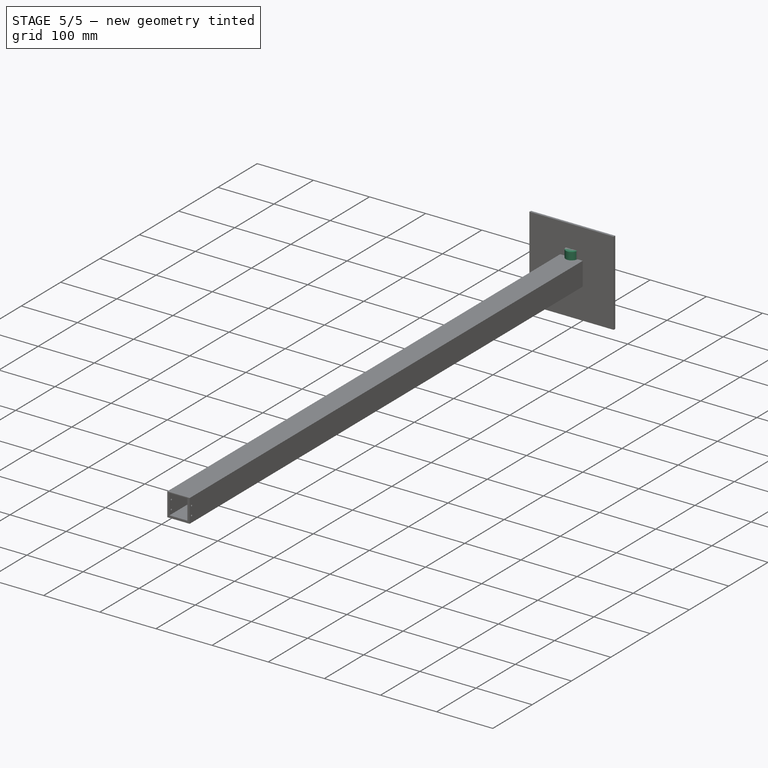
[diagram: stage 5 of 5 — iso view after this stage's code; geometry added in this stage tinted green]
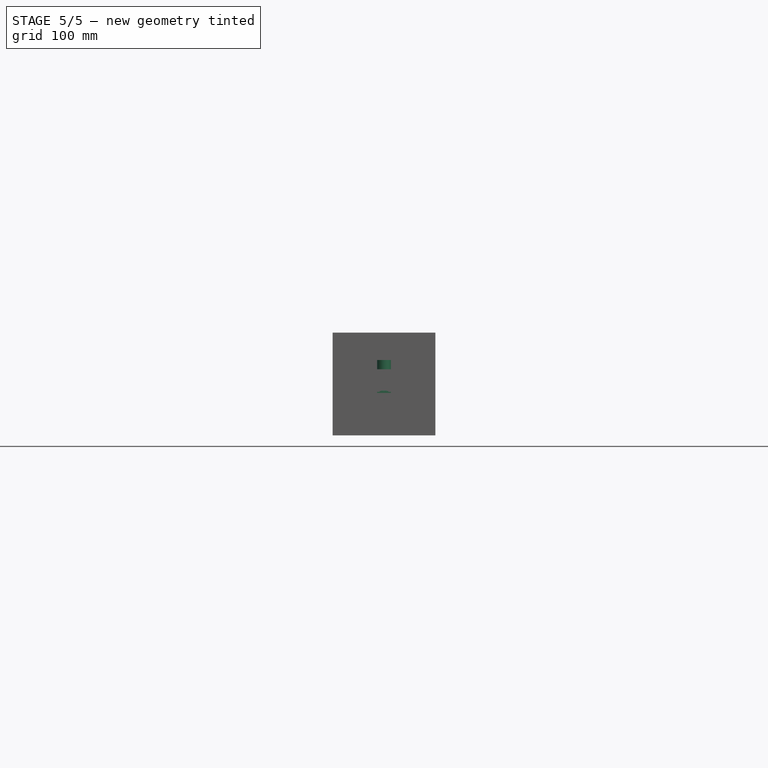
[diagram: stage 5 of 5 — front view after this stage's code; geometry added in this stage tinted green]
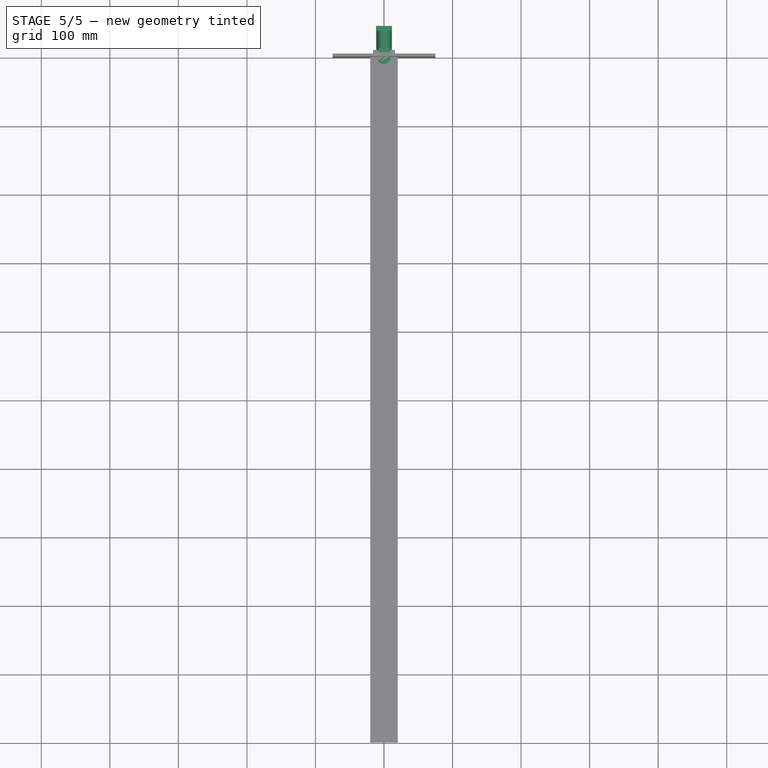
[diagram: stage 5 of 5 — top view after this stage's code; geometry added in this stage tinted green]
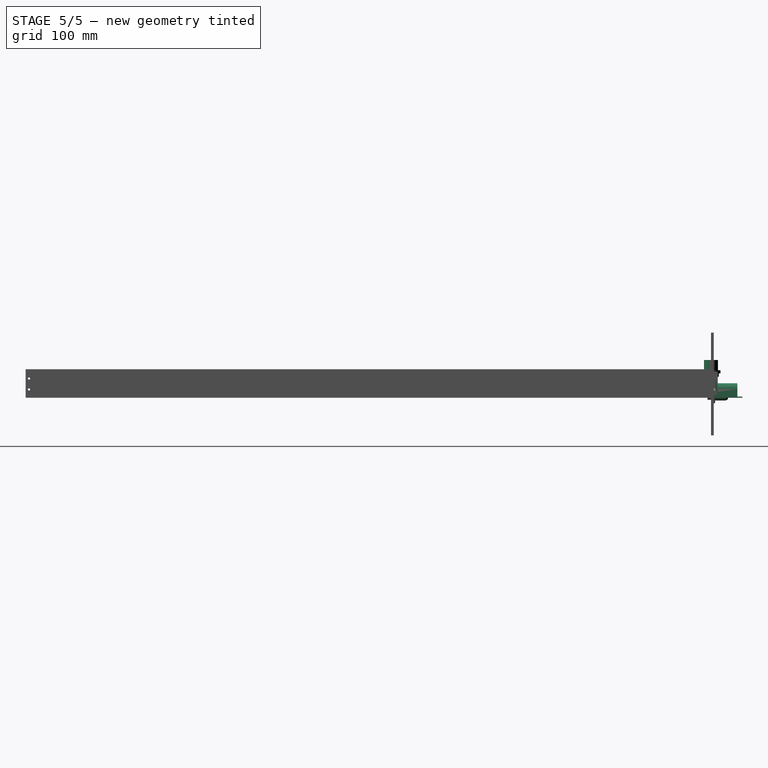
[diagram: stage 5 of 5 — right view after this stage's code; geometry added in this stage tinted green]
FEATURE [PartDesign::Body] Body001  label="Acrylic-full"
  AllowCompound = false
  Group = -> [Sketch001,Pad001]
  Origin = -> Origin001
  Tip = -> Pad001
FEATURE [Part::Feature] Part__Feature  label="SOLID"
  shape: bbox 6 x 8.7 x 1.75 mm, 246 faces (baked)
FEATURE [App::Part] SOIC_14_3_9x8_7mm_P1_27mm  label="SOIC-14_3.9x8.7mm_P1.27mm"
  Group = -> [Part__Feature]
  Origin = -> Origin002
  Placement = pos=(75.625,-60,1.65) rot=(0,0,1;0rad)
FEATURE [Part::Feature] Part__Feature001  label="SOLID001"
  shape: bbox 3.2 x 2.5 x 1.1 mm, 50 faces (baked)
FEATURE [App::Part] LED_1210_3225Metric
  Group = -> [Part__Feature001]
  Origin = -> Origin003
  Placement = pos=(59,-65,1.65) rot=(0,0,1;1.5708rad)
FEATURE [Part::Feature] Part__Feature002  label="SOLID002"
  shape: bbox 3.2 x 2.5 x 1.1 mm, 50 faces (baked)
FEATURE [App::Part] LED_1210_3225Metric001
  Group = -> [Part__Feature002]
  Origin = -> Origin004
  Placement = pos=(59,-55,1.65) rot=(0,0,1;1.5708rad)
FEATURE [Part::Feature] Part__Feature003  label="IR-sensor PCB"
  shape: bbox 52.5 x 20 x 1.6 mm, 10 faces (baked)
FEATURE [App::Part] IR_sensor_1  label="IR-sensor 1"
  Group = -> [SOIC_14_3_9x8_7mm_P1_27mm,LED_1210_3225Metric,LED_1210_3225Metric001,Part__Feature003]
  Origin = -> Origin005
  Placement = pos=(60,-110,6) rot=(0,0,1;-1.5708rad)
FEATURE [Part::FeaturePython] Array  label="PCB-Sensor-Array"  # Draft array (typed FeaturePython)
  AlwaysSyncPlacement = false
  Angle = 360
  ArrayType = 0
  Axis = (0,0,1)
  Base = -> IR_sensor_1
  Center = (0,0,0)
  Count = 7
  ExpandArray = false
  Fuse = false
  IntervalAxis = (0,0,0)
  IntervalX = (66,0,0)
  IntervalY = (0,-90,0)
  IntervalZ = (0,0,100)
  NumberCircles = 3
  NumberPolar = 5
  NumberX = 1
  NumberY = 7
  NumberZ = 1
  Placement = pos=(0,-90,1) rot=(0,0,1;0rad)
  PlacementList = 7 placements: arithmetic series from (60,-110,6) step (0,-90,0) to (60,-650,6)
  RadialDistance = 50
  ScaleList = (7) [(1,1,1),(1,1,1),(1,1,1),(1,1,1),(1,1,1),(1,1,1),(1,1,1)]
  Symmetry = 1
  TangentialDistance = 25
FEATURE [Sketcher::SketchObject] Sketch003
  ArcFitTolerance = 0
  AttachmentSupport = -> [XZ_Plane009]
  FullyConstrained = true
  MakeInternals = false
  MapMode = 5
  Placement = pos=(0,0,0) rot=(1,0,0;1.5708rad)
  sketch-geometry (7):
    g0: LineSegment StartX=-20 StartY=40 StartZ=0 EndX=20 EndY=40 EndZ=0
    g1: LineSegment StartX=20 StartY=40 StartZ=0 EndX=20 EndY=0 EndZ=0
    g2: LineSegment StartX=20 StartY=0 StartZ=0 EndX=-20 EndY=0 EndZ=0
    g3: LineSegment StartX=-20 StartY=0 StartZ=0 EndX=-20 EndY=40 EndZ=0
    g4: Circle CenterX=0 CenterY=20 CenterZ=0 NormalX=0 NormalY=0 NormalZ=1 AngleXU=0 Radius=2.05
    g5: LineSegment [constr] StartX=0 StartY=20 StartZ=0 EndX=20 EndY=40 EndZ=0
    g6: LineSegment [constr] StartX=0 StartY=20 StartZ=0 EndX=20 EndY=0 EndZ=0
  constraints (18):
    c: Horizontal(g2)
    c: Vertical(g1)
    c: Vertical(g3)
    c: DistanceY(g2,g0) = 40
    c: DistanceX(g3,g1) = 40
    c: PointOnObject(g4,g-2)
    c: Coincident(g5,g4)
    c: Coincident(g6,g4)
    c: Equal(g6,g5)
    c: Diameter(g4) = 4.1
    c: Symmetric(g0,g0,g-2)
    c: Coincident(g0,g3)
    c: Coincident(g0,g1)
    c: Coincident(g0,g5)
    c: Coincident(g1,g2)
    c: Coincident(g1,g6)
    c: Coincident(g2,g3)
    c: PointOnObject(g1,g-1)
FEATURE [PartDesign::Pad] Pad003
  Direction = (0,-1,2e-16)
  Length = 2
  Length2 = 10
  Placement = pos=(0,0,0) rot=(1,0,0;1.5708rad)
  Profile = -> Sketch003
  ReferenceAxis = -> Sketch003 [N_Axis]
  Suppressed = false
  Type = 0
FEATURE [Sketcher::SketchObject] Sketch004
  ArcFitTolerance = 0
  AttachmentSupport = -> [XY_Plane010]
  FullyConstrained = true
  MakeInternals = false
  MapMode = 5
  sketch-geometry (6):
    g0: ArcOfCircle CenterX=0 CenterY=21 CenterZ=0 NormalX=0 NormalY=0 NormalZ=1 AngleXU=0 Radius=4 StartAngle=5e-16 EndAngle=1.5708
    g1: LineSegment StartX=4 StartY=21 StartZ=0 EndX=4 EndY=2 EndZ=0
    g2: LineSegment StartX=4 StartY=2 StartZ=0 EndX=3 EndY=2 EndZ=0
    g3: LineSegment StartX=3 StartY=2 StartZ=0 EndX=3 EndY=-5 EndZ=0
    g4: LineSegment StartX=3 StartY=-5 StartZ=0 EndX=0 EndY=-5 EndZ=0
    g5: LineSegment StartX=0 StartY=-5 StartZ=0 EndX=2e-16 EndY=25 EndZ=0
  constraints (18):
    c: PointOnObject(g0,g-2)
    c: PointOnObject(g0,g-2)
    c: DistanceX(g1) = 4
    c: Vertical(g1)
    c: Coincident(g2,g1)
    c: Horizontal(g2)
    c: Coincident(g3,g2)
    c: Vertical(g3)
    c: Coincident(g4,g3)
    c: PointOnObject(g4,g-2)
    c: Horizontal(g4)
    c: Coincident(g5,g4)
    c: Coincident(g5,g0)
    c: DistanceY(g4) = -5
    c: DistanceY(g2) = 2
    c: DistanceY(g5,g5) = 30
    c: DistanceX(g3) = 3
    c: Tangent(g0,g1) = 1.5708
FEATURE [PartDesign::Revolution] Revolution
  Angle = 360
  Angle2 = 60
  Axis = (0,1,0)
  Base = (0,0,0)
  Profile = -> Sketch004
  ReferenceAxis = -> Sketch004 [V_Axis]
  Reversed = true
  Suppressed = false
  Type = 0
FEATURE [PartDesign::Body] Body004  label="Antenna"
  AllowCompound = false
  Group = -> [Sketch004,Revolution]
  Origin = -> Origin010
  Placement = pos=(0,-1000,21.5) rot=(0,0,1;3.14159rad)
  Tip = -> Revolution
FEATURE [Sketcher::SketchObject] Sketch005
  ArcFitTolerance = 0
  AttachmentSupport = -> [XY_Plane011]
  FullyConstrained = true
  MakeInternals = false
  MapMode = 5
  sketch-geometry (4):
    g0: LineSegment StartX=-11.7 StartY=45.9 StartZ=0 EndX=11.7 EndY=45.9 EndZ=0
    g1: LineSegment StartX=11.7 StartY=45.9 StartZ=0 EndX=11.7 EndY=-45.9 EndZ=0
    g2: LineSegment StartX=11.7 StartY=-45.9 StartZ=0 EndX=-11.7 EndY=-45.9 EndZ=0
    g3: LineSegment StartX=-11.7 StartY=-45.9 StartZ=0 EndX=-11.7 EndY=45.9 EndZ=0
  constraints (10):
    c: Coincident(g0,g1)
    c: Coincident(g1,g2)
    c: Coincident(g2,g3)
    c: Coincident(g3,g0)
    c: Horizontal(g2)
    c: Vertical(g3)
    c: Symmetric(g0,g0,g-2)
    c: Symmetric(g0,g1,g-1)
    c: DistanceY(g1,g1) = 91.8
    c: DistanceX(g0,g0) = 23.4
FEATURE [PartDesign::Pad] Pad004
  Direction = (0,0,1)
  Length = 1.6
  Length2 = 10
  Profile = -> Sketch005
  ReferenceAxis = -> Sketch005 [N_Axis]
  Suppressed = false
  Type = 0
FEATURE [Sketcher::SketchObject] Sketch006
  ArcFitTolerance = 0
  AttachmentSupport = -> [Pad003]
  FullyConstrained = true
  MakeInternals = false
  MapMode = 5
  Placement = pos=(0,4.4e-15,0) rot=(-1,0,0;1.5708rad)
  sketch-geometry (8):
    g0: LineSegment StartX=-16 StartY=-4 StartZ=0 EndX=16 EndY=-4 EndZ=0
    g1: LineSegment StartX=16 StartY=-4 StartZ=0 EndX=16 EndY=-38 EndZ=0
    g2: LineSegment StartX=16 StartY=-38 StartZ=0 EndX=-16 EndY=-38 EndZ=0
    g3: LineSegment StartX=-16 StartY=-38 StartZ=0 EndX=-16 EndY=-4 EndZ=0
    g4: LineSegment StartX=-7 StartY=-13 StartZ=0 EndX=7 EndY=-13 EndZ=0
    g5: LineSegment StartX=7 StartY=-13 StartZ=0 EndX=7 EndY=-29 EndZ=0
    g6: LineSegment StartX=7 StartY=-29 StartZ=0 EndX=-7 EndY=-29 EndZ=0
    g7: LineSegment StartX=-7 StartY=-29 StartZ=0 EndX=-7 EndY=-13 EndZ=0
  constraints (22):
    c: Coincident(g0,g1)
    c: Coincident(g1,g2)
    c: Coincident(g2,g3)
    c: Coincident(g3,g0)
    c: Horizontal(g0)
    c: Vertical(g1)
    c: Vertical(g3)
    c: Coincident(g4,g5)
    c: Coincident(g5,g6)
    c: Coincident(g6,g7)
    c: Coincident(g7,g4)
    c: Horizontal(g4)
    c: Vertical(g5)
    c: Vertical(g7)
    c: DistanceX(g2,g2) = 32
    c: Symmetric(g1,g2,g-2)
    c: Symmetric(g5,g6,g-2)
    c: DistanceY(g1,g1) = 34
    c: DistanceY(g0) = -4
    c: DistanceX(g4,g0) = 9
    c: DistanceY(g4,g0) = 9
    c: DistanceY(g1,g5) = 9
FEATURE [PartDesign::Pad] Pad005
  BaseFeature = -> Pad003
  Direction = (0,1,2e-16)
  Length = 10
  Length2 = 10
  Placement = pos=(0,0,0) rot=(1,0,0;1.5708rad)
  Profile = -> Sketch006
  ReferenceAxis = -> Sketch006 [N_Axis]
  Suppressed = false
  Type = 0
FEATURE [Sketcher::SketchObject] Sketch009
  ArcFitTolerance = 0
  AttachmentOffset = pos=(0,0,-38.5) rot=(0,0,1;0rad)
  AttachmentSupport = -> [XZ_Plane011]
  FullyConstrained = true
  MakeInternals = false
  MapMode = 5
  Placement = pos=(0,38.5,-8.5e-15) rot=(1,0,0;1.5708rad)
  sketch-geometry (4):
    g0: LineSegment StartX=-10.5 StartY=1.6 StartZ=0 EndX=10.5 EndY=1.6 EndZ=0
    g1: LineSegment StartX=10.5 StartY=1.6 StartZ=0 EndX=9.45683 EndY=12.5047 EndZ=0
    g2: LineSegment StartX=-9.45683 StartY=12.5047 StartZ=0 EndX=-10.5 EndY=1.6 EndZ=0
    g3: ArcOfCircle CenterX=0 CenterY=11.6 CenterZ=0 NormalX=0 NormalY=0 NormalZ=1 AngleXU=0 Radius=9.5 StartAngle=0.0953728 EndAngle=3.04622
  constraints (10):
    c: Coincident(g0,g1)
    c: Coincident(g2,g0)
    c: PointOnObject(g3,g-2)
    c: Tangent(g3,g2) = -1.5708
    c: Tangent(g3,g1) = -1.5708
    c: Diameter(g3) = 19
    c: DistanceX(g0,g0) = 21
    c: Symmetric(g0,g0,g-2)
    c: DistanceY(g0) = 1.6
    c: DistanceY(g0,g3) = 10
FEATURE [PartDesign::Pad] Pad007
  BaseFeature = -> Pad004
  Direction = (0,-1,2e-16)
  Length = 77.4
  Length2 = 10
  Profile = -> Sketch009
  ReferenceAxis = -> Sketch009 [N_Axis]
  Suppressed = false
  Type = 0
FEATURE [PartDesign::Body] Body006  label="Old-Charger-holder"
  AllowCompound = false
  Group = -> [Sketch010,Pad008,Sketch011,Pad009,Mirrored,Sketch012,Pad010,Pad011]
  Origin = -> Origin012
  Placement = pos=(0,0,4) rot=(0,0,1;0rad)
  Tip = -> Pad011
FEATURE [Sketcher::SketchObject] Sketch013
  ArcFitTolerance = 0
  AttachmentSupport = -> [XZ_Plane013]
  FullyConstrained = true
  MakeInternals = false
  MapMode = 5
  Placement = pos=(0,0,0) rot=(1,0,0;1.5708rad)
  sketch-geometry (8):
    g0: LineSegment StartX=-15.975 StartY=38 StartZ=0 EndX=-15.975 EndY=4 EndZ=0
    g1: LineSegment StartX=-15.975 StartY=4 StartZ=0 EndX=-10 EndY=4 EndZ=0
    g2: LineSegment StartX=-10 StartY=4 StartZ=0 EndX=-10 EndY=11.5 EndZ=0
    g3: LineSegment StartX=-10 StartY=11.5 StartZ=0 EndX=10 EndY=11.5 EndZ=0
    g4: LineSegment StartX=10 StartY=11.5 StartZ=0 EndX=10 EndY=4 EndZ=0
    g5: LineSegment StartX=10 StartY=4 StartZ=0 EndX=15.975 EndY=4 EndZ=0
    g6: LineSegment StartX=15.975 StartY=4 StartZ=0 EndX=15.975 EndY=38 EndZ=0
    g7: LineSegment StartX=15.975 StartY=38 StartZ=0 EndX=-15.975 EndY=38 EndZ=0
  constraints (22):
    c: Vertical(g0)
    c: Coincident(g0,g1)
    c: Horizontal(g1)
    c: Coincident(g1,g2)
    c: Vertical(g2)
    c: Coincident(g2,g3)
    c: Coincident(g3,g4)
    c: Vertical(g4)
    c: Coincident(g4,g5)
    c: Horizontal(g5)
    c: Coincident(g5,g6)
    c: Vertical(g6)
    c: Coincident(g6,g7)
    c: Coincident(g7,g0)
    c: Symmetric(g2,g3,g-2)
    c: Symmetric(g0,g6,g-2)
    c: DistanceX(g7,g7) = 31.95
    c: DistanceY(g0,g0) = 34
    c: Equal(g2,g4)
    c: DistanceY(g4,g4) = 7.5
    c: DistanceY(g1) = 4
    c: DistanceX(g3,g3) = 20
FEATURE [Sketcher::SketchObject] Sketch017
  ArcFitTolerance = 0
  AttachmentSupport = -> [XZ_Plane014]
  FullyConstrained = true
  MakeInternals = false
  MapMode = 5
  Placement = pos=(0,0,0) rot=(1,0,0;1.5708rad)
  sketch-geometry (8):
    g0: LineSegment StartX=0 StartY=30.5 StartZ=0 EndX=11.5 EndY=30.5 EndZ=0
    g1: LineSegment StartX=11.5 StartY=30.5 StartZ=0 EndX=11.5 EndY=35.5 EndZ=0
    g2: LineSegment StartX=11.5 StartY=35.5 StartZ=0 EndX=14 EndY=35.5 EndZ=0
    g3: LineSegment StartX=14 StartY=35.5 StartZ=0 EndX=14 EndY=40 EndZ=0
    g4: LineSegment StartX=14 StartY=40 StartZ=0 EndX=10.2 EndY=40 EndZ=0
    g5: LineSegment StartX=10.2 StartY=40 StartZ=0 EndX=10.2 EndY=55 EndZ=0
    g6: LineSegment StartX=10.2 StartY=55 StartZ=0 EndX=0 EndY=55 EndZ=0
    g7: LineSegment StartX=0 StartY=55 StartZ=0 EndX=0 EndY=30.5 EndZ=0
  constraints (24):
    c: PointOnObject(g0,g-2)
    c: Coincident(g0,g1)
    c: Coincident(g1,g2)
    c: Horizontal(g2)
    c: Coincident(g2,g3)
    c: Coincident(g3,g4)
    c: Coincident(g4,g5)
    c: Vertical(g5)
    c: Coincident(g5,g6)
    c: Horizontal(g6)
    c: Coincident(g6,g7)
    c: Coincident(g7,g0)
    c: Vertical(g7)
    c: Horizontal(g0)
    c: Vertical(g1)
    c: Vertical(g3)
    c: Horizontal(g4)
    c: DistanceX(g6,g6) = 10.2
    c: DistanceX(g3) = 14
    c: DistanceX(g0) = 11.5
    c: DistanceY(g1,g1) = 5
    c: DistanceY(g3,g3) = 4.5
    c: DistanceY(g5,g5) = 15
    c: DistanceY(g3) = 40
FEATURE [PartDesign::Revolution] Revolution001
  Angle = 360
  Angle2 = 60
  Axis = (0,2e-16,1)
  Base = (0,0,0)
  Placement = pos=(0,0,0) rot=(1,0,0;1.5708rad)
  Profile = -> Sketch017
  ReferenceAxis = -> Sketch017 [V_Axis]
  Reversed = true
  Suppressed = false
  Type = 0
FEATURE [Sketcher::SketchObject] Sketch029
  ArcFitTolerance = 0
  AttachmentSupport = -> [Pad005]
  FullyConstrained = true
  MakeInternals = false
  MapMode = 5
  Placement = pos=(0,-8.4e-15,38) rot=(0,0,1;3.14159rad)
  sketch-geometry (3):
    g0: LineSegment [constr] StartX=-8 StartY=-5 StartZ=0 EndX=8 EndY=-5 EndZ=0
    g1: Circle CenterX=-8 CenterY=-5 CenterZ=0 NormalX=0 NormalY=0 NormalZ=1 AngleXU=0 Radius=2
    g2: Circle CenterX=8 CenterY=-5 CenterZ=0 NormalX=0 NormalY=0 NormalZ=1 AngleXU=0 Radius=2
  constraints (7):
    c: Coincident(g1,g0)
    c: Coincident(g2,g0)
    c: Equal(g2,g1)
    c: Radius(g1) = 2
    c: DistanceX(g0,g0) = 16
    c: DistanceY(g2) = -5
    c: Symmetric(g1,g2,g-2)
FEATURE [PartDesign::Pocket] Pocket010
  BaseFeature = -> Pad005
  Direction = (0,0,-1)
  Length = 8
  Length2 = 5
  Placement = pos=(0,0,0) rot=(1,0,0;1.5708rad)
  Profile = -> Sketch029
  ReferenceAxis = -> Sketch029 [N_Axis]
  Suppressed = false
  Type = 0
FEATURE [Sketcher::SketchObject] Sketch030
  ArcFitTolerance = 0
  AttachmentSupport = -> [Pocket010]
  FullyConstrained = true
  MakeInternals = false
  MapMode = 5
  Placement = pos=(-16,0,0) rot=(0.707107,0,-0.707107;3.14159rad)
  sketch-geometry (3):
    g0: Circle CenterX=-28 CenterY=-5 CenterZ=0 NormalX=0 NormalY=0 NormalZ=1 AngleXU=0 Radius=2
    g1: Circle CenterX=-12 CenterY=-5 CenterZ=0 NormalX=0 NormalY=0 NormalZ=1 AngleXU=0 Radius=2
    g2: LineSegment [constr] StartX=-28 StartY=-5 StartZ=0 EndX=-12 EndY=-5 EndZ=0
  constraints (8):
    c: Coincident(g2,g0)
    c: Coincident(g2,g1)
    c: Horizontal(g2)
    c: DistanceX(g2,g2) = 16
    c: Equal(g1,g0)
    c: Radius(g1) = 2
    c: DistanceY(g1) = -5
    c: DistanceX(g1) = -12
FEATURE [PartDesign::Pocket] Pocket011
  BaseFeature = -> Pocket010
  Direction = (1,0,2e-16)
  Length = 8
  Length2 = 5
  Placement = pos=(0,0,0) rot=(1,0,0;1.5708rad)
  Profile = -> Sketch030
  ReferenceAxis = -> Sketch030 [N_Axis]
  Suppressed = false
  Type = 0
FEATURE [Sketcher::SketchObject] Sketch031
  ArcFitTolerance = 0
  AttachmentSupport = -> [Pocket011]
  FullyConstrained = true
  MakeInternals = false
  MapMode = 5
  Placement = pos=(16,0,0) rot=(0.707107,0,0.707107;3.14159rad)
  sketch-geometry (3):
    g0: LineSegment [constr] StartX=12 StartY=-5 StartZ=0 EndX=28 EndY=-5 EndZ=0
    g1: Circle CenterX=12 CenterY=-5 CenterZ=0 NormalX=0 NormalY=0 NormalZ=1 AngleXU=0 Radius=2
    g2: Circle CenterX=28 CenterY=-5 CenterZ=0 NormalX=0 NormalY=0 NormalZ=1 AngleXU=0 Radius=2
  constraints (8):
    c: Horizontal(g0)
    c: Coincident(g1,g0)
    c: Coincident(g2,g0)
    c: Equal(g2,g1)
    c: Radius(g1) = 2
    c: DistanceX(g1) = 12
    c: DistanceX(g0,g0) = 16
    c: DistanceY(g1) = -5
FEATURE [PartDesign::Pocket] Pocket012
  BaseFeature = -> Pocket011
  Direction = (-1,0,2e-16)
  Length = 8
  Length2 = 5
  Placement = pos=(0,0,0) rot=(1,0,0;1.5708rad)
  Profile = -> Sketch031
  ReferenceAxis = -> Sketch031 [N_Axis]
  Suppressed = false
  Type = 0
FEATURE [PartDesign::Body] Body003  label="ABS-Top"
  AllowCompound = false
  Group = -> [Sketch003,Pad003,Sketch006,Pad005,Sketch029,Pocket010,Sketch030,Pocket011,Sketch031,Pocket012]
  Origin = -> Origin009
  Placement = pos=(0,-1000,0) rot=(0,0,1;0rad)
  Tip = -> Pocket012
FEATURE [Sketcher::SketchObject] Sketch032
  ArcFitTolerance = 0
  AttachmentSupport = -> [XZ_Plane018]
  FullyConstrained = true
  MakeInternals = false
  MapMode = 5
  Placement = pos=(0,0,0) rot=(1,0,0;1.5708rad)
  sketch-geometry (13):
    g0: LineSegment StartX=-20 StartY=40 StartZ=0 EndX=20 EndY=40 EndZ=0
    g1: LineSegment StartX=20 StartY=40 StartZ=0 EndX=20 EndY=0 EndZ=0
    g2: LineSegment StartX=20 StartY=0 StartZ=0 EndX=-20 EndY=0 EndZ=0
    g3: LineSegment StartX=-20 StartY=0 StartZ=0 EndX=-20 EndY=40 EndZ=0
    g4: Circle CenterX=-12.5 CenterY=7.5 CenterZ=0 NormalX=0 NormalY=0 NormalZ=1 AngleXU=0 Radius=2
    g5: Circle CenterX=-12.5 CenterY=32.5 CenterZ=0 NormalX=0 NormalY=0 NormalZ=1 AngleXU=0 Radius=2
    g6: Circle CenterX=12.5 CenterY=32.5 CenterZ=0 NormalX=0 NormalY=0 NormalZ=1 AngleXU=0 Radius=2
    g7: Circle CenterX=12.5 CenterY=7.5 CenterZ=0 NormalX=0 NormalY=0 NormalZ=1 AngleXU=0 Radius=2
    g8: LineSegment [constr] StartX=-12.5 StartY=32.5 StartZ=0 EndX=12.5 EndY=32.5 EndZ=0
    g9: LineSegment [constr] StartX=12.5 StartY=32.5 StartZ=0 EndX=12.5 EndY=7.5 EndZ=0
    g10: LineSegment [constr] StartX=12.5 StartY=7.5 StartZ=0 EndX=-12.5 EndY=7.5 EndZ=0
    g11: LineSegment [constr] StartX=-12.5 StartY=7.5 StartZ=0 EndX=-12.5 EndY=32.5 EndZ=0
    g12: LineSegment [constr] StartX=-20 StartY=20 StartZ=0 EndX=20 EndY=20 EndZ=0
  constraints (33):
    c: Horizontal(g2)
    c: Vertical(g1)
    c: Vertical(g3)
    c: DistanceY(g2,g0) = 40
    c: DistanceX(g3,g1) = 40
    c: Symmetric(g3,g1,g-2)
    c: Coincident(g8,g9)
    c: Coincident(g9,g10)
    c: Coincident(g10,g11)
    c: Coincident(g11,g8)
    c: Horizontal(g10)
    c: Vertical(g9)
    c: Vertical(g11)
    c: Coincident(g8,g5)
    c: Coincident(g9,g7)
    c: Coincident(g6,g8)
    c: Coincident(g4,g10)
    c: Equal(g4,g5)
    c: Equal(g5,g6)
    c: Equal(g6,g7)
    c: Diameter(g6) = 4
    c: Equal(g8,g9)
    c: DistanceX(g8,g8) = 25
    c: Symmetric(g5,g6,g-2)
    c: PointOnObject(g2,g-1)
    c: Coincident(g0,g3)
    c: Coincident(g0,g1)
    c: Coincident(g1,g2)
    c: Coincident(g2,g3)
    c: PointOnObject(g12,g3)
    c: PointOnObject(g12,g1)
    c: DistanceY(g12) = 20
    c: Symmetric(g7,g6,g12)
FEATURE [PartDesign::Pad] Pad018
  Direction = (0,-1,2e-16)
  Length = 2
  Length2 = 10
  Placement = pos=(0,0,0) rot=(1,0,0;1.5708rad)
  Profile = -> Sketch032
  ReferenceAxis = -> Sketch032 [N_Axis]
  Reversed = true
  Suppressed = false
  Type = 0
FEATURE [Sketcher::SketchObject] Sketch033
  ArcFitTolerance = 0
  AttachmentSupport = -> [Pad018]
  FullyConstrained = true
  MakeInternals = false
  MapMode = 5
  Placement = pos=(0,4.4e-15,0) rot=(1,0,0;1.5708rad)
  sketch-geometry (12):
    g0: LineSegment StartX=-16 StartY=38 StartZ=0 EndX=16 EndY=38 EndZ=0
    g1: LineSegment StartX=16 StartY=38 StartZ=0 EndX=16 EndY=4 EndZ=0
    g2: LineSegment StartX=16 StartY=4 StartZ=0 EndX=-16 EndY=4 EndZ=0
    g3: LineSegment StartX=-16 StartY=4 StartZ=0 EndX=-16 EndY=38 EndZ=0
    g4: Circle CenterX=-12.5 CenterY=32.5 CenterZ=0 NormalX=0 NormalY=0 NormalZ=1 AngleXU=0 Radius=2
    g5: Circle CenterX=12.5 CenterY=32.5 CenterZ=0 NormalX=0 NormalY=0 NormalZ=1 AngleXU=0 Radius=2
    g6: Circle CenterX=-12.5 CenterY=7.5 CenterZ=0 NormalX=0 NormalY=0 NormalZ=1 AngleXU=0 Radius=2
    g7: Circle CenterX=12.5 CenterY=7.5 CenterZ=0 NormalX=0 NormalY=0 NormalZ=1 AngleXU=0 Radius=2
    g8: LineSegment [constr] StartX=-12.5 StartY=32.5 StartZ=0 EndX=12.5 EndY=32.5 EndZ=0
    g9: LineSegment [constr] StartX=12.5 StartY=32.5 StartZ=0 EndX=12.5 EndY=7.5 EndZ=0
    g10: LineSegment [constr] StartX=12.5 StartY=7.5 StartZ=0 EndX=-12.5 EndY=7.5 EndZ=0
    g11: LineSegment [constr] StartX=-12.5 StartY=7.5 StartZ=0 EndX=-12.5 EndY=32.5 EndZ=0
  constraints (30):
    c: Coincident(g0,g1)
    c: Coincident(g1,g2)
    c: Coincident(g2,g3)
    c: Coincident(g3,g0)
    c: Horizontal(g2)
    c: Vertical(g1)
    c: Vertical(g3)
    c: Symmetric(g0,g0,g-2)
    c: DistanceX(g0,g0) = 32
    c: DistanceY(g3,g3) = 34
    c: DistanceY(g1) = 4
    c: Coincident(g8,g9)
    c: Coincident(g9,g10)
    c: Coincident(g10,g11)
    c: Coincident(g11,g8)
    c: Horizontal(g8)
    c: Vertical(g9)
    c: Vertical(g11)
    c: Coincident(g8,g4)
    c: Coincident(g9,g7)
    c: Coincident(g6,g10)
    c: Coincident(g5,g8)
    c: Equal(g6,g4)
    c: Equal(g4,g5)
    c: Equal(g5,g7)
    c: Symmetric(g6,g7,g-2)
    c: DistanceX(g8,g8) = 25
    c: Radius(g5) = 2
    c: DistanceY(g7) = 7.5
    c: Equal(g9,g8)
FEATURE [PartDesign::Pad] Pad019
  BaseFeature = -> Pad018
  Direction = (0,-1,2e-16)
  Length = 10
  Length2 = 10
  Placement = pos=(0,0,0) rot=(1,0,0;1.5708rad)
  Profile = -> Sketch033
  ReferenceAxis = -> Sketch033 [N_Axis]
  Suppressed = false
  Type = 0
FEATURE [Sketcher::SketchObject] Sketch034
  ArcFitTolerance = 0
  AttachmentSupport = -> [Pad019]
  FullyConstrained = true
  MakeInternals = false
  MapMode = 5
  Placement = pos=(-16,0,0) rot=(0.707107,0,-0.707107;3.14159rad)
  sketch-geometry (3):
    g0: Circle CenterX=-28 CenterY=5 CenterZ=0 NormalX=0 NormalY=0 NormalZ=1 AngleXU=0 Radius=2
    g1: Circle CenterX=-12 CenterY=5 CenterZ=0 NormalX=0 NormalY=0 NormalZ=1 AngleXU=0 Radius=2
    g2: LineSegment [constr] StartX=-28 StartY=5 StartZ=0 EndX=-12 EndY=5 EndZ=0
  constraints (8):
    c: Equal(g0,g1)
    c: Coincident(g2,g0)
    c: Coincident(g2,g1)
    c: Horizontal(g2)
    c: DistanceX(g2,g2) = 16
    c: Diameter(g0) = 4
    c: DistanceY(g1) = 5
    c: DistanceX(g1) = -12
FEATURE [PartDesign::Pocket] Pocket013
  BaseFeature = -> Pad019
  Direction = (1,0,2e-16)
  Length = 8
  Length2 = 5
  Placement = pos=(0,0,0) rot=(1,0,0;1.5708rad)
  Profile = -> Sketch034
  ReferenceAxis = -> Sketch034 [N_Axis]
  Suppressed = false
  Type = 0
FEATURE [Sketcher::SketchObject] Sketch035
  ArcFitTolerance = 0
  AttachmentSupport = -> [Pocket013]
  FullyConstrained = true
  MakeInternals = false
  MapMode = 5
  Placement = pos=(0,8.4e-15,38) rot=(0,0,1;3.14159rad)
  sketch-geometry (3):
    g0: Circle CenterX=-8 CenterY=5 CenterZ=0 NormalX=0 NormalY=0 NormalZ=1 AngleXU=0 Radius=2
    g1: Circle CenterX=8 CenterY=5 CenterZ=0 NormalX=0 NormalY=0 NormalZ=1 AngleXU=0 Radius=2
    g2: LineSegment [constr] StartX=-8 StartY=5 StartZ=0 EndX=8 EndY=5 EndZ=0
  constraints (7):
    c: Coincident(g2,g0)
    c: Coincident(g2,g1)
    c: Symmetric(g0,g1,g-2)
    c: Equal(g1,g0)
    c: Radius(g0) = 2
    c: DistanceX(g2,g2) = 16
    c: DistanceY(g1) = 5
FEATURE [PartDesign::Pocket] Pocket014
  BaseFeature = -> Pocket013
  Direction = (0,0,-1)
  Length = 8
  Length2 = 5
  Placement = pos=(0,0,0) rot=(1,0,0;1.5708rad)
  Profile = -> Sketch035
  ReferenceAxis = -> Sketch035 [N_Axis]
  Suppressed = false
  Type = 0
FEATURE [Sketcher::SketchObject] Sketch039
  ArcFitTolerance = 0
  AttachmentSupport = -> [Pocket014]
  FullyConstrained = true
  MakeInternals = false
  MapMode = 5
  Placement = pos=(16,0,0) rot=(0.707107,0,0.707107;3.14159rad)
  sketch-geometry (3):
    g0: Circle CenterX=12 CenterY=5 CenterZ=0 NormalX=0 NormalY=0 NormalZ=1 AngleXU=0 Radius=2
    g1: Circle CenterX=28 CenterY=5 CenterZ=0 NormalX=0 NormalY=0 NormalZ=1 AngleXU=0 Radius=2
    g2: LineSegment [constr] StartX=12 StartY=5 StartZ=0 EndX=28 EndY=5 EndZ=0
  constraints (8):
    c: Equal(g1,g0)
    c: Coincident(g2,g0)
    c: Coincident(g2,g1)
    c: Horizontal(g2)
    c: DistanceX(g2,g2) = 16
    c: DistanceY(g0) = 5
    c: DistanceX(g0) = 12
    c: Radius(g0) = 2
FEATURE [PartDesign::Pocket] Pocket015
  BaseFeature = -> Pocket014
  Direction = (-1,0,2e-16)
  Length = 8
  Length2 = 5
  Placement = pos=(0,0,0) rot=(1,0,0;1.5708rad)
  Profile = -> Sketch039
  ReferenceAxis = -> Sketch039 [N_Axis]
  Suppressed = false
  Type = 0
FEATURE [PartDesign::Body] Body012  label="ABS-Bottom"
  AllowCompound = false
  Group = -> [Sketch032,Pad018,Sketch033,Pad019,Sketch034,Pocket013,Sketch035,Pocket014,Sketch039,Pocket015]
  Origin = -> Origin018
  Tip = -> Pocket015
FEATURE [Sketcher::SketchObject] Sketch040
  ArcFitTolerance = 0
  AttachmentSupport = -> [XZ_Plane019]
  FullyConstrained = true
  MakeInternals = false
  MapMode = 5
  Placement = pos=(0,0,0) rot=(1,0,0;1.5708rad)
  sketch-geometry (20):
    g0: LineSegment StartX=-16 StartY=4 StartZ=0 EndX=-10 EndY=4 EndZ=0
    g1: LineSegment StartX=-10 StartY=4 StartZ=0 EndX=-10 EndY=12 EndZ=0
    g2: LineSegment StartX=10 StartY=12 StartZ=0 EndX=10 EndY=4 EndZ=0
    g3: LineSegment StartX=10 StartY=4 StartZ=0 EndX=16 EndY=4 EndZ=0
    g4: LineSegment StartX=16 StartY=38 StartZ=0 EndX=-16 EndY=38 EndZ=0
    g5: LineSegment StartX=-10 StartY=12 StartZ=0 EndX=10 EndY=12 EndZ=0
    g6: LineSegment StartX=-16 StartY=4 StartZ=0 EndX=-16 EndY=38 EndZ=0
    g7: LineSegment StartX=16 StartY=38 StartZ=0 EndX=16 EndY=4 EndZ=0
    g8: LineSegment StartX=11.75 StartY=26.4 StartZ=0 EndX=11.75 EndY=28 EndZ=0
    g9: LineSegment StartX=11.75 StartY=28 StartZ=0 EndX=7.5 EndY=28 EndZ=0
    g10: LineSegment StartX=7.5 StartY=28 StartZ=0 EndX=7.5 EndY=35 EndZ=0
    g11: LineSegment StartX=7.5 StartY=35 StartZ=0 EndX=-7.5 EndY=35 EndZ=0
    g12: LineSegment StartX=-7.5 StartY=35 StartZ=0 EndX=-7.5 EndY=28 EndZ=0
    g13: LineSegment StartX=-7.5 StartY=28 StartZ=0 EndX=-11.75 EndY=28 EndZ=0
    g14: LineSegment StartX=-11.75 StartY=28 StartZ=0 EndX=-11.75 EndY=26.4 EndZ=0
    g15: LineSegment StartX=-11.75 StartY=26.4 StartZ=0 EndX=-5 EndY=26.4 EndZ=0
    g16: LineSegment StartX=-5 StartY=26.4 StartZ=0 EndX=-5 EndY=25.9 EndZ=0
    g17: LineSegment StartX=-5 StartY=25.9 StartZ=0 EndX=5 EndY=25.9 EndZ=0
    g18: LineSegment StartX=5 StartY=25.9 StartZ=0 EndX=5 EndY=26.4 EndZ=0
    g19: LineSegment StartX=5 StartY=26.4 StartZ=0 EndX=11.75 EndY=26.4 EndZ=0
  constraints (56):
    c: Horizontal(g0)
    c: Coincident(g0,g1)
    c: Vertical(g1)
    c: Vertical(g2)
    c: Coincident(g2,g3)
    c: Horizontal(g3)
    c: Symmetric(g1,g2,g-2)
    c: Symmetric(g4,g4,g-2)
    c: DistanceX(g4,g4) = 32
    c: DistanceY(g0,g4) = 34
    c: Equal(g1,g2)
    c: DistanceY(g0) = 4
    c: DistanceX(g1,g2) = 20
    c: Symmetric(g5,g5,g-2)
    c: Coincident(g6,g4)
    c: Vertical(g6)
    c: Coincident(g4,g7)
    c: Vertical(g7)
    c: Coincident(g0,g6)
    c: Coincident(g1,g5)
    c: Coincident(g3,g7)
    c: DistanceY(g2,g2) = 8
    c: Vertical(g8)
    c: Coincident(g8,g9)
    c: Horizontal(g9)
    c: Coincident(g9,g10)
    c: Vertical(g10)
    c: Coincident(g10,g11)
    c: Coincident(g11,g12)
    c: Vertical(g12)
    c: Coincident(g12,g13)
    c: Horizontal(g13)
    c: Coincident(g13,g14)
    c: Vertical(g14)
    c: Equal(g13,g9)
    c: Symmetric(g11,g10,g-2)
    c: DistanceY(g14,g14) = 1.6
    c: DistanceX(g11,g11) = 15
    c: DistanceY(g11,g4) = 3
    c: DistanceY(g12,g12) = 7
    c: DistanceX(g14,g8) = 23.5
    c: Equal(g8,g14)
    c: Coincident(g14,g15)
    c: Horizontal(g15)
    c: Coincident(g15,g16)
    c: Vertical(g16)
    c: Coincident(g16,g17)
    c: Coincident(g17,g18)
    c: Coincident(g18,g19)
    c: Coincident(g19,g8)
    c: Horizontal(g19)
    c: Symmetric(g16,g17,g-2)
    c: Vertical(g18)
    c: DistanceY(g16,g16) = 0.5
    c: DistanceX(g17,g17) = 10
    c: Equal(g18,g16)
FEATURE [PartDesign::Pad] Pad020
  Direction = (0,-1,2e-16)
  Length = 8
  Length2 = 10
  Placement = pos=(0,0,0) rot=(1,0,0;1.5708rad)
  Profile = -> Sketch040
  ReferenceAxis = -> Sketch040 [N_Axis]
  Suppressed = false
  Type = 0
FEATURE [Sketcher::SketchObject] Sketch041
  ArcFitTolerance = 0
  AttachmentSupport = -> [Pad020]
  FullyConstrained = true
  MakeInternals = false
  MapMode = 5
  Placement = pos=(0,8.4e-15,38) rot=(0,0,1;3.14159rad)
  sketch-geometry (3):
    g0: Circle CenterX=-12 CenterY=4 CenterZ=0 NormalX=0 NormalY=0 NormalZ=1 AngleXU=0 Radius=2
    g1: Circle CenterX=12 CenterY=4 CenterZ=0 NormalX=0 NormalY=0 NormalZ=1 AngleXU=0 Radius=2
    g2: LineSegment [constr] StartX=-12 StartY=4 StartZ=0 EndX=12 EndY=4 EndZ=0
  constraints (7):
    c: Coincident(g2,g0)
    c: Coincident(g2,g1)
    c: Equal(g0,g1)
    c: Radius(g0) = 2
    c: Symmetric(g0,g1,g-2)
    c: DistanceY(g0) = 4
    c: DistanceX(g2,g2) = 24
FEATURE [PartDesign::Pocket] Pocket016
  BaseFeature = -> Pad020
  Direction = (0,0,-1)
  Length = 8
  Length2 = 5
  Placement = pos=(0,0,0) rot=(1,0,0;1.5708rad)
  Profile = -> Sketch041
  ReferenceAxis = -> Sketch041 [N_Axis]
  Suppressed = false
  Type = 0
FEATURE [PartDesign::Body] Body015  label="Acrylic-front-bottom"
  AllowCompound = false
  Group = -> [Sketch042,Pad021]
  Origin = -> Origin021
  Placement = pos=(0,0,38) rot=(0,0,1;0rad)
  Tip = -> Pad021
FEATURE [Sketcher::SketchObject] Sketch043
  ArcFitTolerance = 0
  AttachmentSupport = -> [XZ_Plane022]
  FullyConstrained = true
  MakeInternals = false
  MapMode = 5
  Placement = pos=(0,0,0) rot=(1,0,0;1.5708rad)
  sketch-geometry (22):
    g0: LineSegment StartX=-16 StartY=4 StartZ=0 EndX=-10 EndY=4 EndZ=0
    g1: LineSegment StartX=-10 StartY=4 StartZ=0 EndX=-10 EndY=12 EndZ=0
    g2: LineSegment StartX=10 StartY=12 StartZ=0 EndX=10 EndY=4 EndZ=0
    g3: LineSegment StartX=10 StartY=4 StartZ=0 EndX=16 EndY=4 EndZ=0
    g4: LineSegment StartX=16 StartY=38 StartZ=0 EndX=-16 EndY=38 EndZ=0
    g5: LineSegment StartX=-10 StartY=12 StartZ=0 EndX=10 EndY=12 EndZ=0
    g6: LineSegment StartX=-16 StartY=4 StartZ=0 EndX=-16 EndY=38 EndZ=0
    g7: LineSegment StartX=16 StartY=38 StartZ=0 EndX=16 EndY=4 EndZ=0
    g8: LineSegment StartX=11.75 StartY=26.4 StartZ=0 EndX=11.75 EndY=28 EndZ=0
    g9: LineSegment StartX=11.75 StartY=28 StartZ=0 EndX=6.5 EndY=28 EndZ=0
    g10: LineSegment StartX=6.5 StartY=28 StartZ=0 EndX=6.5 EndY=34 EndZ=0
    g11: LineSegment StartX=6.5 StartY=34 StartZ=0 EndX=-6.5 EndY=34 EndZ=0
    g12: LineSegment StartX=-11.75 StartY=28 StartZ=0 EndX=-11.75 EndY=26.4 EndZ=0
    g13: LineSegment StartX=-11.75 StartY=26.4 StartZ=0 EndX=-5 EndY=26.4 EndZ=0
    g14: LineSegment StartX=-5 StartY=26.4 StartZ=0 EndX=-5 EndY=25.9 EndZ=0
    g15: LineSegment StartX=-5 StartY=25.9 StartZ=0 EndX=5 EndY=25.9 EndZ=0
    g16: LineSegment StartX=5 StartY=25.9 StartZ=0 EndX=5 EndY=26.4 EndZ=0
    g17: LineSegment StartX=5 StartY=26.4 StartZ=0 EndX=11.75 EndY=26.4 EndZ=0
    g18: LineSegment StartX=-6.5 StartY=34 StartZ=0 EndX=-6.5 EndY=31 EndZ=0
    g19: LineSegment StartX=-6.5 StartY=31 StartZ=0 EndX=-10.75 EndY=31 EndZ=0
    g20: LineSegment StartX=-10.75 StartY=31 StartZ=0 EndX=-10.75 EndY=28 EndZ=0
    g21: LineSegment StartX=-10.75 StartY=28 StartZ=0 EndX=-11.75 EndY=28 EndZ=0
  constraints (61):
    c: Horizontal(g0)
    c: Coincident(g0,g1)
    c: Vertical(g1)
    c: Vertical(g2)
    c: Coincident(g2,g3)
    c: Horizontal(g3)
    c: Symmetric(g1,g2,g-2)
    c: Symmetric(g4,g4,g-2)
    c: DistanceX(g4,g4) = 32
    c: DistanceY(g0,g4) = 34
    c: Equal(g1,g2)
    c: DistanceY(g0) = 4
    c: DistanceX(g1,g2) = 20
    c: Symmetric(g5,g5,g-2)
    c: Coincident(g6,g4)
    c: Vertical(g6)
    c: Coincident(g4,g7)
    c: Vertical(g7)
    c: Coincident(g0,g6)
    c: Coincident(g1,g5)
    c: Coincident(g3,g7)
    c: DistanceY(g2,g2) = 8
    c: Vertical(g8)
    c: Coincident(g8,g9)
    c: Horizontal(g9)
    c: Coincident(g9,g10)
    c: Vertical(g10)
    c: Coincident(g10,g11)
    c: Vertical(g12)
    c: Symmetric(g11,g10,g-2)
    c: DistanceY(g12,g12) = 1.6
    c: DistanceX(g11,g11) = 13
    c: DistanceY(g11,g4) = 4
    c: DistanceX(g12,g8) = 23.5
    c: Equal(g8,g12)
    c: Coincident(g12,g13)
    c: Horizontal(g13)
    c: Coincident(g13,g14)
    c: Vertical(g14)
    c: Coincident(g14,g15)
    c: Coincident(g15,g16)
    c: Coincident(g16,g17)
    c: Coincident(g17,g8)
    c: Horizontal(g17)
    c: Symmetric(g14,g15,g-2)
    c: Vertical(g16)
    c: DistanceY(g14,g14) = 0.5
    c: DistanceX(g15,g15) = 10
    c: Coincident(g18,g11)
    c: Vertical(g18)
    c: Coincident(g19,g18)
    c: Horizontal(g19)
    c: Coincident(g20,g19)
    c: Vertical(g20)
    c: Coincident(g21,g20)
    c: Coincident(g12,g21)
    c: Horizontal(g21)
    c: DistanceX(g21,g21) = 1
    c: Symmetric(g8,g12,g-2)
    c: DistanceY(g20,g20) = 3
    c: DistanceY(g18,g18) = 3
FEATURE [PartDesign::Pad] Pad022
  Direction = (0,-1,2e-16)
  Length = 8
  Length2 = 10
  Placement = pos=(0,0,0) rot=(1,0,0;1.5708rad)
  Profile = -> Sketch043
  ReferenceAxis = -> Sketch043 [N_Axis]
  Suppressed = false
  Type = 0
FEATURE [Sketcher::SketchObject] Sketch044
  ArcFitTolerance = 0
  AttachmentSupport = -> [Pad022]
  FullyConstrained = true
  MakeInternals = false
  MapMode = 5
  Placement = pos=(0,8.4e-15,38) rot=(0,0,1;3.14159rad)
  sketch-geometry (3):
    g0: Circle CenterX=-12 CenterY=4 CenterZ=0 NormalX=0 NormalY=0 NormalZ=1 AngleXU=0 Radius=2
    g1: Circle CenterX=12 CenterY=4 CenterZ=0 NormalX=0 NormalY=0 NormalZ=1 AngleXU=0 Radius=2
    g2: LineSegment [constr] StartX=-12 StartY=4 StartZ=0 EndX=12 EndY=4 EndZ=0
  constraints (7):
    c: Coincident(g2,g0)
    c: Coincident(g2,g1)
    c: Equal(g0,g1)
    c: Radius(g0) = 2
    c: Symmetric(g0,g1,g-2)
    c: DistanceY(g0) = 4
    c: DistanceX(g2,g2) = 24
FEATURE [PartDesign::Pocket] Pocket017
  BaseFeature = -> Pad022
  Direction = (0,0,-1)
  Length = 8
  Length2 = 5
  Placement = pos=(0,0,0) rot=(1,0,0;1.5708rad)
  Profile = -> Sketch044
  ReferenceAxis = -> Sketch044 [N_Axis]
  Suppressed = false
  Type = 0
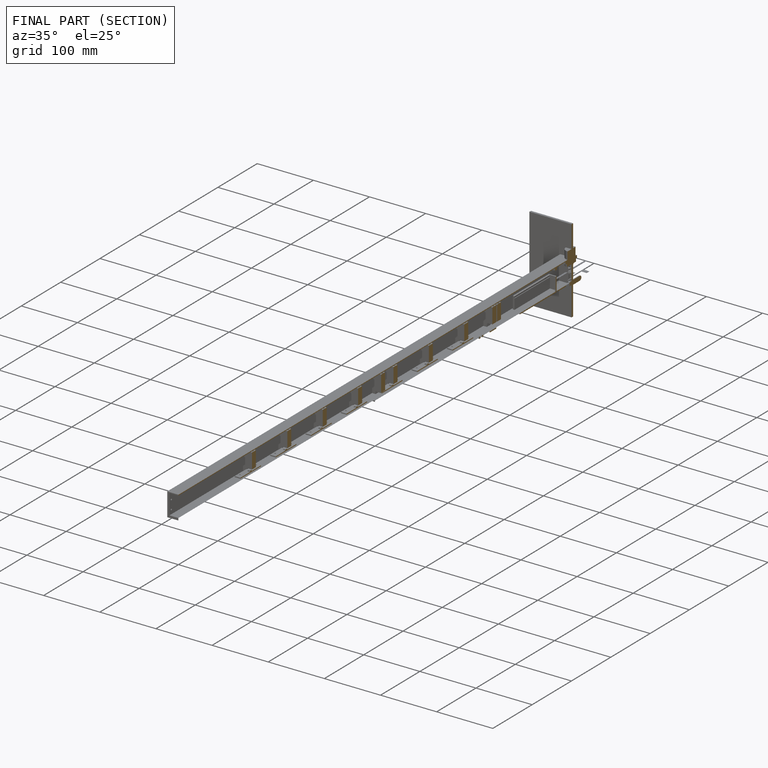
[diagram: finished part — half-section view (interior)]
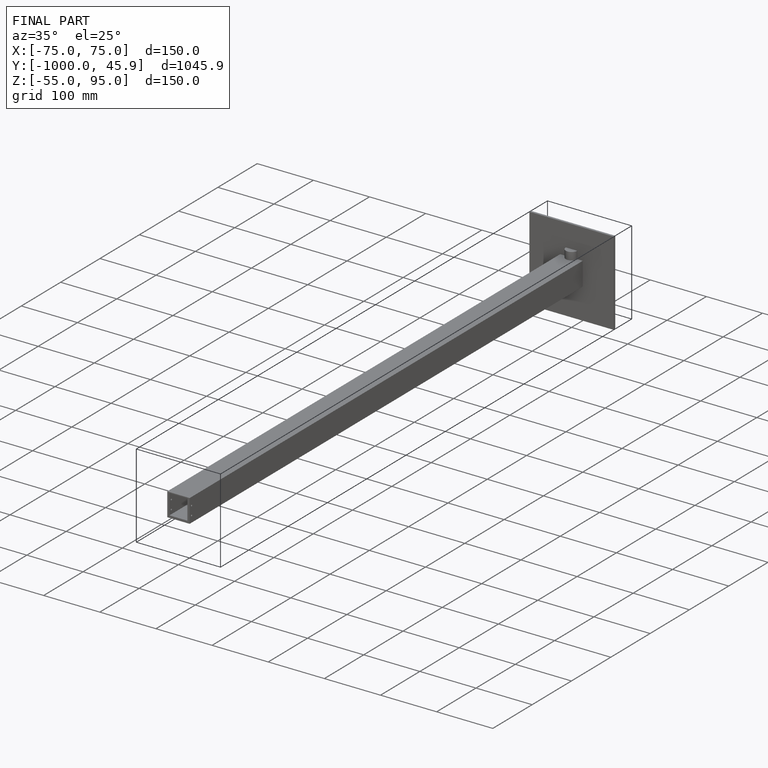
[diagram: finished part — iso view with bounding-box wireframe]
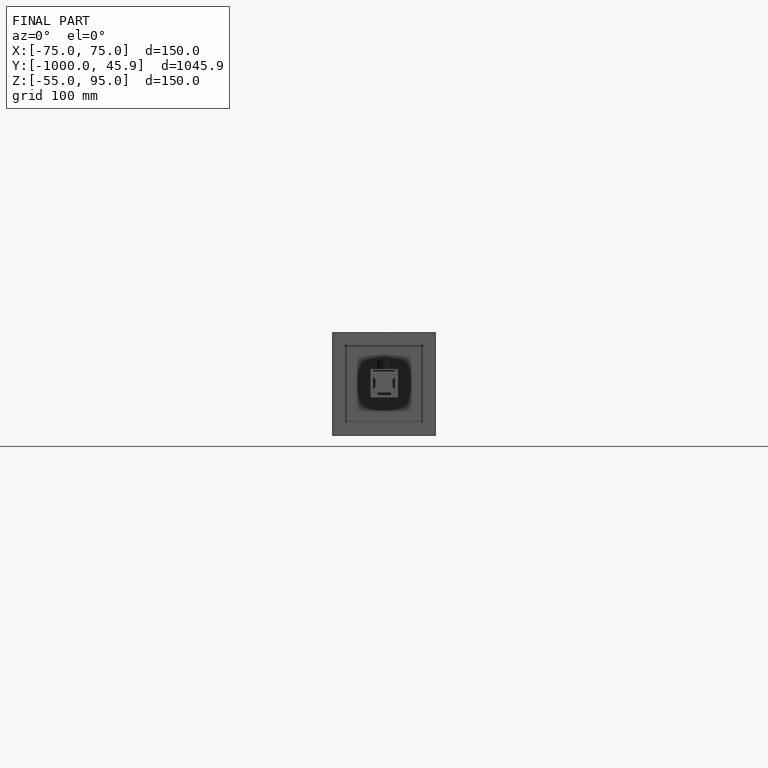
[diagram: finished part — front view with bounding-box wireframe]
